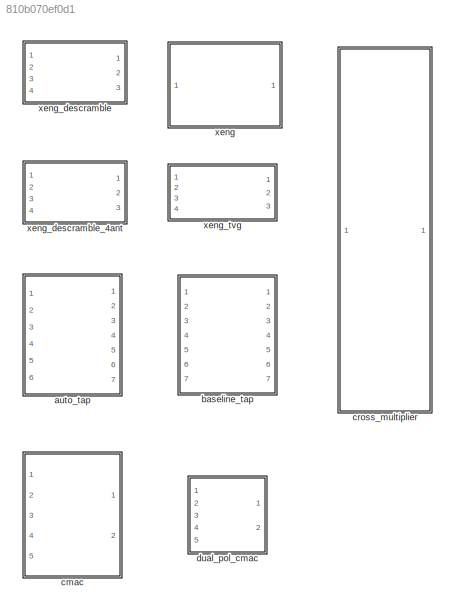
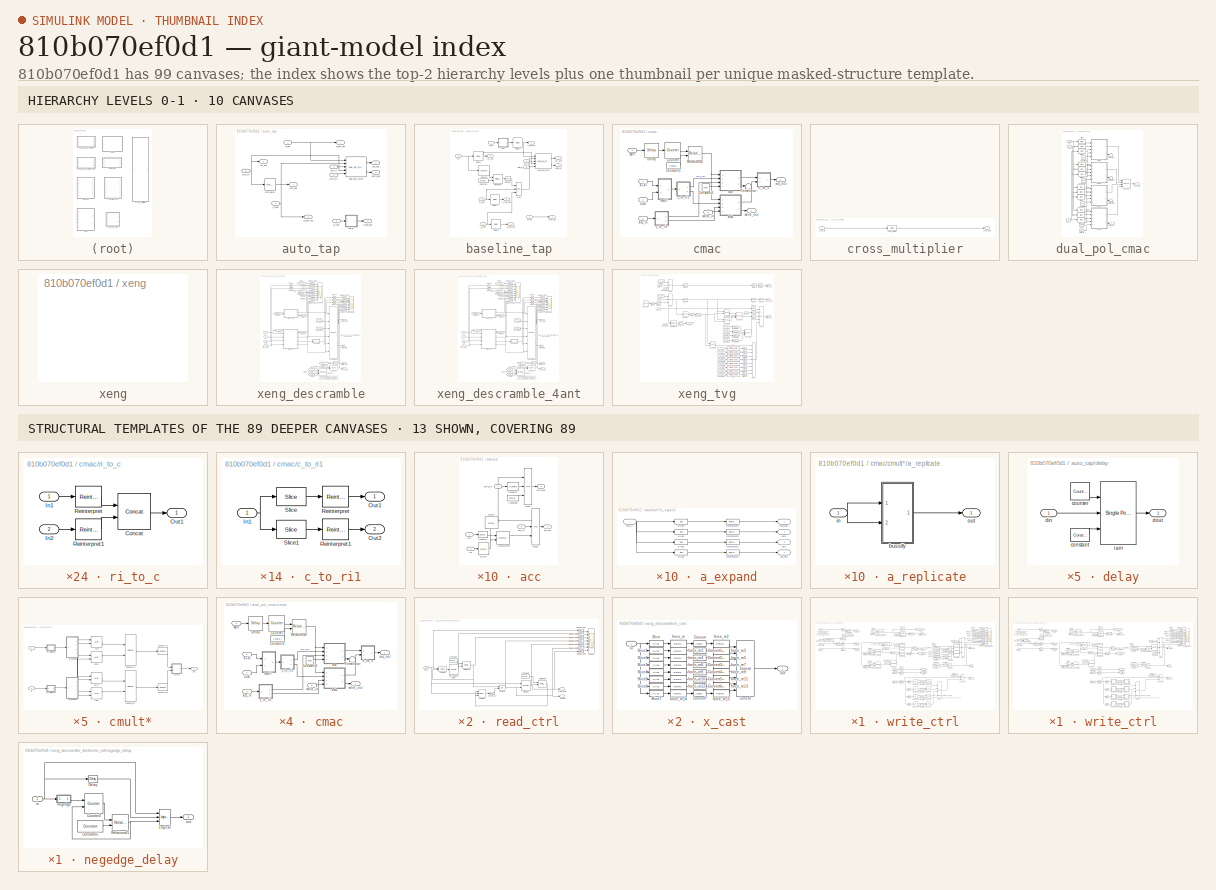
[diagram: thumbnail index - top-2 hierarchy levels (10 canvases) + 13 structural-template representatives of the remaining 89 canvases]
MODEL slx_810b070ef0d1
KIND library
CONFIG AbsTol = auto
CONFIG EnableMultiTasking = off
CONFIG FixedStep = auto
CONFIG MaxStep = auto
CONFIG MinStep = auto
CONFIG RelTol = 1e-3
CONFIG SampleTimeConstraint = Unconstrained
CONFIG Solver = ode45
CONFIG SolverName = ode45
CONFIG StartTime = 0.0
CONFIG StopTime = 10.0
BLOCK [SubSystem] auto_tap
  AttributesFormatString = mult_typ=0, del_typ=1
  Ports = [6, 7]
  RequestExecContextInheritance = off
  UserDataPersistent = on
BLOCK [Inport] auto_tap/a_del
  IconDisplay = Port number
BLOCK [Outport] auto_tap/a_del_out
  IconDisplay = Port number
BLOCK [Outport] auto_tap/a_end_out
  IconDisplay = Port number
  Port = 3
BLOCK [Inport] auto_tap/a_loop
  IconDisplay = Port number
  Port = 3
BLOCK [Inport] auto_tap/a_ndel
  IconDisplay = Port number
  Port = 2
BLOCK [Outport] auto_tap/a_ndel_out
  IconDisplay = Port number
  Port = 2
BLOCK [Inport] auto_tap/acc_in
  IconDisplay = Port number
  Port = 4
BLOCK [Outport] auto_tap/acc_out
  IconDisplay = Port number
  Port = 4
BLOCK [SubSystem] auto_tap/delay
  AncestorBlock = casper_library_delays/delay_bram
  Ports = [1, 1]
  RequestExecContextInheritance = off
  UserDataPersistent = on
BLOCK [Reference] auto_tap/delay/constant  REF=xbsIndex_r4/Constant
  Ports = [0, 1]
  SourceBlock = xbsIndex_r4/Constant
  SourceType = Xilinx Constant Block Block
BLOCK [Reference] auto_tap/delay/counter  REF=xbsIndex_r4/Counter
  Ports = [0, 1]
  SourceBlock = xbsIndex_r4/Counter
  SourceType = Xilinx Counter Block
BLOCK [Inport] auto_tap/delay/din
  IconDisplay = Port number
BLOCK [Outport] auto_tap/delay/dout
  IconDisplay = Port number
BLOCK [Reference] auto_tap/delay/ram  REF=xbsIndex_r4/Single Port RAM
  Ports = [3, 1]
  SourceBlock = xbsIndex_r4/Single Port RAM
  SourceType = Xilinx Single Port Random Access Memory Block
BLOCK [Reference] auto_tap/dual_pol_cmac  REF=$bdroot/dual_pol_cmac
  Ports = [5, 2]
  SourceBlock = $bdroot/dual_pol_cmac
BLOCK [Outport] auto_tap/rst_out
  IconDisplay = Port number
  Port = 6
BLOCK [Reference] auto_tap/sync_delay  REF=casper_library_delays/sync_delay  (lib defined in mdl_259a08a3fac5, mdl_65009615caaa, +5 more)
  Ports = [1, 1]
  SourceBlock = casper_library_delays/sync_delay
  SourceProductName = CASPER DSP Blockset
  SourceType = sync_delay
BLOCK [Inport] auto_tap/sync_in
  IconDisplay = Port number
  Port = 6
BLOCK [Outport] auto_tap/sync_out
  IconDisplay = Port number
  Port = 7
BLOCK [Inport] auto_tap/valid_in
  IconDisplay = Port number
  Port = 5
BLOCK [Outport] auto_tap/valid_out
  IconDisplay = Port number
  Port = 5
BLOCK [SubSystem] baseline_tap
  AttributesFormatString = ant_sep=1, mult=2, bram=1
  Ports = [7, 7]
  RequestExecContextInheritance = off
  UserDataPersistent = on
BLOCK [Reference] baseline_tap/Constant  REF=xbsIndex_r4/Constant
  Ports = [0, 1]
  SourceBlock = xbsIndex_r4/Constant
  SourceType = Xilinx Constant Block Block
BLOCK [Reference] baseline_tap/Convert  REF=xbsIndex_r4/Convert
  Ports = [1, 1]
  SourceBlock = xbsIndex_r4/Convert
  SourceType = Xilinx Type Converter Block
BLOCK [Reference] baseline_tap/Counter  REF=xbsIndex_r4/Counter
  Ports = [1, 1]
  SourceBlock = xbsIndex_r4/Counter
  SourceType = Xilinx Counter Block
BLOCK [Reference] baseline_tap/Delay1  REF=xbsIndex_r4/Delay
  Ports = [1, 1]
  SourceBlock = xbsIndex_r4/Delay
  SourceType = Xilinx Delay Block
BLOCK [Reference] baseline_tap/Delay3  REF=xbsIndex_r4/Delay
  Ports = [1, 1]
  SourceBlock = xbsIndex_r4/Delay
  SourceType = Xilinx Delay Block
BLOCK [Reference] baseline_tap/Delay7  REF=xbsIndex_r4/Delay
  Ports = [1, 1]
  SourceBlock = xbsIndex_r4/Delay
  SourceType = Xilinx Delay Block
BLOCK [Reference] baseline_tap/Delay8  REF=xbsIndex_r4/Delay
  Ports = [1, 1]
  SourceBlock = xbsIndex_r4/Delay
  SourceType = Xilinx Delay Block
BLOCK [Reference] baseline_tap/Mux  REF=xbsIndex_r4/Mux
  Ports = [3, 1]
  SourceBlock = xbsIndex_r4/Mux
  SourceType = Xilinx Bus Multiplexer Block
BLOCK [Reference] baseline_tap/Relational  REF=xbsIndex_r4/Relational
  Ports = [2, 1]
  SourceBlock = xbsIndex_r4/Relational
  SourceType = Xilinx Arithmetic Relational Operator Block
BLOCK [Inport] baseline_tap/a_del
  IconDisplay = Port number
BLOCK [Outport] baseline_tap/a_del_out
  IconDisplay = Port number
BLOCK [Inport] baseline_tap/a_end
  IconDisplay = Port number
  Port = 3
BLOCK [Outport] baseline_tap/a_end_out
  IconDisplay = Port number
  Port = 3
BLOCK [Inport] baseline_tap/a_ndel
  IconDisplay = Port number
  Port = 2
BLOCK [Outport] baseline_tap/a_ndel_out
  IconDisplay = Port number
  Port = 2
BLOCK [Inport] baseline_tap/acc_in
  IconDisplay = Port number
  Port = 4
BLOCK [Outport] baseline_tap/acc_out
  IconDisplay = Port number
  Port = 4
BLOCK [SubSystem] baseline_tap/delay
  AncestorBlock = casper_library_delays/delay_bram
  Ports = [1, 1]
  RequestExecContextInheritance = off
  UserDataPersistent = on
BLOCK [Reference] baseline_tap/delay/constant  REF=xbsIndex_r4/Constant
  Ports = [0, 1]
  SourceBlock = xbsIndex_r4/Constant
  SourceType = Xilinx Constant Block Block
BLOCK [Reference] baseline_tap/delay/counter  REF=xbsIndex_r4/Counter
  Ports = [0, 1]
  SourceBlock = xbsIndex_r4/Counter
  SourceType = Xilinx Counter Block
BLOCK [Inport] baseline_tap/delay/din
  IconDisplay = Port number
BLOCK [Outport] baseline_tap/delay/dout
  IconDisplay = Port number
BLOCK [Reference] baseline_tap/delay/ram  REF=xbsIndex_r4/Single Port RAM
  Ports = [3, 1]
  SourceBlock = xbsIndex_r4/Single Port RAM
  SourceType = Xilinx Single Port Random Access Memory Block
BLOCK [Reference] baseline_tap/dual_pol_cmac  REF=$bdroot/dual_pol_cmac
  Ports = [5, 2]
  SourceBlock = $bdroot/dual_pol_cmac
BLOCK [Inport] baseline_tap/rst
  IconDisplay = Port number
  Port = 6
BLOCK [Outport] baseline_tap/rst_out
  IconDisplay = Port number
  Port = 6
BLOCK [Inport] baseline_tap/sync1
  IconDisplay = Port number
  Port = 7
BLOCK [Outport] baseline_tap/sync_out
  IconDisplay = Port number
  Port = 7
BLOCK [Inport] baseline_tap/valid_in
  IconDisplay = Port number
  Port = 5
BLOCK [Outport] baseline_tap/valid_out
  IconDisplay = Port number
  Port = 5
BLOCK [SubSystem] cmac
  Ports = [5, 2]
  RequestExecContextInheritance = off
  Tag = cmac
BLOCK [Reference] cmac/Constant1  REF=xbsIndex_r4/Constant
  Ports = [0, 1]
  SourceBlock = xbsIndex_r4/Constant
  SourceType = Xilinx Constant Block Block
BLOCK [Reference] cmac/Constant2  REF=xbsIndex_r4/Constant
  Ports = [0, 1]
  SourceBlock = xbsIndex_r4/Constant
  SourceType = Xilinx Constant Block Block
BLOCK [Reference] cmac/Counter  REF=xbsIndex_r4/Counter
  Ports = [1, 1]
  SourceBlock = xbsIndex_r4/Counter
  SourceType = Xilinx Counter Block
BLOCK [Reference] cmac/Delay  REF=xbsIndex_r4/Delay
  Ports = [1, 1]
  SourceBlock = xbsIndex_r4/Delay
  SourceType = Xilinx Delay Block
BLOCK [Reference] cmac/Relational  REF=xbsIndex_r4/Relational
  Ports = [2, 1]
  SourceBlock = xbsIndex_r4/Relational
  SourceType = Xilinx Arithmetic Relational Operator Block
BLOCK [Terminator] cmac/Terminator
BLOCK [Inport] cmac/a+bi
  IconDisplay = Port number
BLOCK [SubSystem] cmac/acc
  Ports = [4, 2]
  RequestExecContextInheritance = off
BLOCK [Reference] cmac/acc/Accumulator  REF=xbsIndex_r4/Accumulator
  Ports = [2, 1]
  SourceBlock = xbsIndex_r4/Accumulator
  SourceType = Xilinx Accumulator Block
BLOCK [Reference] cmac/acc/Constant  REF=xbsIndex_r4/Constant
  Ports = [0, 1]
  SourceBlock = xbsIndex_r4/Constant
  SourceType = Xilinx Constant Block Block
BLOCK [Reference] cmac/acc/Convert1  REF=xbsIndex_r4/Convert
  Ports = [1, 1]
  SourceBlock = xbsIndex_r4/Convert
  SourceType = Xilinx Type Converter Block
BLOCK [Reference] cmac/acc/Convert2  REF=xbsIndex_r4/Convert
  Ports = [1, 1]
  SourceBlock = xbsIndex_r4/Convert
  SourceType = Xilinx Type Converter Block
BLOCK [Reference] cmac/acc/Delay  REF=xbsIndex_r4/Delay
  Ports = [1, 1]
  SourceBlock = xbsIndex_r4/Delay
  SourceType = Xilinx Delay Block
BLOCK [Reference] cmac/acc/Delay1  REF=xbsIndex_r4/Delay
  Ports = [1, 1]
  SourceBlock = xbsIndex_r4/Delay
  SourceType = Xilinx Delay Block
BLOCK [Reference] cmac/acc/Mux2  REF=xbsIndex_r4/Mux
  Ports = [3, 1]
  SourceBlock = xbsIndex_r4/Mux
  SourceType = Xilinx Bus Multiplexer Block
BLOCK [Reference] cmac/acc/Mux3  REF=xbsIndex_r4/Mux
  Ports = [3, 1]
  SourceBlock = xbsIndex_r4/Mux
  SourceType = Xilinx Bus Multiplexer Block
BLOCK [Inport] cmac/acc/acc_in
  IconDisplay = Port number
  Port = 3
BLOCK [Outport] cmac/acc/acc_out
  IconDisplay = Port number
BLOCK [Inport] cmac/acc/din
  IconDisplay = Port number
  Port = 2
BLOCK [Inport] cmac/acc/rst
  IconDisplay = Port number
BLOCK [Inport] cmac/acc/valid_in
  IconDisplay = Port number
  Port = 4
BLOCK [Outport] cmac/acc/valid_out
  IconDisplay = Port number
  Port = 2
BLOCK [SubSystem] cmac/acc1
  Ports = [4, 2]
  RequestExecContextInheritance = off
BLOCK [Reference] cmac/acc1/Accumulator  REF=xbsIndex_r4/Accumulator
  Ports = [2, 1]
  SourceBlock = xbsIndex_r4/Accumulator
  SourceType = Xilinx Accumulator Block
BLOCK [Reference] cmac/acc1/Constant  REF=xbsIndex_r4/Constant
  Ports = [0, 1]
  SourceBlock = xbsIndex_r4/Constant
  SourceType = Xilinx Constant Block Block
BLOCK [Reference] cmac/acc1/Convert1  REF=xbsIndex_r4/Convert
  Ports = [1, 1]
  SourceBlock = xbsIndex_r4/Convert
  SourceType = Xilinx Type Converter Block
BLOCK [Reference] cmac/acc1/Convert2  REF=xbsIndex_r4/Convert
  Ports = [1, 1]
  SourceBlock = xbsIndex_r4/Convert
  SourceType = Xilinx Type Converter Block
BLOCK [Reference] cmac/acc1/Delay  REF=xbsIndex_r4/Delay
  Ports = [1, 1]
  SourceBlock = xbsIndex_r4/Delay
  SourceType = Xilinx Delay Block
BLOCK [Reference] cmac/acc1/Delay1  REF=xbsIndex_r4/Delay
  Ports = [1, 1]
  SourceBlock = xbsIndex_r4/Delay
  SourceType = Xilinx Delay Block
BLOCK [Reference] cmac/acc1/Mux2  REF=xbsIndex_r4/Mux
  Ports = [3, 1]
  SourceBlock = xbsIndex_r4/Mux
  SourceType = Xilinx Bus Multiplexer Block
BLOCK [Reference] cmac/acc1/Mux3  REF=xbsIndex_r4/Mux
  Ports = [3, 1]
  SourceBlock = xbsIndex_r4/Mux
  SourceType = Xilinx Bus Multiplexer Block
BLOCK [Inport] cmac/acc1/acc_in
  IconDisplay = Port number
  Port = 3
BLOCK [Outport] cmac/acc1/acc_out
  IconDisplay = Port number
BLOCK [Inport] cmac/acc1/din
  IconDisplay = Port number
  Port = 2
BLOCK [Inport] cmac/acc1/rst
  IconDisplay = Port number
BLOCK [Inport] cmac/acc1/valid_in
  IconDisplay = Port number
  Port = 4
BLOCK [Outport] cmac/acc1/valid_out
  IconDisplay = Port number
  Port = 2
BLOCK [Inport] cmac/acc_in
  IconDisplay = Port number
  Port = 3
BLOCK [Outport] cmac/acc_out
  IconDisplay = Port number
BLOCK [Inport] cmac/c+di
  IconDisplay = Port number
  Port = 2
BLOCK [SubSystem] cmac/c_to_ri1
  Ports = [1, 2]
  RequestExecContextInheritance = off
BLOCK [Inport] cmac/c_to_ri1/In1
  IconDisplay = Port number
BLOCK [Outport] cmac/c_to_ri1/Out1
  IconDisplay = Port number
BLOCK [Outport] cmac/c_to_ri1/Out2
  IconDisplay = Port number
  Port = 2
BLOCK [Reference] cmac/c_to_ri1/Reinterpret  REF=xbsIndex_r4/Reinterpret
  Ports = [1, 1]
  SourceBlock = xbsIndex_r4/Reinterpret
  SourceType = Xilinx Type Reinterpreter Block
BLOCK [Reference] cmac/c_to_ri1/Reinterpret1  REF=xbsIndex_r4/Reinterpret
  Ports = [1, 1]
  SourceBlock = xbsIndex_r4/Reinterpret
  SourceType = Xilinx Type Reinterpreter Block
BLOCK [Reference] cmac/c_to_ri1/Slice  REF=xbsIndex_r4/Slice
  Ports = [1, 1]
  SourceBlock = xbsIndex_r4/Slice
  SourceType = Xilinx Bit Slice Extractor Block
BLOCK [Reference] cmac/c_to_ri1/Slice1  REF=xbsIndex_r4/Slice
  Ports = [1, 1]
  SourceBlock = xbsIndex_r4/Slice
  SourceType = Xilinx Bit Slice Extractor Block
BLOCK [SubSystem] cmac/c_to_ri2
  Ports = [1, 2]
  RequestExecContextInheritance = off
BLOCK [Inport] cmac/c_to_ri2/In1
  IconDisplay = Port number
BLOCK [Outport] cmac/c_to_ri2/Out1
  IconDisplay = Port number
BLOCK [Outport] cmac/c_to_ri2/Out2
  IconDisplay = Port number
  Port = 2
BLOCK [Reference] cmac/c_to_ri2/Reinterpret  REF=xbsIndex_r4/Reinterpret
  Ports = [1, 1]
  SourceBlock = xbsIndex_r4/Reinterpret
  SourceType = Xilinx Type Reinterpreter Block
BLOCK [Reference] cmac/c_to_ri2/Reinterpret1  REF=xbsIndex_r4/Reinterpret
  Ports = [1, 1]
  SourceBlock = xbsIndex_r4/Reinterpret
  SourceType = Xilinx Type Reinterpreter Block
BLOCK [Reference] cmac/c_to_ri2/Slice  REF=xbsIndex_r4/Slice
  Ports = [1, 1]
  SourceBlock = xbsIndex_r4/Slice
  SourceType = Xilinx Bit Slice Extractor Block
BLOCK [Reference] cmac/c_to_ri2/Slice1  REF=xbsIndex_r4/Slice
  Ports = [1, 1]
  SourceBlock = xbsIndex_r4/Slice
  SourceType = Xilinx Bit Slice Extractor Block
BLOCK [SubSystem] cmac/cmult*
  AncestorBlock = casper_library_multipliers/cmult
  AttributesFormatString = 4_3 * 4_3 ==> 16_6\nTruncate, Wrap\nLatency=0
  Ports = [2, 1]
  RequestExecContextInheritance = off
  UserDataPersistent = on
BLOCK [Inport] cmac/cmult*/a
  IconDisplay = Port number
BLOCK [SubSystem] cmac/cmult*/a_expand
  AncestorBlock = casper_library_flow_control/bus_expand
  AttributesFormatString = 4 outputs
  Ports = [1, 4]
  RequestExecContextInheritance = off
  UserDataPersistent = on
BLOCK [Inport] cmac/cmult*/a_expand/bus_in
  IconDisplay = Port number
BLOCK [Outport] cmac/cmult*/a_expand/lsb_out1
  IconDisplay = Port number
  Port = 4
BLOCK [Outport] cmac/cmult*/a_expand/msb_out4
  IconDisplay = Port number
BLOCK [Outport] cmac/cmult*/a_expand/out2
  IconDisplay = Port number
  Port = 3
BLOCK [Outport] cmac/cmult*/a_expand/out3
  IconDisplay = Port number
  Port = 2
BLOCK [Reference] cmac/cmult*/a_expand/reinterpret1  REF=xbsIndex_r4/Reinterpret
  Ports = [1, 1]
  SourceBlock = xbsIndex_r4/Reinterpret
  SourceType = Xilinx Type Reinterpreter Block
BLOCK [Reference] cmac/cmult*/a_expand/reinterpret2  REF=xbsIndex_r4/Reinterpret
  Ports = [1, 1]
  SourceBlock = xbsIndex_r4/Reinterpret
  SourceType = Xilinx Type Reinterpreter Block
BLOCK [Reference] cmac/cmult*/a_expand/reinterpret3  REF=xbsIndex_r4/Reinterpret
  Ports = [1, 1]
  SourceBlock = xbsIndex_r4/Reinterpret
  SourceType = Xilinx Type Reinterpreter Block
BLOCK [Reference] cmac/cmult*/a_expand/reinterpret4  REF=xbsIndex_r4/Reinterpret
  Ports = [1, 1]
  SourceBlock = xbsIndex_r4/Reinterpret
  SourceType = Xilinx Type Reinterpreter Block
BLOCK [Reference] cmac/cmult*/a_expand/slice1  REF=xbsIndex_r4/Slice
  Ports = [1, 1]
  SourceBlock = xbsIndex_r4/Slice
  SourceType = Xilinx Bit Slice Extractor Block
BLOCK [Reference] cmac/cmult*/a_expand/slice2  REF=xbsIndex_r4/Slice
  Ports = [1, 1]
  SourceBlock = xbsIndex_r4/Slice
  SourceType = Xilinx Bit Slice Extractor Block
BLOCK [Reference] cmac/cmult*/a_expand/slice3  REF=xbsIndex_r4/Slice
  Ports = [1, 1]
  SourceBlock = xbsIndex_r4/Slice
  SourceType = Xilinx Bit Slice Extractor Block
BLOCK [Reference] cmac/cmult*/a_expand/slice4  REF=xbsIndex_r4/Slice
  Ports = [1, 1]
  SourceBlock = xbsIndex_r4/Slice
  SourceType = Xilinx Bit Slice Extractor Block
BLOCK [SubSystem] cmac/cmult*/a_replicate
  AncestorBlock = casper_library_bus/bus_replicate
  Ports = [1, 1]
  RequestExecContextInheritance = off
  UserDataPersistent = on
BLOCK [SubSystem] cmac/cmult*/a_replicate/bussify
  AncestorBlock = casper_library_flow_control/bus_create
  Ports = [2, 1]
  RequestExecContextInheritance = off
  UserDataPersistent = on
BLOCK [Outport] cmac/cmult*/a_replicate/bussify/bus_out
  IconDisplay = Port number
BLOCK [Reference] cmac/cmult*/a_replicate/bussify/concatenate  REF=xbsIndex_r4/Concat
  Ports = [2, 1]
  SourceBlock = xbsIndex_r4/Concat
  SourceType = Xilinx Bus Concatenator Block
BLOCK [Inport] cmac/cmult*/a_replicate/bussify/in1
  IconDisplay = Port number
BLOCK [Inport] cmac/cmult*/a_replicate/bussify/in2
  IconDisplay = Port number
  Port = 2
BLOCK [Reference] cmac/cmult*/a_replicate/bussify/reinterpret1  REF=xbsIndex_r4/Reinterpret
  Ports = [1, 1]
  SourceBlock = xbsIndex_r4/Reinterpret
  SourceType = Xilinx Type Reinterpreter Block
BLOCK [Reference] cmac/cmult*/a_replicate/bussify/reinterpret2  REF=xbsIndex_r4/Reinterpret
  Ports = [1, 1]
  SourceBlock = xbsIndex_r4/Reinterpret
  SourceType = Xilinx Type Reinterpreter Block
BLOCK [Inport] cmac/cmult*/a_replicate/in
  IconDisplay = Port number
BLOCK [Outport] cmac/cmult*/a_replicate/out
  IconDisplay = Port number
BLOCK [Outport] cmac/cmult*/ab
  IconDisplay = Port number
BLOCK [Reference] cmac/cmult*/addsub_im  REF=xbsIndex_r4/AddSub
  Ports = [2, 1]
  SourceBlock = xbsIndex_r4/AddSub
  SourceType = Xilinx Adder/Subtracter Block
BLOCK [Reference] cmac/cmult*/addsub_re  REF=xbsIndex_r4/AddSub
  Ports = [2, 1]
  SourceBlock = xbsIndex_r4/AddSub
  SourceType = Xilinx Adder/Subtracter Block
BLOCK [Inport] cmac/cmult*/b
  IconDisplay = Port number
  Port = 2
BLOCK [SubSystem] cmac/cmult*/b_expand
  AncestorBlock = casper_library_flow_control/bus_expand
  AttributesFormatString = 4 outputs
  Ports = [1, 4]
  RequestExecContextInheritance = off
  UserDataPersistent = on
BLOCK [Inport] cmac/cmult*/b_expand/bus_in
  IconDisplay = Port number
BLOCK [Outport] cmac/cmult*/b_expand/lsb_out1
  IconDisplay = Port number
  Port = 4
BLOCK [Outport] cmac/cmult*/b_expand/msb_out4
  IconDisplay = Port number
BLOCK [Outport] cmac/cmult*/b_expand/out2
  IconDisplay = Port number
  Port = 3
BLOCK [Outport] cmac/cmult*/b_expand/out3
  IconDisplay = Port number
  Port = 2
BLOCK [Reference] cmac/cmult*/b_expand/reinterpret1  REF=xbsIndex_r4/Reinterpret
  Ports = [1, 1]
  SourceBlock = xbsIndex_r4/Reinterpret
  SourceType = Xilinx Type Reinterpreter Block
BLOCK [Reference] cmac/cmult*/b_expand/reinterpret2  REF=xbsIndex_r4/Reinterpret
  Ports = [1, 1]
  SourceBlock = xbsIndex_r4/Reinterpret
  SourceType = Xilinx Type Reinterpreter Block
BLOCK [Reference] cmac/cmult*/b_expand/reinterpret3  REF=xbsIndex_r4/Reinterpret
  Ports = [1, 1]
  SourceBlock = xbsIndex_r4/Reinterpret
  SourceType = Xilinx Type Reinterpreter Block
BLOCK [Reference] cmac/cmult*/b_expand/reinterpret4  REF=xbsIndex_r4/Reinterpret
  Ports = [1, 1]
  SourceBlock = xbsIndex_r4/Reinterpret
  SourceType = Xilinx Type Reinterpreter Block
BLOCK [Reference] cmac/cmult*/b_expand/slice1  REF=xbsIndex_r4/Slice
  Ports = [1, 1]
  SourceBlock = xbsIndex_r4/Slice
  SourceType = Xilinx Bit Slice Extractor Block
BLOCK [Reference] cmac/cmult*/b_expand/slice2  REF=xbsIndex_r4/Slice
  Ports = [1, 1]
  SourceBlock = xbsIndex_r4/Slice
  SourceType = Xilinx Bit Slice Extractor Block
BLOCK [Reference] cmac/cmult*/b_expand/slice3  REF=xbsIndex_r4/Slice
  Ports = [1, 1]
  SourceBlock = xbsIndex_r4/Slice
  SourceType = Xilinx Bit Slice Extractor Block
BLOCK [Reference] cmac/cmult*/b_expand/slice4  REF=xbsIndex_r4/Slice
  Ports = [1, 1]
  SourceBlock = xbsIndex_r4/Slice
  SourceType = Xilinx Bit Slice Extractor Block
BLOCK [SubSystem] cmac/cmult*/b_replicate
  AncestorBlock = casper_library_bus/bus_replicate
  Ports = [1, 1]
  RequestExecContextInheritance = off
  UserDataPersistent = on
BLOCK [SubSystem] cmac/cmult*/b_replicate/bussify
  AncestorBlock = casper_library_flow_control/bus_create
  Ports = [2, 1]
  RequestExecContextInheritance = off
  UserDataPersistent = on
BLOCK [Outport] cmac/cmult*/b_replicate/bussify/bus_out
  IconDisplay = Port number
BLOCK [Reference] cmac/cmult*/b_replicate/bussify/concatenate  REF=xbsIndex_r4/Concat
  Ports = [2, 1]
  SourceBlock = xbsIndex_r4/Concat
  SourceType = Xilinx Bus Concatenator Block
BLOCK [Inport] cmac/cmult*/b_replicate/bussify/in1
  IconDisplay = Port number
BLOCK [Inport] cmac/cmult*/b_replicate/bussify/in2
  IconDisplay = Port number
  Port = 2
BLOCK [Reference] cmac/cmult*/b_replicate/bussify/reinterpret1  REF=xbsIndex_r4/Reinterpret
  Ports = [1, 1]
  SourceBlock = xbsIndex_r4/Reinterpret
  SourceType = Xilinx Type Reinterpreter Block
BLOCK [Reference] cmac/cmult*/b_replicate/bussify/reinterpret2  REF=xbsIndex_r4/Reinterpret
  Ports = [1, 1]
  SourceBlock = xbsIndex_r4/Reinterpret
  SourceType = Xilinx Type Reinterpreter Block
BLOCK [Inport] cmac/cmult*/b_replicate/in
  IconDisplay = Port number
BLOCK [Outport] cmac/cmult*/b_replicate/out
  IconDisplay = Port number
BLOCK [Reference] cmac/cmult*/convert_im  REF=xbsIndex_r4/Convert
  Ports = [1, 1]
  SourceBlock = xbsIndex_r4/Convert
  SourceType = Xilinx Type Converter Block
BLOCK [Reference] cmac/cmult*/convert_re  REF=xbsIndex_r4/Convert
  Ports = [1, 1]
  SourceBlock = xbsIndex_r4/Convert
  SourceType = Xilinx Type Converter Block
BLOCK [Reference] cmac/cmult*/imim  REF=xbsIndex_r4/Mult
  Ports = [2, 1]
  SourceBlock = xbsIndex_r4/Mult
  SourceType = Xilinx Multiplier Block
BLOCK [Reference] cmac/cmult*/imre  REF=xbsIndex_r4/Mult
  Ports = [2, 1]
  SourceBlock = xbsIndex_r4/Mult
  SourceType = Xilinx Multiplier Block
BLOCK [Reference] cmac/cmult*/reim  REF=xbsIndex_r4/Mult
  Ports = [2, 1]
  SourceBlock = xbsIndex_r4/Mult
  SourceType = Xilinx Multiplier Block
BLOCK [Reference] cmac/cmult*/rere  REF=xbsIndex_r4/Mult
  Ports = [2, 1]
  SourceBlock = xbsIndex_r4/Mult
  SourceType = Xilinx Multiplier Block
BLOCK [SubSystem] cmac/cmult*/ri_to_c
  AncestorBlock = casper_library_misc/ri_to_c
  Ports = [2, 1]
  RequestExecContextInheritance = off
  UserDataPersistent = on
BLOCK [Outport] cmac/cmult*/ri_to_c/c
  IconDisplay = Port number
BLOCK [Reference] cmac/cmult*/ri_to_c/concat  REF=xbsIndex_r4/Concat
  Ports = [2, 1]
  SourceBlock = xbsIndex_r4/Concat
  SourceType = Xilinx Bus Concatenator Block
BLOCK [Reference] cmac/cmult*/ri_to_c/force_im  REF=xbsIndex_r4/Reinterpret
  Ports = [1, 1]
  SourceBlock = xbsIndex_r4/Reinterpret
  SourceType = Xilinx Type Reinterpreter Block
BLOCK [Reference] cmac/cmult*/ri_to_c/force_re  REF=xbsIndex_r4/Reinterpret
  Ports = [1, 1]
  SourceBlock = xbsIndex_r4/Reinterpret
  SourceType = Xilinx Type Reinterpreter Block
BLOCK [Inport] cmac/cmult*/ri_to_c/im
  IconDisplay = Port number
  Port = 2
BLOCK [Inport] cmac/cmult*/ri_to_c/re
  IconDisplay = Port number
BLOCK [SubSystem] cmac/ri_to_c
  Ports = [2, 1]
  RequestExecContextInheritance = off
BLOCK [Reference] cmac/ri_to_c/Concat  REF=xbsIndex_r4/Concat
  Ports = [2, 1]
  SourceBlock = xbsIndex_r4/Concat
  SourceType = Xilinx Bus Concatenator Block
BLOCK [Inport] cmac/ri_to_c/In1
  IconDisplay = Port number
BLOCK [Inport] cmac/ri_to_c/In2
  IconDisplay = Port number
  Port = 2
BLOCK [Outport] cmac/ri_to_c/Out1
  IconDisplay = Port number
BLOCK [Reference] cmac/ri_to_c/Reinterpret  REF=xbsIndex_r4/Reinterpret
  Ports = [1, 1]
  SourceBlock = xbsIndex_r4/Reinterpret
  SourceType = Xilinx Type Reinterpreter Block
BLOCK [Reference] cmac/ri_to_c/Reinterpret1  REF=xbsIndex_r4/Reinterpret
  Ports = [1, 1]
  SourceBlock = xbsIndex_r4/Reinterpret
  SourceType = Xilinx Type Reinterpreter Block
BLOCK [Inport] cmac/sync
  IconDisplay = Port number
  Port = 4
BLOCK [Inport] cmac/valid_in
  IconDisplay = Port number
  Port = 5
BLOCK [Outport] cmac/valid_out
  IconDisplay = Port number
  Port = 2
BLOCK [SubSystem] cross_multiplier
  Ports = [1, 1]
  RequestExecContextInheritance = off
  UserDataPersistent = on
BLOCK [Reference] cross_multiplier/sync_delay  REF=xbsIndex_r4/Delay
  Ports = [1, 1]
  SourceBlock = xbsIndex_r4/Delay
  SourceType = Xilinx Delay Block
BLOCK [Inport] cross_multiplier/sync_in
  IconDisplay = Port number
BLOCK [Outport] cross_multiplier/sync_out
  IconDisplay = Port number
BLOCK [SubSystem] dual_pol_cmac
  Ports = [5, 2]
  RequestExecContextInheritance = off
BLOCK [Reference] dual_pol_cmac/Concat  REF=xbsIndex_r4/Concat
  Ports = [4, 1]
  SourceBlock = xbsIndex_r4/Concat
  SourceType = Xilinx Bus Concatenator Block
BLOCK [Reference] dual_pol_cmac/Constant1  REF=xbsIndex_r4/Constant
  Ports = [0, 1]
  SourceBlock = xbsIndex_r4/Constant
  SourceType = Xilinx Constant Block Block
BLOCK [Reference] dual_pol_cmac/Constant2  REF=xbsIndex_r4/Constant
  Ports = [0, 1]
  SourceBlock = xbsIndex_r4/Constant
  SourceType = Xilinx Constant Block Block
BLOCK [Reference] dual_pol_cmac/Constant4  REF=xbsIndex_r4/Constant
  Ports = [0, 1]
  SourceBlock = xbsIndex_r4/Constant
  SourceType = Xilinx Constant Block Block
BLOCK [Reference] dual_pol_cmac/Slice  REF=xbsIndex_r4/Slice
  Ports = [1, 1]
  SourceBlock = xbsIndex_r4/Slice
  SourceType = Xilinx Bit Slice Extractor Block
BLOCK [Reference] dual_pol_cmac/Slice1  REF=xbsIndex_r4/Slice
  Ports = [1, 1]
  SourceBlock = xbsIndex_r4/Slice
  SourceType = Xilinx Bit Slice Extractor Block
BLOCK [Reference] dual_pol_cmac/Slice10  REF=xbsIndex_r4/Slice
  Ports = [1, 1]
  SourceBlock = xbsIndex_r4/Slice
  SourceType = Xilinx Bit Slice Extractor Block
BLOCK [Reference] dual_pol_cmac/Slice11  REF=xbsIndex_r4/Slice
  Ports = [1, 1]
  SourceBlock = xbsIndex_r4/Slice
  SourceType = Xilinx Bit Slice Extractor Block
BLOCK [Reference] dual_pol_cmac/Slice2  REF=xbsIndex_r4/Slice
  Ports = [1, 1]
  SourceBlock = xbsIndex_r4/Slice
  SourceType = Xilinx Bit Slice Extractor Block
BLOCK [Reference] dual_pol_cmac/Slice3  REF=xbsIndex_r4/Slice
  Ports = [1, 1]
  SourceBlock = xbsIndex_r4/Slice
  SourceType = Xilinx Bit Slice Extractor Block
BLOCK [Reference] dual_pol_cmac/Slice4  REF=xbsIndex_r4/Slice
  Ports = [1, 1]
  SourceBlock = xbsIndex_r4/Slice
  SourceType = Xilinx Bit Slice Extractor Block
BLOCK [Reference] dual_pol_cmac/Slice5  REF=xbsIndex_r4/Slice
  Ports = [1, 1]
  SourceBlock = xbsIndex_r4/Slice
  SourceType = Xilinx Bit Slice Extractor Block
BLOCK [Reference] dual_pol_cmac/Slice6  REF=xbsIndex_r4/Slice
  Ports = [1, 1]
  SourceBlock = xbsIndex_r4/Slice
  SourceType = Xilinx Bit Slice Extractor Block
BLOCK [Reference] dual_pol_cmac/Slice7  REF=xbsIndex_r4/Slice
  Ports = [1, 1]
  SourceBlock = xbsIndex_r4/Slice
  SourceType = Xilinx Bit Slice Extractor Block
BLOCK [Reference] dual_pol_cmac/Slice8  REF=xbsIndex_r4/Slice
  Ports = [1, 1]
  SourceBlock = xbsIndex_r4/Slice
  SourceType = Xilinx Bit Slice Extractor Block
BLOCK [Reference] dual_pol_cmac/Slice9  REF=xbsIndex_r4/Slice
  Ports = [1, 1]
  SourceBlock = xbsIndex_r4/Slice
  SourceType = Xilinx Bit Slice Extractor Block
BLOCK [Terminator] dual_pol_cmac/Terminator
BLOCK [Terminator] dual_pol_cmac/Terminator1
BLOCK [Terminator] dual_pol_cmac/Terminator2
BLOCK [Inport] dual_pol_cmac/a1
  IconDisplay = Port number
BLOCK [Inport] dual_pol_cmac/a2
  IconDisplay = Port number
  Port = 2
BLOCK [Inport] dual_pol_cmac/acc_in
  IconDisplay = Port number
  Port = 3
BLOCK [Outport] dual_pol_cmac/acc_out
  IconDisplay = Port number
BLOCK [SubSystem] dual_pol_cmac/cmac
  AncestorBlock = casper_library_correlator/cmac
  Ports = [5, 2]
  RequestExecContextInheritance = off
  Tag = cmac
BLOCK [Reference] dual_pol_cmac/cmac/Constant1  REF=xbsIndex_r4/Constant
  Ports = [0, 1]
  SourceBlock = xbsIndex_r4/Constant
  SourceType = Xilinx Constant Block Block
BLOCK [Reference] dual_pol_cmac/cmac/Constant2  REF=xbsIndex_r4/Constant
  Ports = [0, 1]
  SourceBlock = xbsIndex_r4/Constant
  SourceType = Xilinx Constant Block Block
BLOCK [Reference] dual_pol_cmac/cmac/Counter  REF=xbsIndex_r4/Counter
  Ports = [1, 1]
  SourceBlock = xbsIndex_r4/Counter
  SourceType = Xilinx Counter Block
BLOCK [Reference] dual_pol_cmac/cmac/Delay  REF=xbsIndex_r4/Delay
  Ports = [1, 1]
  SourceBlock = xbsIndex_r4/Delay
  SourceType = Xilinx Delay Block
BLOCK [Reference] dual_pol_cmac/cmac/Relational  REF=xbsIndex_r4/Relational
  Ports = [2, 1]
  SourceBlock = xbsIndex_r4/Relational
  SourceType = Xilinx Arithmetic Relational Operator Block
BLOCK [Terminator] dual_pol_cmac/cmac/Terminator
BLOCK [Inport] dual_pol_cmac/cmac/a+bi
  IconDisplay = Port number
BLOCK [SubSystem] dual_pol_cmac/cmac/acc
  Ports = [4, 2]
  RequestExecContextInheritance = off
BLOCK [Reference] dual_pol_cmac/cmac/acc/Accumulator  REF=xbsIndex_r4/Accumulator
  Ports = [2, 1]
  SourceBlock = xbsIndex_r4/Accumulator
  SourceType = Xilinx Accumulator Block
BLOCK [Reference] dual_pol_cmac/cmac/acc/Constant  REF=xbsIndex_r4/Constant
  Ports = [0, 1]
  SourceBlock = xbsIndex_r4/Constant
  SourceType = Xilinx Constant Block Block
BLOCK [Reference] dual_pol_cmac/cmac/acc/Convert1  REF=xbsIndex_r4/Convert
  Ports = [1, 1]
  SourceBlock = xbsIndex_r4/Convert
  SourceType = Xilinx Type Converter Block
BLOCK [Reference] dual_pol_cmac/cmac/acc/Convert2  REF=xbsIndex_r4/Convert
  Ports = [1, 1]
  SourceBlock = xbsIndex_r4/Convert
  SourceType = Xilinx Type Converter Block
BLOCK [Reference] dual_pol_cmac/cmac/acc/Delay  REF=xbsIndex_r4/Delay
  Ports = [1, 1]
  SourceBlock = xbsIndex_r4/Delay
  SourceType = Xilinx Delay Block
BLOCK [Reference] dual_pol_cmac/cmac/acc/Delay1  REF=xbsIndex_r4/Delay
  Ports = [1, 1]
  SourceBlock = xbsIndex_r4/Delay
  SourceType = Xilinx Delay Block
BLOCK [Reference] dual_pol_cmac/cmac/acc/Mux2  REF=xbsIndex_r4/Mux
  Ports = [3, 1]
  SourceBlock = xbsIndex_r4/Mux
  SourceType = Xilinx Bus Multiplexer Block
BLOCK [Reference] dual_pol_cmac/cmac/acc/Mux3  REF=xbsIndex_r4/Mux
  Ports = [3, 1]
  SourceBlock = xbsIndex_r4/Mux
  SourceType = Xilinx Bus Multiplexer Block
BLOCK [Inport] dual_pol_cmac/cmac/acc/acc_in
  IconDisplay = Port number
  Port = 3
BLOCK [Outport] dual_pol_cmac/cmac/acc/acc_out
  IconDisplay = Port number
BLOCK [Inport] dual_pol_cmac/cmac/acc/din
  IconDisplay = Port number
  Port = 2
BLOCK [Inport] dual_pol_cmac/cmac/acc/rst
  IconDisplay = Port number
BLOCK [Inport] dual_pol_cmac/cmac/acc/valid_in
  IconDisplay = Port number
  Port = 4
BLOCK [Outport] dual_pol_cmac/cmac/acc/valid_out
  IconDisplay = Port number
  Port = 2
BLOCK [SubSystem] dual_pol_cmac/cmac/acc1
  Ports = [4, 2]
  RequestExecContextInheritance = off
BLOCK [Reference] dual_pol_cmac/cmac/acc1/Accumulator  REF=xbsIndex_r4/Accumulator
  Ports = [2, 1]
  SourceBlock = xbsIndex_r4/Accumulator
  SourceType = Xilinx Accumulator Block
BLOCK [Reference] dual_pol_cmac/cmac/acc1/Constant  REF=xbsIndex_r4/Constant
  Ports = [0, 1]
  SourceBlock = xbsIndex_r4/Constant
  SourceType = Xilinx Constant Block Block
BLOCK [Reference] dual_pol_cmac/cmac/acc1/Convert1  REF=xbsIndex_r4/Convert
  Ports = [1, 1]
  SourceBlock = xbsIndex_r4/Convert
  SourceType = Xilinx Type Converter Block
BLOCK [Reference] dual_pol_cmac/cmac/acc1/Convert2  REF=xbsIndex_r4/Convert
  Ports = [1, 1]
  SourceBlock = xbsIndex_r4/Convert
  SourceType = Xilinx Type Converter Block
BLOCK [Reference] dual_pol_cmac/cmac/acc1/Delay  REF=xbsIndex_r4/Delay
  Ports = [1, 1]
  SourceBlock = xbsIndex_r4/Delay
  SourceType = Xilinx Delay Block
BLOCK [Reference] dual_pol_cmac/cmac/acc1/Delay1  REF=xbsIndex_r4/Delay
  Ports = [1, 1]
  SourceBlock = xbsIndex_r4/Delay
  SourceType = Xilinx Delay Block
BLOCK [Reference] dual_pol_cmac/cmac/acc1/Mux2  REF=xbsIndex_r4/Mux
  Ports = [3, 1]
  SourceBlock = xbsIndex_r4/Mux
  SourceType = Xilinx Bus Multiplexer Block
BLOCK [Reference] dual_pol_cmac/cmac/acc1/Mux3  REF=xbsIndex_r4/Mux
  Ports = [3, 1]
  SourceBlock = xbsIndex_r4/Mux
  SourceType = Xilinx Bus Multiplexer Block
BLOCK [Inport] dual_pol_cmac/cmac/acc1/acc_in
  IconDisplay = Port number
  Port = 3
BLOCK [Outport] dual_pol_cmac/cmac/acc1/acc_out
  IconDisplay = Port number
BLOCK [Inport] dual_pol_cmac/cmac/acc1/din
  IconDisplay = Port number
  Port = 2
BLOCK [Inport] dual_pol_cmac/cmac/acc1/rst
  IconDisplay = Port number
BLOCK [Inport] dual_pol_cmac/cmac/acc1/valid_in
  IconDisplay = Port number
  Port = 4
BLOCK [Outport] dual_pol_cmac/cmac/acc1/valid_out
  IconDisplay = Port number
  Port = 2
BLOCK [Inport] dual_pol_cmac/cmac/acc_in
  IconDisplay = Port number
  Port = 3
BLOCK [Outport] dual_pol_cmac/cmac/acc_out
  IconDisplay = Port number
BLOCK [Inport] dual_pol_cmac/cmac/c+di
  IconDisplay = Port number
  Port = 2
BLOCK [SubSystem] dual_pol_cmac/cmac/c_to_ri1
  Ports = [1, 2]
  RequestExecContextInheritance = off
BLOCK [Inport] dual_pol_cmac/cmac/c_to_ri1/In1
  IconDisplay = Port number
BLOCK [Outport] dual_pol_cmac/cmac/c_to_ri1/Out1
  IconDisplay = Port number
BLOCK [Outport] dual_pol_cmac/cmac/c_to_ri1/Out2
  IconDisplay = Port number
  Port = 2
BLOCK [Reference] dual_pol_cmac/cmac/c_to_ri1/Reinterpret  REF=xbsIndex_r4/Reinterpret
  Ports = [1, 1]
  SourceBlock = xbsIndex_r4/Reinterpret
  SourceType = Xilinx Type Reinterpreter Block
BLOCK [Reference] dual_pol_cmac/cmac/c_to_ri1/Reinterpret1  REF=xbsIndex_r4/Reinterpret
  Ports = [1, 1]
  SourceBlock = xbsIndex_r4/Reinterpret
  SourceType = Xilinx Type Reinterpreter Block
BLOCK [Reference] dual_pol_cmac/cmac/c_to_ri1/Slice  REF=xbsIndex_r4/Slice
  Ports = [1, 1]
  SourceBlock = xbsIndex_r4/Slice
  SourceType = Xilinx Bit Slice Extractor Block
BLOCK [Reference] dual_pol_cmac/cmac/c_to_ri1/Slice1  REF=xbsIndex_r4/Slice
  Ports = [1, 1]
  SourceBlock = xbsIndex_r4/Slice
  SourceType = Xilinx Bit Slice Extractor Block
BLOCK [SubSystem] dual_pol_cmac/cmac/c_to_ri2
  Ports = [1, 2]
  RequestExecContextInheritance = off
BLOCK [Inport] dual_pol_cmac/cmac/c_to_ri2/In1
  IconDisplay = Port number
BLOCK [Outport] dual_pol_cmac/cmac/c_to_ri2/Out1
  IconDisplay = Port number
BLOCK [Outport] dual_pol_cmac/cmac/c_to_ri2/Out2
  IconDisplay = Port number
  Port = 2
BLOCK [Reference] dual_pol_cmac/cmac/c_to_ri2/Reinterpret  REF=xbsIndex_r4/Reinterpret
  Ports = [1, 1]
  SourceBlock = xbsIndex_r4/Reinterpret
  SourceType = Xilinx Type Reinterpreter Block
BLOCK [Reference] dual_pol_cmac/cmac/c_to_ri2/Reinterpret1  REF=xbsIndex_r4/Reinterpret
  Ports = [1, 1]
  SourceBlock = xbsIndex_r4/Reinterpret
  SourceType = Xilinx Type Reinterpreter Block
BLOCK [Reference] dual_pol_cmac/cmac/c_to_ri2/Slice  REF=xbsIndex_r4/Slice
  Ports = [1, 1]
  SourceBlock = xbsIndex_r4/Slice
  SourceType = Xilinx Bit Slice Extractor Block
BLOCK [Reference] dual_pol_cmac/cmac/c_to_ri2/Slice1  REF=xbsIndex_r4/Slice
  Ports = [1, 1]
  SourceBlock = xbsIndex_r4/Slice
  SourceType = Xilinx Bit Slice Extractor Block
BLOCK [SubSystem] dual_pol_cmac/cmac/cmult*
  AncestorBlock = casper_library_multipliers/cmult
  AttributesFormatString = 4_3 * 4_3 ==> 16_6\nTruncate, Wrap\nLatency=0
  Ports = [2, 1]
  RequestExecContextInheritance = off
  UserDataPersistent = on
BLOCK [Inport] dual_pol_cmac/cmac/cmult*/a
  IconDisplay = Port number
BLOCK [SubSystem] dual_pol_cmac/cmac/cmult*/a_expand
  AncestorBlock = casper_library_flow_control/bus_expand
  AttributesFormatString = 4 outputs
  Ports = [1, 4]
  RequestExecContextInheritance = off
  UserDataPersistent = on
BLOCK [Inport] dual_pol_cmac/cmac/cmult*/a_expand/bus_in
  IconDisplay = Port number
BLOCK [Outport] dual_pol_cmac/cmac/cmult*/a_expand/lsb_out1
  IconDisplay = Port number
  Port = 4
BLOCK [Outport] dual_pol_cmac/cmac/cmult*/a_expand/msb_out4
  IconDisplay = Port number
BLOCK [Outport] dual_pol_cmac/cmac/cmult*/a_expand/out2
  IconDisplay = Port number
  Port = 3
BLOCK [Outport] dual_pol_cmac/cmac/cmult*/a_expand/out3
  IconDisplay = Port number
  Port = 2
BLOCK [Reference] dual_pol_cmac/cmac/cmult*/a_expand/reinterpret1  REF=xbsIndex_r4/Reinterpret
  Ports = [1, 1]
  SourceBlock = xbsIndex_r4/Reinterpret
  SourceType = Xilinx Type Reinterpreter Block
BLOCK [Reference] dual_pol_cmac/cmac/cmult*/a_expand/reinterpret2  REF=xbsIndex_r4/Reinterpret
  Ports = [1, 1]
  SourceBlock = xbsIndex_r4/Reinterpret
  SourceType = Xilinx Type Reinterpreter Block
BLOCK [Reference] dual_pol_cmac/cmac/cmult*/a_expand/reinterpret3  REF=xbsIndex_r4/Reinterpret
  Ports = [1, 1]
  SourceBlock = xbsIndex_r4/Reinterpret
  SourceType = Xilinx Type Reinterpreter Block
BLOCK [Reference] dual_pol_cmac/cmac/cmult*/a_expand/reinterpret4  REF=xbsIndex_r4/Reinterpret
  Ports = [1, 1]
  SourceBlock = xbsIndex_r4/Reinterpret
  SourceType = Xilinx Type Reinterpreter Block
BLOCK [Reference] dual_pol_cmac/cmac/cmult*/a_expand/slice1  REF=xbsIndex_r4/Slice
  Ports = [1, 1]
  SourceBlock = xbsIndex_r4/Slice
  SourceType = Xilinx Bit Slice Extractor Block
BLOCK [Reference] dual_pol_cmac/cmac/cmult*/a_expand/slice2  REF=xbsIndex_r4/Slice
  Ports = [1, 1]
  SourceBlock = xbsIndex_r4/Slice
  SourceType = Xilinx Bit Slice Extractor Block
BLOCK [Reference] dual_pol_cmac/cmac/cmult*/a_expand/slice3  REF=xbsIndex_r4/Slice
  Ports = [1, 1]
  SourceBlock = xbsIndex_r4/Slice
  SourceType = Xilinx Bit Slice Extractor Block
BLOCK [Reference] dual_pol_cmac/cmac/cmult*/a_expand/slice4  REF=xbsIndex_r4/Slice
  Ports = [1, 1]
  SourceBlock = xbsIndex_r4/Slice
  SourceType = Xilinx Bit Slice Extractor Block
BLOCK [SubSystem] dual_pol_cmac/cmac/cmult*/a_replicate
  AncestorBlock = casper_library_bus/bus_replicate
  Ports = [1, 1]
  RequestExecContextInheritance = off
  UserDataPersistent = on
BLOCK [SubSystem] dual_pol_cmac/cmac/cmult*/a_replicate/bussify
  AncestorBlock = casper_library_flow_control/bus_create
  Ports = [2, 1]
  RequestExecContextInheritance = off
  UserDataPersistent = on
BLOCK [Outport] dual_pol_cmac/cmac/cmult*/a_replicate/bussify/bus_out
  IconDisplay = Port number
BLOCK [Reference] dual_pol_cmac/cmac/cmult*/a_replicate/bussify/concatenate  REF=xbsIndex_r4/Concat
  Ports = [2, 1]
  SourceBlock = xbsIndex_r4/Concat
  SourceType = Xilinx Bus Concatenator Block
BLOCK [Inport] dual_pol_cmac/cmac/cmult*/a_replicate/bussify/in1
  IconDisplay = Port number
BLOCK [Inport] dual_pol_cmac/cmac/cmult*/a_replicate/bussify/in2
  IconDisplay = Port number
  Port = 2
BLOCK [Reference] dual_pol_cmac/cmac/cmult*/a_replicate/bussify/reinterpret1  REF=xbsIndex_r4/Reinterpret
  Ports = [1, 1]
  SourceBlock = xbsIndex_r4/Reinterpret
  SourceType = Xilinx Type Reinterpreter Block
BLOCK [Reference] dual_pol_cmac/cmac/cmult*/a_replicate/bussify/reinterpret2  REF=xbsIndex_r4/Reinterpret
  Ports = [1, 1]
  SourceBlock = xbsIndex_r4/Reinterpret
  SourceType = Xilinx Type Reinterpreter Block
BLOCK [Inport] dual_pol_cmac/cmac/cmult*/a_replicate/in
  IconDisplay = Port number
BLOCK [Outport] dual_pol_cmac/cmac/cmult*/a_replicate/out
  IconDisplay = Port number
BLOCK [Outport] dual_pol_cmac/cmac/cmult*/ab
  IconDisplay = Port number
BLOCK [Reference] dual_pol_cmac/cmac/cmult*/addsub_im  REF=xbsIndex_r4/AddSub
  Ports = [2, 1]
  SourceBlock = xbsIndex_r4/AddSub
  SourceType = Xilinx Adder/Subtracter Block
BLOCK [Reference] dual_pol_cmac/cmac/cmult*/addsub_re  REF=xbsIndex_r4/AddSub
  Ports = [2, 1]
  SourceBlock = xbsIndex_r4/AddSub
  SourceType = Xilinx Adder/Subtracter Block
BLOCK [Inport] dual_pol_cmac/cmac/cmult*/b
  IconDisplay = Port number
  Port = 2
BLOCK [SubSystem] dual_pol_cmac/cmac/cmult*/b_expand
  AncestorBlock = casper_library_flow_control/bus_expand
  AttributesFormatString = 4 outputs
  Ports = [1, 4]
  RequestExecContextInheritance = off
  UserDataPersistent = on
BLOCK [Inport] dual_pol_cmac/cmac/cmult*/b_expand/bus_in
  IconDisplay = Port number
BLOCK [Outport] dual_pol_cmac/cmac/cmult*/b_expand/lsb_out1
  IconDisplay = Port number
  Port = 4
BLOCK [Outport] dual_pol_cmac/cmac/cmult*/b_expand/msb_out4
  IconDisplay = Port number
BLOCK [Outport] dual_pol_cmac/cmac/cmult*/b_expand/out2
  IconDisplay = Port number
  Port = 3
BLOCK [Outport] dual_pol_cmac/cmac/cmult*/b_expand/out3
  IconDisplay = Port number
  Port = 2
BLOCK [Reference] dual_pol_cmac/cmac/cmult*/b_expand/reinterpret1  REF=xbsIndex_r4/Reinterpret
  Ports = [1, 1]
  SourceBlock = xbsIndex_r4/Reinterpret
  SourceType = Xilinx Type Reinterpreter Block
BLOCK [Reference] dual_pol_cmac/cmac/cmult*/b_expand/reinterpret2  REF=xbsIndex_r4/Reinterpret
  Ports = [1, 1]
  SourceBlock = xbsIndex_r4/Reinterpret
  SourceType = Xilinx Type Reinterpreter Block
BLOCK [Reference] dual_pol_cmac/cmac/cmult*/b_expand/reinterpret3  REF=xbsIndex_r4/Reinterpret
  Ports = [1, 1]
  SourceBlock = xbsIndex_r4/Reinterpret
  SourceType = Xilinx Type Reinterpreter Block
BLOCK [Reference] dual_pol_cmac/cmac/cmult*/b_expand/reinterpret4  REF=xbsIndex_r4/Reinterpret
  Ports = [1, 1]
  SourceBlock = xbsIndex_r4/Reinterpret
  SourceType = Xilinx Type Reinterpreter Block
BLOCK [Reference] dual_pol_cmac/cmac/cmult*/b_expand/slice1  REF=xbsIndex_r4/Slice
  Ports = [1, 1]
  SourceBlock = xbsIndex_r4/Slice
  SourceType = Xilinx Bit Slice Extractor Block
BLOCK [Reference] dual_pol_cmac/cmac/cmult*/b_expand/slice2  REF=xbsIndex_r4/Slice
  Ports = [1, 1]
  SourceBlock = xbsIndex_r4/Slice
  SourceType = Xilinx Bit Slice Extractor Block
BLOCK [Reference] dual_pol_cmac/cmac/cmult*/b_expand/slice3  REF=xbsIndex_r4/Slice
  Ports = [1, 1]
  SourceBlock = xbsIndex_r4/Slice
  SourceType = Xilinx Bit Slice Extractor Block
BLOCK [Reference] dual_pol_cmac/cmac/cmult*/b_expand/slice4  REF=xbsIndex_r4/Slice
  Ports = [1, 1]
  SourceBlock = xbsIndex_r4/Slice
  SourceType = Xilinx Bit Slice Extractor Block
BLOCK [SubSystem] dual_pol_cmac/cmac/cmult*/b_replicate
  AncestorBlock = casper_library_bus/bus_replicate
  Ports = [1, 1]
  RequestExecContextInheritance = off
  UserDataPersistent = on
BLOCK [SubSystem] dual_pol_cmac/cmac/cmult*/b_replicate/bussify
  AncestorBlock = casper_library_flow_control/bus_create
  Ports = [2, 1]
  RequestExecContextInheritance = off
  UserDataPersistent = on
BLOCK [Outport] dual_pol_cmac/cmac/cmult*/b_replicate/bussify/bus_out
  IconDisplay = Port number
BLOCK [Reference] dual_pol_cmac/cmac/cmult*/b_replicate/bussify/concatenate  REF=xbsIndex_r4/Concat
  Ports = [2, 1]
  SourceBlock = xbsIndex_r4/Concat
  SourceType = Xilinx Bus Concatenator Block
BLOCK [Inport] dual_pol_cmac/cmac/cmult*/b_replicate/bussify/in1
  IconDisplay = Port number
BLOCK [Inport] dual_pol_cmac/cmac/cmult*/b_replicate/bussify/in2
  IconDisplay = Port number
  Port = 2
BLOCK [Reference] dual_pol_cmac/cmac/cmult*/b_replicate/bussify/reinterpret1  REF=xbsIndex_r4/Reinterpret
  Ports = [1, 1]
  SourceBlock = xbsIndex_r4/Reinterpret
  SourceType = Xilinx Type Reinterpreter Block
BLOCK [Reference] dual_pol_cmac/cmac/cmult*/b_replicate/bussify/reinterpret2  REF=xbsIndex_r4/Reinterpret
  Ports = [1, 1]
  SourceBlock = xbsIndex_r4/Reinterpret
  SourceType = Xilinx Type Reinterpreter Block
BLOCK [Inport] dual_pol_cmac/cmac/cmult*/b_replicate/in
  IconDisplay = Port number
BLOCK [Outport] dual_pol_cmac/cmac/cmult*/b_replicate/out
  IconDisplay = Port number
BLOCK [Reference] dual_pol_cmac/cmac/cmult*/convert_im  REF=xbsIndex_r4/Convert
  Ports = [1, 1]
  SourceBlock = xbsIndex_r4/Convert
  SourceType = Xilinx Type Converter Block
BLOCK [Reference] dual_pol_cmac/cmac/cmult*/convert_re  REF=xbsIndex_r4/Convert
  Ports = [1, 1]
  SourceBlock = xbsIndex_r4/Convert
  SourceType = Xilinx Type Converter Block
BLOCK [Reference] dual_pol_cmac/cmac/cmult*/imim  REF=xbsIndex_r4/Mult
  Ports = [2, 1]
  SourceBlock = xbsIndex_r4/Mult
  SourceType = Xilinx Multiplier Block
BLOCK [Reference] dual_pol_cmac/cmac/cmult*/imre  REF=xbsIndex_r4/Mult
  Ports = [2, 1]
  SourceBlock = xbsIndex_r4/Mult
  SourceType = Xilinx Multiplier Block
BLOCK [Reference] dual_pol_cmac/cmac/cmult*/reim  REF=xbsIndex_r4/Mult
  Ports = [2, 1]
  SourceBlock = xbsIndex_r4/Mult
  SourceType = Xilinx Multiplier Block
BLOCK [Reference] dual_pol_cmac/cmac/cmult*/rere  REF=xbsIndex_r4/Mult
  Ports = [2, 1]
  SourceBlock = xbsIndex_r4/Mult
  SourceType = Xilinx Multiplier Block
BLOCK [SubSystem] dual_pol_cmac/cmac/cmult*/ri_to_c
  AncestorBlock = casper_library_misc/ri_to_c
  Ports = [2, 1]
  RequestExecContextInheritance = off
  UserDataPersistent = on
BLOCK [Outport] dual_pol_cmac/cmac/cmult*/ri_to_c/c
  IconDisplay = Port number
BLOCK [Reference] dual_pol_cmac/cmac/cmult*/ri_to_c/concat  REF=xbsIndex_r4/Concat
  Ports = [2, 1]
  SourceBlock = xbsIndex_r4/Concat
  SourceType = Xilinx Bus Concatenator Block
BLOCK [Reference] dual_pol_cmac/cmac/cmult*/ri_to_c/force_im  REF=xbsIndex_r4/Reinterpret
  Ports = [1, 1]
  SourceBlock = xbsIndex_r4/Reinterpret
  SourceType = Xilinx Type Reinterpreter Block
BLOCK [Reference] dual_pol_cmac/cmac/cmult*/ri_to_c/force_re  REF=xbsIndex_r4/Reinterpret
  Ports = [1, 1]
  SourceBlock = xbsIndex_r4/Reinterpret
  SourceType = Xilinx Type Reinterpreter Block
BLOCK [Inport] dual_pol_cmac/cmac/cmult*/ri_to_c/im
  IconDisplay = Port number
  Port = 2
BLOCK [Inport] dual_pol_cmac/cmac/cmult*/ri_to_c/re
  IconDisplay = Port number
BLOCK [SubSystem] dual_pol_cmac/cmac/ri_to_c
  Ports = [2, 1]
  RequestExecContextInheritance = off
BLOCK [Reference] dual_pol_cmac/cmac/ri_to_c/Concat  REF=xbsIndex_r4/Concat
  Ports = [2, 1]
  SourceBlock = xbsIndex_r4/Concat
  SourceType = Xilinx Bus Concatenator Block
BLOCK [Inport] dual_pol_cmac/cmac/ri_to_c/In1
  IconDisplay = Port number
BLOCK [Inport] dual_pol_cmac/cmac/ri_to_c/In2
  IconDisplay = Port number
  Port = 2
BLOCK [Outport] dual_pol_cmac/cmac/ri_to_c/Out1
  IconDisplay = Port number
BLOCK [Reference] dual_pol_cmac/cmac/ri_to_c/Reinterpret  REF=xbsIndex_r4/Reinterpret
  Ports = [1, 1]
  SourceBlock = xbsIndex_r4/Reinterpret
  SourceType = Xilinx Type Reinterpreter Block
BLOCK [Reference] dual_pol_cmac/cmac/ri_to_c/Reinterpret1  REF=xbsIndex_r4/Reinterpret
  Ports = [1, 1]
  SourceBlock = xbsIndex_r4/Reinterpret
  SourceType = Xilinx Type Reinterpreter Block
BLOCK [Inport] dual_pol_cmac/cmac/sync
  IconDisplay = Port number
  Port = 4
BLOCK [Inport] dual_pol_cmac/cmac/valid_in
  IconDisplay = Port number
  Port = 5
BLOCK [Outport] dual_pol_cmac/cmac/valid_out
  IconDisplay = Port number
  Port = 2
BLOCK [SubSystem] dual_pol_cmac/cmac1
  AncestorBlock = casper_library_correlator/cmac
  Ports = [5, 2]
  RequestExecContextInheritance = off
  Tag = cmac
BLOCK [Reference] dual_pol_cmac/cmac1/Constant1  REF=xbsIndex_r4/Constant
  Ports = [0, 1]
  SourceBlock = xbsIndex_r4/Constant
  SourceType = Xilinx Constant Block Block
BLOCK [Reference] dual_pol_cmac/cmac1/Constant2  REF=xbsIndex_r4/Constant
  Ports = [0, 1]
  SourceBlock = xbsIndex_r4/Constant
  SourceType = Xilinx Constant Block Block
BLOCK [Reference] dual_pol_cmac/cmac1/Counter  REF=xbsIndex_r4/Counter
  Ports = [1, 1]
  SourceBlock = xbsIndex_r4/Counter
  SourceType = Xilinx Counter Block
BLOCK [Reference] dual_pol_cmac/cmac1/Delay  REF=xbsIndex_r4/Delay
  Ports = [1, 1]
  SourceBlock = xbsIndex_r4/Delay
  SourceType = Xilinx Delay Block
BLOCK [Reference] dual_pol_cmac/cmac1/Relational  REF=xbsIndex_r4/Relational
  Ports = [2, 1]
  SourceBlock = xbsIndex_r4/Relational
  SourceType = Xilinx Arithmetic Relational Operator Block
BLOCK [Terminator] dual_pol_cmac/cmac1/Terminator
BLOCK [Inport] dual_pol_cmac/cmac1/a+bi
  IconDisplay = Port number
BLOCK [SubSystem] dual_pol_cmac/cmac1/acc
  Ports = [4, 2]
  RequestExecContextInheritance = off
BLOCK [Reference] dual_pol_cmac/cmac1/acc/Accumulator  REF=xbsIndex_r4/Accumulator
  Ports = [2, 1]
  SourceBlock = xbsIndex_r4/Accumulator
  SourceType = Xilinx Accumulator Block
BLOCK [Reference] dual_pol_cmac/cmac1/acc/Constant  REF=xbsIndex_r4/Constant
  Ports = [0, 1]
  SourceBlock = xbsIndex_r4/Constant
  SourceType = Xilinx Constant Block Block
BLOCK [Reference] dual_pol_cmac/cmac1/acc/Convert1  REF=xbsIndex_r4/Convert
  Ports = [1, 1]
  SourceBlock = xbsIndex_r4/Convert
  SourceType = Xilinx Type Converter Block
BLOCK [Reference] dual_pol_cmac/cmac1/acc/Convert2  REF=xbsIndex_r4/Convert
  Ports = [1, 1]
  SourceBlock = xbsIndex_r4/Convert
  SourceType = Xilinx Type Converter Block
BLOCK [Reference] dual_pol_cmac/cmac1/acc/Delay  REF=xbsIndex_r4/Delay
  Ports = [1, 1]
  SourceBlock = xbsIndex_r4/Delay
  SourceType = Xilinx Delay Block
BLOCK [Reference] dual_pol_cmac/cmac1/acc/Delay1  REF=xbsIndex_r4/Delay
  Ports = [1, 1]
  SourceBlock = xbsIndex_r4/Delay
  SourceType = Xilinx Delay Block
BLOCK [Reference] dual_pol_cmac/cmac1/acc/Mux2  REF=xbsIndex_r4/Mux
  Ports = [3, 1]
  SourceBlock = xbsIndex_r4/Mux
  SourceType = Xilinx Bus Multiplexer Block
BLOCK [Reference] dual_pol_cmac/cmac1/acc/Mux3  REF=xbsIndex_r4/Mux
  Ports = [3, 1]
  SourceBlock = xbsIndex_r4/Mux
  SourceType = Xilinx Bus Multiplexer Block
BLOCK [Inport] dual_pol_cmac/cmac1/acc/acc_in
  IconDisplay = Port number
  Port = 3
BLOCK [Outport] dual_pol_cmac/cmac1/acc/acc_out
  IconDisplay = Port number
BLOCK [Inport] dual_pol_cmac/cmac1/acc/din
  IconDisplay = Port number
  Port = 2
BLOCK [Inport] dual_pol_cmac/cmac1/acc/rst
  IconDisplay = Port number
BLOCK [Inport] dual_pol_cmac/cmac1/acc/valid_in
  IconDisplay = Port number
  Port = 4
BLOCK [Outport] dual_pol_cmac/cmac1/acc/valid_out
  IconDisplay = Port number
  Port = 2
BLOCK [SubSystem] dual_pol_cmac/cmac1/acc1
  Ports = [4, 2]
  RequestExecContextInheritance = off
BLOCK [Reference] dual_pol_cmac/cmac1/acc1/Accumulator  REF=xbsIndex_r4/Accumulator
  Ports = [2, 1]
  SourceBlock = xbsIndex_r4/Accumulator
  SourceType = Xilinx Accumulator Block
BLOCK [Reference] dual_pol_cmac/cmac1/acc1/Constant  REF=xbsIndex_r4/Constant
  Ports = [0, 1]
  SourceBlock = xbsIndex_r4/Constant
  SourceType = Xilinx Constant Block Block
BLOCK [Reference] dual_pol_cmac/cmac1/acc1/Convert1  REF=xbsIndex_r4/Convert
  Ports = [1, 1]
  SourceBlock = xbsIndex_r4/Convert
  SourceType = Xilinx Type Converter Block
BLOCK [Reference] dual_pol_cmac/cmac1/acc1/Convert2  REF=xbsIndex_r4/Convert
  Ports = [1, 1]
  SourceBlock = xbsIndex_r4/Convert
  SourceType = Xilinx Type Converter Block
BLOCK [Reference] dual_pol_cmac/cmac1/acc1/Delay  REF=xbsIndex_r4/Delay
  Ports = [1, 1]
  SourceBlock = xbsIndex_r4/Delay
  SourceType = Xilinx Delay Block
BLOCK [Reference] dual_pol_cmac/cmac1/acc1/Delay1  REF=xbsIndex_r4/Delay
  Ports = [1, 1]
  SourceBlock = xbsIndex_r4/Delay
  SourceType = Xilinx Delay Block
BLOCK [Reference] dual_pol_cmac/cmac1/acc1/Mux2  REF=xbsIndex_r4/Mux
  Ports = [3, 1]
  SourceBlock = xbsIndex_r4/Mux
  SourceType = Xilinx Bus Multiplexer Block
BLOCK [Reference] dual_pol_cmac/cmac1/acc1/Mux3  REF=xbsIndex_r4/Mux
  Ports = [3, 1]
  SourceBlock = xbsIndex_r4/Mux
  SourceType = Xilinx Bus Multiplexer Block
BLOCK [Inport] dual_pol_cmac/cmac1/acc1/acc_in
  IconDisplay = Port number
  Port = 3
BLOCK [Outport] dual_pol_cmac/cmac1/acc1/acc_out
  IconDisplay = Port number
BLOCK [Inport] dual_pol_cmac/cmac1/acc1/din
  IconDisplay = Port number
  Port = 2
BLOCK [Inport] dual_pol_cmac/cmac1/acc1/rst
  IconDisplay = Port number
BLOCK [Inport] dual_pol_cmac/cmac1/acc1/valid_in
  IconDisplay = Port number
  Port = 4
BLOCK [Outport] dual_pol_cmac/cmac1/acc1/valid_out
  IconDisplay = Port number
  Port = 2
BLOCK [Inport] dual_pol_cmac/cmac1/acc_in
  IconDisplay = Port number
  Port = 3
BLOCK [Outport] dual_pol_cmac/cmac1/acc_out
  IconDisplay = Port number
BLOCK [Inport] dual_pol_cmac/cmac1/c+di
  IconDisplay = Port number
  Port = 2
BLOCK [SubSystem] dual_pol_cmac/cmac1/c_to_ri1
  Ports = [1, 2]
  RequestExecContextInheritance = off
BLOCK [Inport] dual_pol_cmac/cmac1/c_to_ri1/In1
  IconDisplay = Port number
BLOCK [Outport] dual_pol_cmac/cmac1/c_to_ri1/Out1
  IconDisplay = Port number
BLOCK [Outport] dual_pol_cmac/cmac1/c_to_ri1/Out2
  IconDisplay = Port number
  Port = 2
BLOCK [Reference] dual_pol_cmac/cmac1/c_to_ri1/Reinterpret  REF=xbsIndex_r4/Reinterpret
  Ports = [1, 1]
  SourceBlock = xbsIndex_r4/Reinterpret
  SourceType = Xilinx Type Reinterpreter Block
BLOCK [Reference] dual_pol_cmac/cmac1/c_to_ri1/Reinterpret1  REF=xbsIndex_r4/Reinterpret
  Ports = [1, 1]
  SourceBlock = xbsIndex_r4/Reinterpret
  SourceType = Xilinx Type Reinterpreter Block
BLOCK [Reference] dual_pol_cmac/cmac1/c_to_ri1/Slice  REF=xbsIndex_r4/Slice
  Ports = [1, 1]
  SourceBlock = xbsIndex_r4/Slice
  SourceType = Xilinx Bit Slice Extractor Block
BLOCK [Reference] dual_pol_cmac/cmac1/c_to_ri1/Slice1  REF=xbsIndex_r4/Slice
  Ports = [1, 1]
  SourceBlock = xbsIndex_r4/Slice
  SourceType = Xilinx Bit Slice Extractor Block
BLOCK [SubSystem] dual_pol_cmac/cmac1/c_to_ri2
  Ports = [1, 2]
  RequestExecContextInheritance = off
BLOCK [Inport] dual_pol_cmac/cmac1/c_to_ri2/In1
  IconDisplay = Port number
BLOCK [Outport] dual_pol_cmac/cmac1/c_to_ri2/Out1
  IconDisplay = Port number
BLOCK [Outport] dual_pol_cmac/cmac1/c_to_ri2/Out2
  IconDisplay = Port number
  Port = 2
BLOCK [Reference] dual_pol_cmac/cmac1/c_to_ri2/Reinterpret  REF=xbsIndex_r4/Reinterpret
  Ports = [1, 1]
  SourceBlock = xbsIndex_r4/Reinterpret
  SourceType = Xilinx Type Reinterpreter Block
BLOCK [Reference] dual_pol_cmac/cmac1/c_to_ri2/Reinterpret1  REF=xbsIndex_r4/Reinterpret
  Ports = [1, 1]
  SourceBlock = xbsIndex_r4/Reinterpret
  SourceType = Xilinx Type Reinterpreter Block
BLOCK [Reference] dual_pol_cmac/cmac1/c_to_ri2/Slice  REF=xbsIndex_r4/Slice
  Ports = [1, 1]
  SourceBlock = xbsIndex_r4/Slice
  SourceType = Xilinx Bit Slice Extractor Block
BLOCK [Reference] dual_pol_cmac/cmac1/c_to_ri2/Slice1  REF=xbsIndex_r4/Slice
  Ports = [1, 1]
  SourceBlock = xbsIndex_r4/Slice
  SourceType = Xilinx Bit Slice Extractor Block
BLOCK [SubSystem] dual_pol_cmac/cmac1/cmult*
  AncestorBlock = casper_library_multipliers/cmult
  AttributesFormatString = 4_3 * 4_3 ==> 16_6\nTruncate, Wrap\nLatency=0
  Ports = [2, 1]
  RequestExecContextInheritance = off
  UserDataPersistent = on
BLOCK [Inport] dual_pol_cmac/cmac1/cmult*/a
  IconDisplay = Port number
BLOCK [SubSystem] dual_pol_cmac/cmac1/cmult*/a_expand
  AncestorBlock = casper_library_flow_control/bus_expand
  AttributesFormatString = 4 outputs
  Ports = [1, 4]
  RequestExecContextInheritance = off
  UserDataPersistent = on
BLOCK [Inport] dual_pol_cmac/cmac1/cmult*/a_expand/bus_in
  IconDisplay = Port number
BLOCK [Outport] dual_pol_cmac/cmac1/cmult*/a_expand/lsb_out1
  IconDisplay = Port number
  Port = 4
BLOCK [Outport] dual_pol_cmac/cmac1/cmult*/a_expand/msb_out4
  IconDisplay = Port number
BLOCK [Outport] dual_pol_cmac/cmac1/cmult*/a_expand/out2
  IconDisplay = Port number
  Port = 3
BLOCK [Outport] dual_pol_cmac/cmac1/cmult*/a_expand/out3
  IconDisplay = Port number
  Port = 2
BLOCK [Reference] dual_pol_cmac/cmac1/cmult*/a_expand/reinterpret1  REF=xbsIndex_r4/Reinterpret
  Ports = [1, 1]
  SourceBlock = xbsIndex_r4/Reinterpret
  SourceType = Xilinx Type Reinterpreter Block
BLOCK [Reference] dual_pol_cmac/cmac1/cmult*/a_expand/reinterpret2  REF=xbsIndex_r4/Reinterpret
  Ports = [1, 1]
  SourceBlock = xbsIndex_r4/Reinterpret
  SourceType = Xilinx Type Reinterpreter Block
BLOCK [Reference] dual_pol_cmac/cmac1/cmult*/a_expand/reinterpret3  REF=xbsIndex_r4/Reinterpret
  Ports = [1, 1]
  SourceBlock = xbsIndex_r4/Reinterpret
  SourceType = Xilinx Type Reinterpreter Block
BLOCK [Reference] dual_pol_cmac/cmac1/cmult*/a_expand/reinterpret4  REF=xbsIndex_r4/Reinterpret
  Ports = [1, 1]
  SourceBlock = xbsIndex_r4/Reinterpret
  SourceType = Xilinx Type Reinterpreter Block
BLOCK [Reference] dual_pol_cmac/cmac1/cmult*/a_expand/slice1  REF=xbsIndex_r4/Slice
  Ports = [1, 1]
  SourceBlock = xbsIndex_r4/Slice
  SourceType = Xilinx Bit Slice Extractor Block
BLOCK [Reference] dual_pol_cmac/cmac1/cmult*/a_expand/slice2  REF=xbsIndex_r4/Slice
  Ports = [1, 1]
  SourceBlock = xbsIndex_r4/Slice
  SourceType = Xilinx Bit Slice Extractor Block
BLOCK [Reference] dual_pol_cmac/cmac1/cmult*/a_expand/slice3  REF=xbsIndex_r4/Slice
  Ports = [1, 1]
  SourceBlock = xbsIndex_r4/Slice
  SourceType = Xilinx Bit Slice Extractor Block
BLOCK [Reference] dual_pol_cmac/cmac1/cmult*/a_expand/slice4  REF=xbsIndex_r4/Slice
  Ports = [1, 1]
  SourceBlock = xbsIndex_r4/Slice
  SourceType = Xilinx Bit Slice Extractor Block
BLOCK [SubSystem] dual_pol_cmac/cmac1/cmult*/a_replicate
  AncestorBlock = casper_library_bus/bus_replicate
  Ports = [1, 1]
  RequestExecContextInheritance = off
  UserDataPersistent = on
BLOCK [SubSystem] dual_pol_cmac/cmac1/cmult*/a_replicate/bussify
  AncestorBlock = casper_library_flow_control/bus_create
  Ports = [2, 1]
  RequestExecContextInheritance = off
  UserDataPersistent = on
BLOCK [Outport] dual_pol_cmac/cmac1/cmult*/a_replicate/bussify/bus_out
  IconDisplay = Port number
BLOCK [Reference] dual_pol_cmac/cmac1/cmult*/a_replicate/bussify/concatenate  REF=xbsIndex_r4/Concat
  Ports = [2, 1]
  SourceBlock = xbsIndex_r4/Concat
  SourceType = Xilinx Bus Concatenator Block
BLOCK [Inport] dual_pol_cmac/cmac1/cmult*/a_replicate/bussify/in1
  IconDisplay = Port number
BLOCK [Inport] dual_pol_cmac/cmac1/cmult*/a_replicate/bussify/in2
  IconDisplay = Port number
  Port = 2
BLOCK [Reference] dual_pol_cmac/cmac1/cmult*/a_replicate/bussify/reinterpret1  REF=xbsIndex_r4/Reinterpret
  Ports = [1, 1]
  SourceBlock = xbsIndex_r4/Reinterpret
  SourceType = Xilinx Type Reinterpreter Block
BLOCK [Reference] dual_pol_cmac/cmac1/cmult*/a_replicate/bussify/reinterpret2  REF=xbsIndex_r4/Reinterpret
  Ports = [1, 1]
  SourceBlock = xbsIndex_r4/Reinterpret
  SourceType = Xilinx Type Reinterpreter Block
BLOCK [Inport] dual_pol_cmac/cmac1/cmult*/a_replicate/in
  IconDisplay = Port number
BLOCK [Outport] dual_pol_cmac/cmac1/cmult*/a_replicate/out
  IconDisplay = Port number
BLOCK [Outport] dual_pol_cmac/cmac1/cmult*/ab
  IconDisplay = Port number
BLOCK [Reference] dual_pol_cmac/cmac1/cmult*/addsub_im  REF=xbsIndex_r4/AddSub
  Ports = [2, 1]
  SourceBlock = xbsIndex_r4/AddSub
  SourceType = Xilinx Adder/Subtracter Block
BLOCK [Reference] dual_pol_cmac/cmac1/cmult*/addsub_re  REF=xbsIndex_r4/AddSub
  Ports = [2, 1]
  SourceBlock = xbsIndex_r4/AddSub
  SourceType = Xilinx Adder/Subtracter Block
BLOCK [Inport] dual_pol_cmac/cmac1/cmult*/b
  IconDisplay = Port number
  Port = 2
BLOCK [SubSystem] dual_pol_cmac/cmac1/cmult*/b_expand
  AncestorBlock = casper_library_flow_control/bus_expand
  AttributesFormatString = 4 outputs
  Ports = [1, 4]
  RequestExecContextInheritance = off
  UserDataPersistent = on
BLOCK [Inport] dual_pol_cmac/cmac1/cmult*/b_expand/bus_in
  IconDisplay = Port number
BLOCK [Outport] dual_pol_cmac/cmac1/cmult*/b_expand/lsb_out1
  IconDisplay = Port number
  Port = 4
BLOCK [Outport] dual_pol_cmac/cmac1/cmult*/b_expand/msb_out4
  IconDisplay = Port number
BLOCK [Outport] dual_pol_cmac/cmac1/cmult*/b_expand/out2
  IconDisplay = Port number
  Port = 3
BLOCK [Outport] dual_pol_cmac/cmac1/cmult*/b_expand/out3
  IconDisplay = Port number
  Port = 2
BLOCK [Reference] dual_pol_cmac/cmac1/cmult*/b_expand/reinterpret1  REF=xbsIndex_r4/Reinterpret
  Ports = [1, 1]
  SourceBlock = xbsIndex_r4/Reinterpret
  SourceType = Xilinx Type Reinterpreter Block
BLOCK [Reference] dual_pol_cmac/cmac1/cmult*/b_expand/reinterpret2  REF=xbsIndex_r4/Reinterpret
  Ports = [1, 1]
  SourceBlock = xbsIndex_r4/Reinterpret
  SourceType = Xilinx Type Reinterpreter Block
BLOCK [Reference] dual_pol_cmac/cmac1/cmult*/b_expand/reinterpret3  REF=xbsIndex_r4/Reinterpret
  Ports = [1, 1]
  SourceBlock = xbsIndex_r4/Reinterpret
  SourceType = Xilinx Type Reinterpreter Block
BLOCK [Reference] dual_pol_cmac/cmac1/cmult*/b_expand/reinterpret4  REF=xbsIndex_r4/Reinterpret
  Ports = [1, 1]
  SourceBlock = xbsIndex_r4/Reinterpret
  SourceType = Xilinx Type Reinterpreter Block
BLOCK [Reference] dual_pol_cmac/cmac1/cmult*/b_expand/slice1  REF=xbsIndex_r4/Slice
  Ports = [1, 1]
  SourceBlock = xbsIndex_r4/Slice
  SourceType = Xilinx Bit Slice Extractor Block
BLOCK [Reference] dual_pol_cmac/cmac1/cmult*/b_expand/slice2  REF=xbsIndex_r4/Slice
  Ports = [1, 1]
  SourceBlock = xbsIndex_r4/Slice
  SourceType = Xilinx Bit Slice Extractor Block
BLOCK [Reference] dual_pol_cmac/cmac1/cmult*/b_expand/slice3  REF=xbsIndex_r4/Slice
  Ports = [1, 1]
  SourceBlock = xbsIndex_r4/Slice
  SourceType = Xilinx Bit Slice Extractor Block
BLOCK [Reference] dual_pol_cmac/cmac1/cmult*/b_expand/slice4  REF=xbsIndex_r4/Slice
  Ports = [1, 1]
  SourceBlock = xbsIndex_r4/Slice
  SourceType = Xilinx Bit Slice Extractor Block
BLOCK [SubSystem] dual_pol_cmac/cmac1/cmult*/b_replicate
  AncestorBlock = casper_library_bus/bus_replicate
  Ports = [1, 1]
  RequestExecContextInheritance = off
  UserDataPersistent = on
BLOCK [SubSystem] dual_pol_cmac/cmac1/cmult*/b_replicate/bussify
  AncestorBlock = casper_library_flow_control/bus_create
  Ports = [2, 1]
  RequestExecContextInheritance = off
  UserDataPersistent = on
BLOCK [Outport] dual_pol_cmac/cmac1/cmult*/b_replicate/bussify/bus_out
  IconDisplay = Port number
BLOCK [Reference] dual_pol_cmac/cmac1/cmult*/b_replicate/bussify/concatenate  REF=xbsIndex_r4/Concat
  Ports = [2, 1]
  SourceBlock = xbsIndex_r4/Concat
  SourceType = Xilinx Bus Concatenator Block
BLOCK [Inport] dual_pol_cmac/cmac1/cmult*/b_replicate/bussify/in1
  IconDisplay = Port number
BLOCK [Inport] dual_pol_cmac/cmac1/cmult*/b_replicate/bussify/in2
  IconDisplay = Port number
  Port = 2
BLOCK [Reference] dual_pol_cmac/cmac1/cmult*/b_replicate/bussify/reinterpret1  REF=xbsIndex_r4/Reinterpret
  Ports = [1, 1]
  SourceBlock = xbsIndex_r4/Reinterpret
  SourceType = Xilinx Type Reinterpreter Block
BLOCK [Reference] dual_pol_cmac/cmac1/cmult*/b_replicate/bussify/reinterpret2  REF=xbsIndex_r4/Reinterpret
  Ports = [1, 1]
  SourceBlock = xbsIndex_r4/Reinterpret
  SourceType = Xilinx Type Reinterpreter Block
BLOCK [Inport] dual_pol_cmac/cmac1/cmult*/b_replicate/in
  IconDisplay = Port number
BLOCK [Outport] dual_pol_cmac/cmac1/cmult*/b_replicate/out
  IconDisplay = Port number
BLOCK [Reference] dual_pol_cmac/cmac1/cmult*/convert_im  REF=xbsIndex_r4/Convert
  Ports = [1, 1]
  SourceBlock = xbsIndex_r4/Convert
  SourceType = Xilinx Type Converter Block
BLOCK [Reference] dual_pol_cmac/cmac1/cmult*/convert_re  REF=xbsIndex_r4/Convert
  Ports = [1, 1]
  SourceBlock = xbsIndex_r4/Convert
  SourceType = Xilinx Type Converter Block
BLOCK [Reference] dual_pol_cmac/cmac1/cmult*/imim  REF=xbsIndex_r4/Mult
  Ports = [2, 1]
  SourceBlock = xbsIndex_r4/Mult
  SourceType = Xilinx Multiplier Block
BLOCK [Reference] dual_pol_cmac/cmac1/cmult*/imre  REF=xbsIndex_r4/Mult
  Ports = [2, 1]
  SourceBlock = xbsIndex_r4/Mult
  SourceType = Xilinx Multiplier Block
BLOCK [Reference] dual_pol_cmac/cmac1/cmult*/reim  REF=xbsIndex_r4/Mult
  Ports = [2, 1]
  SourceBlock = xbsIndex_r4/Mult
  SourceType = Xilinx Multiplier Block
BLOCK [Reference] dual_pol_cmac/cmac1/cmult*/rere  REF=xbsIndex_r4/Mult
  Ports = [2, 1]
  SourceBlock = xbsIndex_r4/Mult
  SourceType = Xilinx Multiplier Block
BLOCK [SubSystem] dual_pol_cmac/cmac1/cmult*/ri_to_c
  AncestorBlock = casper_library_misc/ri_to_c
  Ports = [2, 1]
  RequestExecContextInheritance = off
  UserDataPersistent = on
BLOCK [Outport] dual_pol_cmac/cmac1/cmult*/ri_to_c/c
  IconDisplay = Port number
BLOCK [Reference] dual_pol_cmac/cmac1/cmult*/ri_to_c/concat  REF=xbsIndex_r4/Concat
  Ports = [2, 1]
  SourceBlock = xbsIndex_r4/Concat
  SourceType = Xilinx Bus Concatenator Block
BLOCK [Reference] dual_pol_cmac/cmac1/cmult*/ri_to_c/force_im  REF=xbsIndex_r4/Reinterpret
  Ports = [1, 1]
  SourceBlock = xbsIndex_r4/Reinterpret
  SourceType = Xilinx Type Reinterpreter Block
BLOCK [Reference] dual_pol_cmac/cmac1/cmult*/ri_to_c/force_re  REF=xbsIndex_r4/Reinterpret
  Ports = [1, 1]
  SourceBlock = xbsIndex_r4/Reinterpret
  SourceType = Xilinx Type Reinterpreter Block
BLOCK [Inport] dual_pol_cmac/cmac1/cmult*/ri_to_c/im
  IconDisplay = Port number
  Port = 2
BLOCK [Inport] dual_pol_cmac/cmac1/cmult*/ri_to_c/re
  IconDisplay = Port number
BLOCK [SubSystem] dual_pol_cmac/cmac1/ri_to_c
  Ports = [2, 1]
  RequestExecContextInheritance = off
BLOCK [Reference] dual_pol_cmac/cmac1/ri_to_c/Concat  REF=xbsIndex_r4/Concat
  Ports = [2, 1]
  SourceBlock = xbsIndex_r4/Concat
  SourceType = Xilinx Bus Concatenator Block
BLOCK [Inport] dual_pol_cmac/cmac1/ri_to_c/In1
  IconDisplay = Port number
BLOCK [Inport] dual_pol_cmac/cmac1/ri_to_c/In2
  IconDisplay = Port number
  Port = 2
BLOCK [Outport] dual_pol_cmac/cmac1/ri_to_c/Out1
  IconDisplay = Port number
BLOCK [Reference] dual_pol_cmac/cmac1/ri_to_c/Reinterpret  REF=xbsIndex_r4/Reinterpret
  Ports = [1, 1]
  SourceBlock = xbsIndex_r4/Reinterpret
  SourceType = Xilinx Type Reinterpreter Block
BLOCK [Reference] dual_pol_cmac/cmac1/ri_to_c/Reinterpret1  REF=xbsIndex_r4/Reinterpret
  Ports = [1, 1]
  SourceBlock = xbsIndex_r4/Reinterpret
  SourceType = Xilinx Type Reinterpreter Block
BLOCK [Inport] dual_pol_cmac/cmac1/sync
  IconDisplay = Port number
  Port = 4
BLOCK [Inport] dual_pol_cmac/cmac1/valid_in
  IconDisplay = Port number
  Port = 5
BLOCK [Outport] dual_pol_cmac/cmac1/valid_out
  IconDisplay = Port number
  Port = 2
BLOCK [SubSystem] dual_pol_cmac/cmac2
  AncestorBlock = casper_library_correlator/cmac
  Ports = [5, 2]
  RequestExecContextInheritance = off
  Tag = cmac
BLOCK [Reference] dual_pol_cmac/cmac2/Constant1  REF=xbsIndex_r4/Constant
  Ports = [0, 1]
  SourceBlock = xbsIndex_r4/Constant
  SourceType = Xilinx Constant Block Block
BLOCK [Reference] dual_pol_cmac/cmac2/Constant2  REF=xbsIndex_r4/Constant
  Ports = [0, 1]
  SourceBlock = xbsIndex_r4/Constant
  SourceType = Xilinx Constant Block Block
BLOCK [Reference] dual_pol_cmac/cmac2/Counter  REF=xbsIndex_r4/Counter
  Ports = [1, 1]
  SourceBlock = xbsIndex_r4/Counter
  SourceType = Xilinx Counter Block
BLOCK [Reference] dual_pol_cmac/cmac2/Delay  REF=xbsIndex_r4/Delay
  Ports = [1, 1]
  SourceBlock = xbsIndex_r4/Delay
  SourceType = Xilinx Delay Block
BLOCK [Reference] dual_pol_cmac/cmac2/Relational  REF=xbsIndex_r4/Relational
  Ports = [2, 1]
  SourceBlock = xbsIndex_r4/Relational
  SourceType = Xilinx Arithmetic Relational Operator Block
BLOCK [Terminator] dual_pol_cmac/cmac2/Terminator
BLOCK [Inport] dual_pol_cmac/cmac2/a+bi
  IconDisplay = Port number
BLOCK [SubSystem] dual_pol_cmac/cmac2/acc
  Ports = [4, 2]
  RequestExecContextInheritance = off
BLOCK [Reference] dual_pol_cmac/cmac2/acc/Accumulator  REF=xbsIndex_r4/Accumulator
  Ports = [2, 1]
  SourceBlock = xbsIndex_r4/Accumulator
  SourceType = Xilinx Accumulator Block
BLOCK [Reference] dual_pol_cmac/cmac2/acc/Constant  REF=xbsIndex_r4/Constant
  Ports = [0, 1]
  SourceBlock = xbsIndex_r4/Constant
  SourceType = Xilinx Constant Block Block
BLOCK [Reference] dual_pol_cmac/cmac2/acc/Convert1  REF=xbsIndex_r4/Convert
  Ports = [1, 1]
  SourceBlock = xbsIndex_r4/Convert
  SourceType = Xilinx Type Converter Block
BLOCK [Reference] dual_pol_cmac/cmac2/acc/Convert2  REF=xbsIndex_r4/Convert
  Ports = [1, 1]
  SourceBlock = xbsIndex_r4/Convert
  SourceType = Xilinx Type Converter Block
BLOCK [Reference] dual_pol_cmac/cmac2/acc/Delay  REF=xbsIndex_r4/Delay
  Ports = [1, 1]
  SourceBlock = xbsIndex_r4/Delay
  SourceType = Xilinx Delay Block
BLOCK [Reference] dual_pol_cmac/cmac2/acc/Delay1  REF=xbsIndex_r4/Delay
  Ports = [1, 1]
  SourceBlock = xbsIndex_r4/Delay
  SourceType = Xilinx Delay Block
BLOCK [Reference] dual_pol_cmac/cmac2/acc/Mux2  REF=xbsIndex_r4/Mux
  Ports = [3, 1]
  SourceBlock = xbsIndex_r4/Mux
  SourceType = Xilinx Bus Multiplexer Block
BLOCK [Reference] dual_pol_cmac/cmac2/acc/Mux3  REF=xbsIndex_r4/Mux
  Ports = [3, 1]
  SourceBlock = xbsIndex_r4/Mux
  SourceType = Xilinx Bus Multiplexer Block
BLOCK [Inport] dual_pol_cmac/cmac2/acc/acc_in
  IconDisplay = Port number
  Port = 3
BLOCK [Outport] dual_pol_cmac/cmac2/acc/acc_out
  IconDisplay = Port number
BLOCK [Inport] dual_pol_cmac/cmac2/acc/din
  IconDisplay = Port number
  Port = 2
BLOCK [Inport] dual_pol_cmac/cmac2/acc/rst
  IconDisplay = Port number
BLOCK [Inport] dual_pol_cmac/cmac2/acc/valid_in
  IconDisplay = Port number
  Port = 4
BLOCK [Outport] dual_pol_cmac/cmac2/acc/valid_out
  IconDisplay = Port number
  Port = 2
BLOCK [SubSystem] dual_pol_cmac/cmac2/acc1
  Ports = [4, 2]
  RequestExecContextInheritance = off
BLOCK [Reference] dual_pol_cmac/cmac2/acc1/Accumulator  REF=xbsIndex_r4/Accumulator
  Ports = [2, 1]
  SourceBlock = xbsIndex_r4/Accumulator
  SourceType = Xilinx Accumulator Block
BLOCK [Reference] dual_pol_cmac/cmac2/acc1/Constant  REF=xbsIndex_r4/Constant
  Ports = [0, 1]
  SourceBlock = xbsIndex_r4/Constant
  SourceType = Xilinx Constant Block Block
BLOCK [Reference] dual_pol_cmac/cmac2/acc1/Convert1  REF=xbsIndex_r4/Convert
  Ports = [1, 1]
  SourceBlock = xbsIndex_r4/Convert
  SourceType = Xilinx Type Converter Block
BLOCK [Reference] dual_pol_cmac/cmac2/acc1/Convert2  REF=xbsIndex_r4/Convert
  Ports = [1, 1]
  SourceBlock = xbsIndex_r4/Convert
  SourceType = Xilinx Type Converter Block
BLOCK [Reference] dual_pol_cmac/cmac2/acc1/Delay  REF=xbsIndex_r4/Delay
  Ports = [1, 1]
  SourceBlock = xbsIndex_r4/Delay
  SourceType = Xilinx Delay Block
BLOCK [Reference] dual_pol_cmac/cmac2/acc1/Delay1  REF=xbsIndex_r4/Delay
  Ports = [1, 1]
  SourceBlock = xbsIndex_r4/Delay
  SourceType = Xilinx Delay Block
BLOCK [Reference] dual_pol_cmac/cmac2/acc1/Mux2  REF=xbsIndex_r4/Mux
  Ports = [3, 1]
  SourceBlock = xbsIndex_r4/Mux
  SourceType = Xilinx Bus Multiplexer Block
BLOCK [Reference] dual_pol_cmac/cmac2/acc1/Mux3  REF=xbsIndex_r4/Mux
  Ports = [3, 1]
  SourceBlock = xbsIndex_r4/Mux
  SourceType = Xilinx Bus Multiplexer Block
BLOCK [Inport] dual_pol_cmac/cmac2/acc1/acc_in
  IconDisplay = Port number
  Port = 3
BLOCK [Outport] dual_pol_cmac/cmac2/acc1/acc_out
  IconDisplay = Port number
BLOCK [Inport] dual_pol_cmac/cmac2/acc1/din
  IconDisplay = Port number
  Port = 2
BLOCK [Inport] dual_pol_cmac/cmac2/acc1/rst
  IconDisplay = Port number
BLOCK [Inport] dual_pol_cmac/cmac2/acc1/valid_in
  IconDisplay = Port number
  Port = 4
BLOCK [Outport] dual_pol_cmac/cmac2/acc1/valid_out
  IconDisplay = Port number
  Port = 2
BLOCK [Inport] dual_pol_cmac/cmac2/acc_in
  IconDisplay = Port number
  Port = 3
BLOCK [Outport] dual_pol_cmac/cmac2/acc_out
  IconDisplay = Port number
BLOCK [Inport] dual_pol_cmac/cmac2/c+di
  IconDisplay = Port number
  Port = 2
BLOCK [SubSystem] dual_pol_cmac/cmac2/c_to_ri1
  Ports = [1, 2]
  RequestExecContextInheritance = off
BLOCK [Inport] dual_pol_cmac/cmac2/c_to_ri1/In1
  IconDisplay = Port number
BLOCK [Outport] dual_pol_cmac/cmac2/c_to_ri1/Out1
  IconDisplay = Port number
BLOCK [Outport] dual_pol_cmac/cmac2/c_to_ri1/Out2
  IconDisplay = Port number
  Port = 2
BLOCK [Reference] dual_pol_cmac/cmac2/c_to_ri1/Reinterpret  REF=xbsIndex_r4/Reinterpret
  Ports = [1, 1]
  SourceBlock = xbsIndex_r4/Reinterpret
  SourceType = Xilinx Type Reinterpreter Block
BLOCK [Reference] dual_pol_cmac/cmac2/c_to_ri1/Reinterpret1  REF=xbsIndex_r4/Reinterpret
  Ports = [1, 1]
  SourceBlock = xbsIndex_r4/Reinterpret
  SourceType = Xilinx Type Reinterpreter Block
BLOCK [Reference] dual_pol_cmac/cmac2/c_to_ri1/Slice  REF=xbsIndex_r4/Slice
  Ports = [1, 1]
  SourceBlock = xbsIndex_r4/Slice
  SourceType = Xilinx Bit Slice Extractor Block
BLOCK [Reference] dual_pol_cmac/cmac2/c_to_ri1/Slice1  REF=xbsIndex_r4/Slice
  Ports = [1, 1]
  SourceBlock = xbsIndex_r4/Slice
  SourceType = Xilinx Bit Slice Extractor Block
BLOCK [SubSystem] dual_pol_cmac/cmac2/c_to_ri2
  Ports = [1, 2]
  RequestExecContextInheritance = off
BLOCK [Inport] dual_pol_cmac/cmac2/c_to_ri2/In1
  IconDisplay = Port number
BLOCK [Outport] dual_pol_cmac/cmac2/c_to_ri2/Out1
  IconDisplay = Port number
BLOCK [Outport] dual_pol_cmac/cmac2/c_to_ri2/Out2
  IconDisplay = Port number
  Port = 2
BLOCK [Reference] dual_pol_cmac/cmac2/c_to_ri2/Reinterpret  REF=xbsIndex_r4/Reinterpret
  Ports = [1, 1]
  SourceBlock = xbsIndex_r4/Reinterpret
  SourceType = Xilinx Type Reinterpreter Block
BLOCK [Reference] dual_pol_cmac/cmac2/c_to_ri2/Reinterpret1  REF=xbsIndex_r4/Reinterpret
  Ports = [1, 1]
  SourceBlock = xbsIndex_r4/Reinterpret
  SourceType = Xilinx Type Reinterpreter Block
BLOCK [Reference] dual_pol_cmac/cmac2/c_to_ri2/Slice  REF=xbsIndex_r4/Slice
  Ports = [1, 1]
  SourceBlock = xbsIndex_r4/Slice
  SourceType = Xilinx Bit Slice Extractor Block
BLOCK [Reference] dual_pol_cmac/cmac2/c_to_ri2/Slice1  REF=xbsIndex_r4/Slice
  Ports = [1, 1]
  SourceBlock = xbsIndex_r4/Slice
  SourceType = Xilinx Bit Slice Extractor Block
BLOCK [SubSystem] dual_pol_cmac/cmac2/cmult*
  AncestorBlock = casper_library_multipliers/cmult
  AttributesFormatString = 4_3 * 4_3 ==> 16_6\nTruncate, Wrap\nLatency=0
  Ports = [2, 1]
  RequestExecContextInheritance = off
  UserDataPersistent = on
BLOCK [Inport] dual_pol_cmac/cmac2/cmult*/a
  IconDisplay = Port number
BLOCK [SubSystem] dual_pol_cmac/cmac2/cmult*/a_expand
  AncestorBlock = casper_library_flow_control/bus_expand
  AttributesFormatString = 4 outputs
  Ports = [1, 4]
  RequestExecContextInheritance = off
  UserDataPersistent = on
BLOCK [Inport] dual_pol_cmac/cmac2/cmult*/a_expand/bus_in
  IconDisplay = Port number
BLOCK [Outport] dual_pol_cmac/cmac2/cmult*/a_expand/lsb_out1
  IconDisplay = Port number
  Port = 4
BLOCK [Outport] dual_pol_cmac/cmac2/cmult*/a_expand/msb_out4
  IconDisplay = Port number
BLOCK [Outport] dual_pol_cmac/cmac2/cmult*/a_expand/out2
  IconDisplay = Port number
  Port = 3
BLOCK [Outport] dual_pol_cmac/cmac2/cmult*/a_expand/out3
  IconDisplay = Port number
  Port = 2
BLOCK [Reference] dual_pol_cmac/cmac2/cmult*/a_expand/reinterpret1  REF=xbsIndex_r4/Reinterpret
  Ports = [1, 1]
  SourceBlock = xbsIndex_r4/Reinterpret
  SourceType = Xilinx Type Reinterpreter Block
BLOCK [Reference] dual_pol_cmac/cmac2/cmult*/a_expand/reinterpret2  REF=xbsIndex_r4/Reinterpret
  Ports = [1, 1]
  SourceBlock = xbsIndex_r4/Reinterpret
  SourceType = Xilinx Type Reinterpreter Block
BLOCK [Reference] dual_pol_cmac/cmac2/cmult*/a_expand/reinterpret3  REF=xbsIndex_r4/Reinterpret
  Ports = [1, 1]
  SourceBlock = xbsIndex_r4/Reinterpret
  SourceType = Xilinx Type Reinterpreter Block
BLOCK [Reference] dual_pol_cmac/cmac2/cmult*/a_expand/reinterpret4  REF=xbsIndex_r4/Reinterpret
  Ports = [1, 1]
  SourceBlock = xbsIndex_r4/Reinterpret
  SourceType = Xilinx Type Reinterpreter Block
BLOCK [Reference] dual_pol_cmac/cmac2/cmult*/a_expand/slice1  REF=xbsIndex_r4/Slice
  Ports = [1, 1]
  SourceBlock = xbsIndex_r4/Slice
  SourceType = Xilinx Bit Slice Extractor Block
BLOCK [Reference] dual_pol_cmac/cmac2/cmult*/a_expand/slice2  REF=xbsIndex_r4/Slice
  Ports = [1, 1]
  SourceBlock = xbsIndex_r4/Slice
  SourceType = Xilinx Bit Slice Extractor Block
BLOCK [Reference] dual_pol_cmac/cmac2/cmult*/a_expand/slice3  REF=xbsIndex_r4/Slice
  Ports = [1, 1]
  SourceBlock = xbsIndex_r4/Slice
  SourceType = Xilinx Bit Slice Extractor Block
BLOCK [Reference] dual_pol_cmac/cmac2/cmult*/a_expand/slice4  REF=xbsIndex_r4/Slice
  Ports = [1, 1]
  SourceBlock = xbsIndex_r4/Slice
  SourceType = Xilinx Bit Slice Extractor Block
BLOCK [SubSystem] dual_pol_cmac/cmac2/cmult*/a_replicate
  AncestorBlock = casper_library_bus/bus_replicate
  Ports = [1, 1]
  RequestExecContextInheritance = off
  UserDataPersistent = on
BLOCK [SubSystem] dual_pol_cmac/cmac2/cmult*/a_replicate/bussify
  AncestorBlock = casper_library_flow_control/bus_create
  Ports = [2, 1]
  RequestExecContextInheritance = off
  UserDataPersistent = on
BLOCK [Outport] dual_pol_cmac/cmac2/cmult*/a_replicate/bussify/bus_out
  IconDisplay = Port number
BLOCK [Reference] dual_pol_cmac/cmac2/cmult*/a_replicate/bussify/concatenate  REF=xbsIndex_r4/Concat
  Ports = [2, 1]
  SourceBlock = xbsIndex_r4/Concat
  SourceType = Xilinx Bus Concatenator Block
BLOCK [Inport] dual_pol_cmac/cmac2/cmult*/a_replicate/bussify/in1
  IconDisplay = Port number
BLOCK [Inport] dual_pol_cmac/cmac2/cmult*/a_replicate/bussify/in2
  IconDisplay = Port number
  Port = 2
BLOCK [Reference] dual_pol_cmac/cmac2/cmult*/a_replicate/bussify/reinterpret1  REF=xbsIndex_r4/Reinterpret
  Ports = [1, 1]
  SourceBlock = xbsIndex_r4/Reinterpret
  SourceType = Xilinx Type Reinterpreter Block
BLOCK [Reference] dual_pol_cmac/cmac2/cmult*/a_replicate/bussify/reinterpret2  REF=xbsIndex_r4/Reinterpret
  Ports = [1, 1]
  SourceBlock = xbsIndex_r4/Reinterpret
  SourceType = Xilinx Type Reinterpreter Block
BLOCK [Inport] dual_pol_cmac/cmac2/cmult*/a_replicate/in
  IconDisplay = Port number
BLOCK [Outport] dual_pol_cmac/cmac2/cmult*/a_replicate/out
  IconDisplay = Port number
BLOCK [Outport] dual_pol_cmac/cmac2/cmult*/ab
  IconDisplay = Port number
BLOCK [Reference] dual_pol_cmac/cmac2/cmult*/addsub_im  REF=xbsIndex_r4/AddSub
  Ports = [2, 1]
  SourceBlock = xbsIndex_r4/AddSub
  SourceType = Xilinx Adder/Subtracter Block
BLOCK [Reference] dual_pol_cmac/cmac2/cmult*/addsub_re  REF=xbsIndex_r4/AddSub
  Ports = [2, 1]
  SourceBlock = xbsIndex_r4/AddSub
  SourceType = Xilinx Adder/Subtracter Block
BLOCK [Inport] dual_pol_cmac/cmac2/cmult*/b
  IconDisplay = Port number
  Port = 2
BLOCK [SubSystem] dual_pol_cmac/cmac2/cmult*/b_expand
  AncestorBlock = casper_library_flow_control/bus_expand
  AttributesFormatString = 4 outputs
  Ports = [1, 4]
  RequestExecContextInheritance = off
  UserDataPersistent = on
BLOCK [Inport] dual_pol_cmac/cmac2/cmult*/b_expand/bus_in
  IconDisplay = Port number
BLOCK [Outport] dual_pol_cmac/cmac2/cmult*/b_expand/lsb_out1
  IconDisplay = Port number
  Port = 4
BLOCK [Outport] dual_pol_cmac/cmac2/cmult*/b_expand/msb_out4
  IconDisplay = Port number
BLOCK [Outport] dual_pol_cmac/cmac2/cmult*/b_expand/out2
  IconDisplay = Port number
  Port = 3
BLOCK [Outport] dual_pol_cmac/cmac2/cmult*/b_expand/out3
  IconDisplay = Port number
  Port = 2
BLOCK [Reference] dual_pol_cmac/cmac2/cmult*/b_expand/reinterpret1  REF=xbsIndex_r4/Reinterpret
  Ports = [1, 1]
  SourceBlock = xbsIndex_r4/Reinterpret
  SourceType = Xilinx Type Reinterpreter Block
BLOCK [Reference] dual_pol_cmac/cmac2/cmult*/b_expand/reinterpret2  REF=xbsIndex_r4/Reinterpret
  Ports = [1, 1]
  SourceBlock = xbsIndex_r4/Reinterpret
  SourceType = Xilinx Type Reinterpreter Block
BLOCK [Reference] dual_pol_cmac/cmac2/cmult*/b_expand/reinterpret3  REF=xbsIndex_r4/Reinterpret
  Ports = [1, 1]
  SourceBlock = xbsIndex_r4/Reinterpret
  SourceType = Xilinx Type Reinterpreter Block
BLOCK [Reference] dual_pol_cmac/cmac2/cmult*/b_expand/reinterpret4  REF=xbsIndex_r4/Reinterpret
  Ports = [1, 1]
  SourceBlock = xbsIndex_r4/Reinterpret
  SourceType = Xilinx Type Reinterpreter Block
BLOCK [Reference] dual_pol_cmac/cmac2/cmult*/b_expand/slice1  REF=xbsIndex_r4/Slice
  Ports = [1, 1]
  SourceBlock = xbsIndex_r4/Slice
  SourceType = Xilinx Bit Slice Extractor Block
BLOCK [Reference] dual_pol_cmac/cmac2/cmult*/b_expand/slice2  REF=xbsIndex_r4/Slice
  Ports = [1, 1]
  SourceBlock = xbsIndex_r4/Slice
  SourceType = Xilinx Bit Slice Extractor Block
BLOCK [Reference] dual_pol_cmac/cmac2/cmult*/b_expand/slice3  REF=xbsIndex_r4/Slice
  Ports = [1, 1]
  SourceBlock = xbsIndex_r4/Slice
  SourceType = Xilinx Bit Slice Extractor Block
BLOCK [Reference] dual_pol_cmac/cmac2/cmult*/b_expand/slice4  REF=xbsIndex_r4/Slice
  Ports = [1, 1]
  SourceBlock = xbsIndex_r4/Slice
  SourceType = Xilinx Bit Slice Extractor Block
BLOCK [SubSystem] dual_pol_cmac/cmac2/cmult*/b_replicate
  AncestorBlock = casper_library_bus/bus_replicate
  Ports = [1, 1]
  RequestExecContextInheritance = off
  UserDataPersistent = on
BLOCK [SubSystem] dual_pol_cmac/cmac2/cmult*/b_replicate/bussify
  AncestorBlock = casper_library_flow_control/bus_create
  Ports = [2, 1]
  RequestExecContextInheritance = off
  UserDataPersistent = on
BLOCK [Outport] dual_pol_cmac/cmac2/cmult*/b_replicate/bussify/bus_out
  IconDisplay = Port number
BLOCK [Reference] dual_pol_cmac/cmac2/cmult*/b_replicate/bussify/concatenate  REF=xbsIndex_r4/Concat
  Ports = [2, 1]
  SourceBlock = xbsIndex_r4/Concat
  SourceType = Xilinx Bus Concatenator Block
BLOCK [Inport] dual_pol_cmac/cmac2/cmult*/b_replicate/bussify/in1
  IconDisplay = Port number
BLOCK [Inport] dual_pol_cmac/cmac2/cmult*/b_replicate/bussify/in2
  IconDisplay = Port number
  Port = 2
BLOCK [Reference] dual_pol_cmac/cmac2/cmult*/b_replicate/bussify/reinterpret1  REF=xbsIndex_r4/Reinterpret
  Ports = [1, 1]
  SourceBlock = xbsIndex_r4/Reinterpret
  SourceType = Xilinx Type Reinterpreter Block
BLOCK [Reference] dual_pol_cmac/cmac2/cmult*/b_replicate/bussify/reinterpret2  REF=xbsIndex_r4/Reinterpret
  Ports = [1, 1]
  SourceBlock = xbsIndex_r4/Reinterpret
  SourceType = Xilinx Type Reinterpreter Block
BLOCK [Inport] dual_pol_cmac/cmac2/cmult*/b_replicate/in
  IconDisplay = Port number
BLOCK [Outport] dual_pol_cmac/cmac2/cmult*/b_replicate/out
  IconDisplay = Port number
BLOCK [Reference] dual_pol_cmac/cmac2/cmult*/convert_im  REF=xbsIndex_r4/Convert
  Ports = [1, 1]
  SourceBlock = xbsIndex_r4/Convert
  SourceType = Xilinx Type Converter Block
BLOCK [Reference] dual_pol_cmac/cmac2/cmult*/convert_re  REF=xbsIndex_r4/Convert
  Ports = [1, 1]
  SourceBlock = xbsIndex_r4/Convert
  SourceType = Xilinx Type Converter Block
BLOCK [Reference] dual_pol_cmac/cmac2/cmult*/imim  REF=xbsIndex_r4/Mult
  Ports = [2, 1]
  SourceBlock = xbsIndex_r4/Mult
  SourceType = Xilinx Multiplier Block
BLOCK [Reference] dual_pol_cmac/cmac2/cmult*/imre  REF=xbsIndex_r4/Mult
  Ports = [2, 1]
  SourceBlock = xbsIndex_r4/Mult
  SourceType = Xilinx Multiplier Block
BLOCK [Reference] dual_pol_cmac/cmac2/cmult*/reim  REF=xbsIndex_r4/Mult
  Ports = [2, 1]
  SourceBlock = xbsIndex_r4/Mult
  SourceType = Xilinx Multiplier Block
BLOCK [Reference] dual_pol_cmac/cmac2/cmult*/rere  REF=xbsIndex_r4/Mult
  Ports = [2, 1]
  SourceBlock = xbsIndex_r4/Mult
  SourceType = Xilinx Multiplier Block
BLOCK [SubSystem] dual_pol_cmac/cmac2/cmult*/ri_to_c
  AncestorBlock = casper_library_misc/ri_to_c
  Ports = [2, 1]
  RequestExecContextInheritance = off
  UserDataPersistent = on
BLOCK [Outport] dual_pol_cmac/cmac2/cmult*/ri_to_c/c
  IconDisplay = Port number
BLOCK [Reference] dual_pol_cmac/cmac2/cmult*/ri_to_c/concat  REF=xbsIndex_r4/Concat
  Ports = [2, 1]
  SourceBlock = xbsIndex_r4/Concat
  SourceType = Xilinx Bus Concatenator Block
BLOCK [Reference] dual_pol_cmac/cmac2/cmult*/ri_to_c/force_im  REF=xbsIndex_r4/Reinterpret
  Ports = [1, 1]
  SourceBlock = xbsIndex_r4/Reinterpret
  SourceType = Xilinx Type Reinterpreter Block
BLOCK [Reference] dual_pol_cmac/cmac2/cmult*/ri_to_c/force_re  REF=xbsIndex_r4/Reinterpret
  Ports = [1, 1]
  SourceBlock = xbsIndex_r4/Reinterpret
  SourceType = Xilinx Type Reinterpreter Block
BLOCK [Inport] dual_pol_cmac/cmac2/cmult*/ri_to_c/im
  IconDisplay = Port number
  Port = 2
BLOCK [Inport] dual_pol_cmac/cmac2/cmult*/ri_to_c/re
  IconDisplay = Port number
BLOCK [SubSystem] dual_pol_cmac/cmac2/ri_to_c
  Ports = [2, 1]
  RequestExecContextInheritance = off
BLOCK [Reference] dual_pol_cmac/cmac2/ri_to_c/Concat  REF=xbsIndex_r4/Concat
  Ports = [2, 1]
  SourceBlock = xbsIndex_r4/Concat
  SourceType = Xilinx Bus Concatenator Block
BLOCK [Inport] dual_pol_cmac/cmac2/ri_to_c/In1
  IconDisplay = Port number
BLOCK [Inport] dual_pol_cmac/cmac2/ri_to_c/In2
  IconDisplay = Port number
  Port = 2
BLOCK [Outport] dual_pol_cmac/cmac2/ri_to_c/Out1
  IconDisplay = Port number
BLOCK [Reference] dual_pol_cmac/cmac2/ri_to_c/Reinterpret  REF=xbsIndex_r4/Reinterpret
  Ports = [1, 1]
  SourceBlock = xbsIndex_r4/Reinterpret
  SourceType = Xilinx Type Reinterpreter Block
BLOCK [Reference] dual_pol_cmac/cmac2/ri_to_c/Reinterpret1  REF=xbsIndex_r4/Reinterpret
  Ports = [1, 1]
  SourceBlock = xbsIndex_r4/Reinterpret
  SourceType = Xilinx Type Reinterpreter Block
BLOCK [Inport] dual_pol_cmac/cmac2/sync
  IconDisplay = Port number
  Port = 4
BLOCK [Inport] dual_pol_cmac/cmac2/valid_in
  IconDisplay = Port number
  Port = 5
BLOCK [Outport] dual_pol_cmac/cmac2/valid_out
  IconDisplay = Port number
  Port = 2
BLOCK [SubSystem] dual_pol_cmac/cmac3
  AncestorBlock = casper_library_correlator/cmac
  Ports = [5, 2]
  RequestExecContextInheritance = off
  Tag = cmac
BLOCK [Reference] dual_pol_cmac/cmac3/Constant1  REF=xbsIndex_r4/Constant
  Ports = [0, 1]
  SourceBlock = xbsIndex_r4/Constant
  SourceType = Xilinx Constant Block Block
BLOCK [Reference] dual_pol_cmac/cmac3/Constant2  REF=xbsIndex_r4/Constant
  Ports = [0, 1]
  SourceBlock = xbsIndex_r4/Constant
  SourceType = Xilinx Constant Block Block
BLOCK [Reference] dual_pol_cmac/cmac3/Counter  REF=xbsIndex_r4/Counter
  Ports = [1, 1]
  SourceBlock = xbsIndex_r4/Counter
  SourceType = Xilinx Counter Block
BLOCK [Reference] dual_pol_cmac/cmac3/Delay  REF=xbsIndex_r4/Delay
  Ports = [1, 1]
  SourceBlock = xbsIndex_r4/Delay
  SourceType = Xilinx Delay Block
BLOCK [Reference] dual_pol_cmac/cmac3/Relational  REF=xbsIndex_r4/Relational
  Ports = [2, 1]
  SourceBlock = xbsIndex_r4/Relational
  SourceType = Xilinx Arithmetic Relational Operator Block
BLOCK [Terminator] dual_pol_cmac/cmac3/Terminator
BLOCK [Inport] dual_pol_cmac/cmac3/a+bi
  IconDisplay = Port number
BLOCK [SubSystem] dual_pol_cmac/cmac3/acc
  Ports = [4, 2]
  RequestExecContextInheritance = off
BLOCK [Reference] dual_pol_cmac/cmac3/acc/Accumulator  REF=xbsIndex_r4/Accumulator
  Ports = [2, 1]
  SourceBlock = xbsIndex_r4/Accumulator
  SourceType = Xilinx Accumulator Block
BLOCK [Reference] dual_pol_cmac/cmac3/acc/Constant  REF=xbsIndex_r4/Constant
  Ports = [0, 1]
  SourceBlock = xbsIndex_r4/Constant
  SourceType = Xilinx Constant Block Block
BLOCK [Reference] dual_pol_cmac/cmac3/acc/Convert1  REF=xbsIndex_r4/Convert
  Ports = [1, 1]
  SourceBlock = xbsIndex_r4/Convert
  SourceType = Xilinx Type Converter Block
BLOCK [Reference] dual_pol_cmac/cmac3/acc/Convert2  REF=xbsIndex_r4/Convert
  Ports = [1, 1]
  SourceBlock = xbsIndex_r4/Convert
  SourceType = Xilinx Type Converter Block
BLOCK [Reference] dual_pol_cmac/cmac3/acc/Delay  REF=xbsIndex_r4/Delay
  Ports = [1, 1]
  SourceBlock = xbsIndex_r4/Delay
  SourceType = Xilinx Delay Block
BLOCK [Reference] dual_pol_cmac/cmac3/acc/Delay1  REF=xbsIndex_r4/Delay
  Ports = [1, 1]
  SourceBlock = xbsIndex_r4/Delay
  SourceType = Xilinx Delay Block
BLOCK [Reference] dual_pol_cmac/cmac3/acc/Mux2  REF=xbsIndex_r4/Mux
  Ports = [3, 1]
  SourceBlock = xbsIndex_r4/Mux
  SourceType = Xilinx Bus Multiplexer Block
BLOCK [Reference] dual_pol_cmac/cmac3/acc/Mux3  REF=xbsIndex_r4/Mux
  Ports = [3, 1]
  SourceBlock = xbsIndex_r4/Mux
  SourceType = Xilinx Bus Multiplexer Block
BLOCK [Inport] dual_pol_cmac/cmac3/acc/acc_in
  IconDisplay = Port number
  Port = 3
BLOCK [Outport] dual_pol_cmac/cmac3/acc/acc_out
  IconDisplay = Port number
BLOCK [Inport] dual_pol_cmac/cmac3/acc/din
  IconDisplay = Port number
  Port = 2
BLOCK [Inport] dual_pol_cmac/cmac3/acc/rst
  IconDisplay = Port number
BLOCK [Inport] dual_pol_cmac/cmac3/acc/valid_in
  IconDisplay = Port number
  Port = 4
BLOCK [Outport] dual_pol_cmac/cmac3/acc/valid_out
  IconDisplay = Port number
  Port = 2
BLOCK [SubSystem] dual_pol_cmac/cmac3/acc1
  Ports = [4, 2]
  RequestExecContextInheritance = off
BLOCK [Reference] dual_pol_cmac/cmac3/acc1/Accumulator  REF=xbsIndex_r4/Accumulator
  Ports = [2, 1]
  SourceBlock = xbsIndex_r4/Accumulator
  SourceType = Xilinx Accumulator Block
BLOCK [Reference] dual_pol_cmac/cmac3/acc1/Constant  REF=xbsIndex_r4/Constant
  Ports = [0, 1]
  SourceBlock = xbsIndex_r4/Constant
  SourceType = Xilinx Constant Block Block
BLOCK [Reference] dual_pol_cmac/cmac3/acc1/Convert1  REF=xbsIndex_r4/Convert
  Ports = [1, 1]
  SourceBlock = xbsIndex_r4/Convert
  SourceType = Xilinx Type Converter Block
BLOCK [Reference] dual_pol_cmac/cmac3/acc1/Convert2  REF=xbsIndex_r4/Convert
  Ports = [1, 1]
  SourceBlock = xbsIndex_r4/Convert
  SourceType = Xilinx Type Converter Block
BLOCK [Reference] dual_pol_cmac/cmac3/acc1/Delay  REF=xbsIndex_r4/Delay
  Ports = [1, 1]
  SourceBlock = xbsIndex_r4/Delay
  SourceType = Xilinx Delay Block
BLOCK [Reference] dual_pol_cmac/cmac3/acc1/Delay1  REF=xbsIndex_r4/Delay
  Ports = [1, 1]
  SourceBlock = xbsIndex_r4/Delay
  SourceType = Xilinx Delay Block
BLOCK [Reference] dual_pol_cmac/cmac3/acc1/Mux2  REF=xbsIndex_r4/Mux
  Ports = [3, 1]
  SourceBlock = xbsIndex_r4/Mux
  SourceType = Xilinx Bus Multiplexer Block
BLOCK [Reference] dual_pol_cmac/cmac3/acc1/Mux3  REF=xbsIndex_r4/Mux
  Ports = [3, 1]
  SourceBlock = xbsIndex_r4/Mux
  SourceType = Xilinx Bus Multiplexer Block
BLOCK [Inport] dual_pol_cmac/cmac3/acc1/acc_in
  IconDisplay = Port number
  Port = 3
BLOCK [Outport] dual_pol_cmac/cmac3/acc1/acc_out
  IconDisplay = Port number
BLOCK [Inport] dual_pol_cmac/cmac3/acc1/din
  IconDisplay = Port number
  Port = 2
BLOCK [Inport] dual_pol_cmac/cmac3/acc1/rst
  IconDisplay = Port number
BLOCK [Inport] dual_pol_cmac/cmac3/acc1/valid_in
  IconDisplay = Port number
  Port = 4
BLOCK [Outport] dual_pol_cmac/cmac3/acc1/valid_out
  IconDisplay = Port number
  Port = 2
BLOCK [Inport] dual_pol_cmac/cmac3/acc_in
  IconDisplay = Port number
  Port = 3
BLOCK [Outport] dual_pol_cmac/cmac3/acc_out
  IconDisplay = Port number
BLOCK [Inport] dual_pol_cmac/cmac3/c+di
  IconDisplay = Port number
  Port = 2
BLOCK [SubSystem] dual_pol_cmac/cmac3/c_to_ri1
  Ports = [1, 2]
  RequestExecContextInheritance = off
BLOCK [Inport] dual_pol_cmac/cmac3/c_to_ri1/In1
  IconDisplay = Port number
BLOCK [Outport] dual_pol_cmac/cmac3/c_to_ri1/Out1
  IconDisplay = Port number
BLOCK [Outport] dual_pol_cmac/cmac3/c_to_ri1/Out2
  IconDisplay = Port number
  Port = 2
BLOCK [Reference] dual_pol_cmac/cmac3/c_to_ri1/Reinterpret  REF=xbsIndex_r4/Reinterpret
  Ports = [1, 1]
  SourceBlock = xbsIndex_r4/Reinterpret
  SourceType = Xilinx Type Reinterpreter Block
BLOCK [Reference] dual_pol_cmac/cmac3/c_to_ri1/Reinterpret1  REF=xbsIndex_r4/Reinterpret
  Ports = [1, 1]
  SourceBlock = xbsIndex_r4/Reinterpret
  SourceType = Xilinx Type Reinterpreter Block
BLOCK [Reference] dual_pol_cmac/cmac3/c_to_ri1/Slice  REF=xbsIndex_r4/Slice
  Ports = [1, 1]
  SourceBlock = xbsIndex_r4/Slice
  SourceType = Xilinx Bit Slice Extractor Block
BLOCK [Reference] dual_pol_cmac/cmac3/c_to_ri1/Slice1  REF=xbsIndex_r4/Slice
  Ports = [1, 1]
  SourceBlock = xbsIndex_r4/Slice
  SourceType = Xilinx Bit Slice Extractor Block
BLOCK [SubSystem] dual_pol_cmac/cmac3/c_to_ri2
  Ports = [1, 2]
  RequestExecContextInheritance = off
BLOCK [Inport] dual_pol_cmac/cmac3/c_to_ri2/In1
  IconDisplay = Port number
BLOCK [Outport] dual_pol_cmac/cmac3/c_to_ri2/Out1
  IconDisplay = Port number
BLOCK [Outport] dual_pol_cmac/cmac3/c_to_ri2/Out2
  IconDisplay = Port number
  Port = 2
BLOCK [Reference] dual_pol_cmac/cmac3/c_to_ri2/Reinterpret  REF=xbsIndex_r4/Reinterpret
  Ports = [1, 1]
  SourceBlock = xbsIndex_r4/Reinterpret
  SourceType = Xilinx Type Reinterpreter Block
BLOCK [Reference] dual_pol_cmac/cmac3/c_to_ri2/Reinterpret1  REF=xbsIndex_r4/Reinterpret
  Ports = [1, 1]
  SourceBlock = xbsIndex_r4/Reinterpret
  SourceType = Xilinx Type Reinterpreter Block
BLOCK [Reference] dual_pol_cmac/cmac3/c_to_ri2/Slice  REF=xbsIndex_r4/Slice
  Ports = [1, 1]
  SourceBlock = xbsIndex_r4/Slice
  SourceType = Xilinx Bit Slice Extractor Block
BLOCK [Reference] dual_pol_cmac/cmac3/c_to_ri2/Slice1  REF=xbsIndex_r4/Slice
  Ports = [1, 1]
  SourceBlock = xbsIndex_r4/Slice
  SourceType = Xilinx Bit Slice Extractor Block
BLOCK [SubSystem] dual_pol_cmac/cmac3/cmult*
  AncestorBlock = casper_library_multipliers/cmult
  AttributesFormatString = 4_3 * 4_3 ==> 16_6\nTruncate, Wrap\nLatency=0
  Ports = [2, 1]
  RequestExecContextInheritance = off
  UserDataPersistent = on
BLOCK [Inport] dual_pol_cmac/cmac3/cmult*/a
  IconDisplay = Port number
BLOCK [SubSystem] dual_pol_cmac/cmac3/cmult*/a_expand
  AncestorBlock = casper_library_flow_control/bus_expand
  AttributesFormatString = 4 outputs
  Ports = [1, 4]
  RequestExecContextInheritance = off
  UserDataPersistent = on
BLOCK [Inport] dual_pol_cmac/cmac3/cmult*/a_expand/bus_in
  IconDisplay = Port number
BLOCK [Outport] dual_pol_cmac/cmac3/cmult*/a_expand/lsb_out1
  IconDisplay = Port number
  Port = 4
BLOCK [Outport] dual_pol_cmac/cmac3/cmult*/a_expand/msb_out4
  IconDisplay = Port number
BLOCK [Outport] dual_pol_cmac/cmac3/cmult*/a_expand/out2
  IconDisplay = Port number
  Port = 3
BLOCK [Outport] dual_pol_cmac/cmac3/cmult*/a_expand/out3
  IconDisplay = Port number
  Port = 2
BLOCK [Reference] dual_pol_cmac/cmac3/cmult*/a_expand/reinterpret1  REF=xbsIndex_r4/Reinterpret
  Ports = [1, 1]
  SourceBlock = xbsIndex_r4/Reinterpret
  SourceType = Xilinx Type Reinterpreter Block
BLOCK [Reference] dual_pol_cmac/cmac3/cmult*/a_expand/reinterpret2  REF=xbsIndex_r4/Reinterpret
  Ports = [1, 1]
  SourceBlock = xbsIndex_r4/Reinterpret
  SourceType = Xilinx Type Reinterpreter Block
BLOCK [Reference] dual_pol_cmac/cmac3/cmult*/a_expand/reinterpret3  REF=xbsIndex_r4/Reinterpret
  Ports = [1, 1]
  SourceBlock = xbsIndex_r4/Reinterpret
  SourceType = Xilinx Type Reinterpreter Block
BLOCK [Reference] dual_pol_cmac/cmac3/cmult*/a_expand/reinterpret4  REF=xbsIndex_r4/Reinterpret
  Ports = [1, 1]
  SourceBlock = xbsIndex_r4/Reinterpret
  SourceType = Xilinx Type Reinterpreter Block
BLOCK [Reference] dual_pol_cmac/cmac3/cmult*/a_expand/slice1  REF=xbsIndex_r4/Slice
  Ports = [1, 1]
  SourceBlock = xbsIndex_r4/Slice
  SourceType = Xilinx Bit Slice Extractor Block
BLOCK [Reference] dual_pol_cmac/cmac3/cmult*/a_expand/slice2  REF=xbsIndex_r4/Slice
  Ports = [1, 1]
  SourceBlock = xbsIndex_r4/Slice
  SourceType = Xilinx Bit Slice Extractor Block
BLOCK [Reference] dual_pol_cmac/cmac3/cmult*/a_expand/slice3  REF=xbsIndex_r4/Slice
  Ports = [1, 1]
  SourceBlock = xbsIndex_r4/Slice
  SourceType = Xilinx Bit Slice Extractor Block
BLOCK [Reference] dual_pol_cmac/cmac3/cmult*/a_expand/slice4  REF=xbsIndex_r4/Slice
  Ports = [1, 1]
  SourceBlock = xbsIndex_r4/Slice
  SourceType = Xilinx Bit Slice Extractor Block
BLOCK [SubSystem] dual_pol_cmac/cmac3/cmult*/a_replicate
  AncestorBlock = casper_library_bus/bus_replicate
  Ports = [1, 1]
  RequestExecContextInheritance = off
  UserDataPersistent = on
BLOCK [SubSystem] dual_pol_cmac/cmac3/cmult*/a_replicate/bussify
  AncestorBlock = casper_library_flow_control/bus_create
  Ports = [2, 1]
  RequestExecContextInheritance = off
  UserDataPersistent = on
BLOCK [Outport] dual_pol_cmac/cmac3/cmult*/a_replicate/bussify/bus_out
  IconDisplay = Port number
BLOCK [Reference] dual_pol_cmac/cmac3/cmult*/a_replicate/bussify/concatenate  REF=xbsIndex_r4/Concat
  Ports = [2, 1]
  SourceBlock = xbsIndex_r4/Concat
  SourceType = Xilinx Bus Concatenator Block
BLOCK [Inport] dual_pol_cmac/cmac3/cmult*/a_replicate/bussify/in1
  IconDisplay = Port number
BLOCK [Inport] dual_pol_cmac/cmac3/cmult*/a_replicate/bussify/in2
  IconDisplay = Port number
  Port = 2
BLOCK [Reference] dual_pol_cmac/cmac3/cmult*/a_replicate/bussify/reinterpret1  REF=xbsIndex_r4/Reinterpret
  Ports = [1, 1]
  SourceBlock = xbsIndex_r4/Reinterpret
  SourceType = Xilinx Type Reinterpreter Block
BLOCK [Reference] dual_pol_cmac/cmac3/cmult*/a_replicate/bussify/reinterpret2  REF=xbsIndex_r4/Reinterpret
  Ports = [1, 1]
  SourceBlock = xbsIndex_r4/Reinterpret
  SourceType = Xilinx Type Reinterpreter Block
BLOCK [Inport] dual_pol_cmac/cmac3/cmult*/a_replicate/in
  IconDisplay = Port number
BLOCK [Outport] dual_pol_cmac/cmac3/cmult*/a_replicate/out
  IconDisplay = Port number
BLOCK [Outport] dual_pol_cmac/cmac3/cmult*/ab
  IconDisplay = Port number
BLOCK [Reference] dual_pol_cmac/cmac3/cmult*/addsub_im  REF=xbsIndex_r4/AddSub
  Ports = [2, 1]
  SourceBlock = xbsIndex_r4/AddSub
  SourceType = Xilinx Adder/Subtracter Block
BLOCK [Reference] dual_pol_cmac/cmac3/cmult*/addsub_re  REF=xbsIndex_r4/AddSub
  Ports = [2, 1]
  SourceBlock = xbsIndex_r4/AddSub
  SourceType = Xilinx Adder/Subtracter Block
BLOCK [Inport] dual_pol_cmac/cmac3/cmult*/b
  IconDisplay = Port number
  Port = 2
BLOCK [SubSystem] dual_pol_cmac/cmac3/cmult*/b_expand
  AncestorBlock = casper_library_flow_control/bus_expand
  AttributesFormatString = 4 outputs
  Ports = [1, 4]
  RequestExecContextInheritance = off
  UserDataPersistent = on
BLOCK [Inport] dual_pol_cmac/cmac3/cmult*/b_expand/bus_in
  IconDisplay = Port number
BLOCK [Outport] dual_pol_cmac/cmac3/cmult*/b_expand/lsb_out1
  IconDisplay = Port number
  Port = 4
BLOCK [Outport] dual_pol_cmac/cmac3/cmult*/b_expand/msb_out4
  IconDisplay = Port number
BLOCK [Outport] dual_pol_cmac/cmac3/cmult*/b_expand/out2
  IconDisplay = Port number
  Port = 3
BLOCK [Outport] dual_pol_cmac/cmac3/cmult*/b_expand/out3
  IconDisplay = Port number
  Port = 2
BLOCK [Reference] dual_pol_cmac/cmac3/cmult*/b_expand/reinterpret1  REF=xbsIndex_r4/Reinterpret
  Ports = [1, 1]
  SourceBlock = xbsIndex_r4/Reinterpret
  SourceType = Xilinx Type Reinterpreter Block
BLOCK [Reference] dual_pol_cmac/cmac3/cmult*/b_expand/reinterpret2  REF=xbsIndex_r4/Reinterpret
  Ports = [1, 1]
  SourceBlock = xbsIndex_r4/Reinterpret
  SourceType = Xilinx Type Reinterpreter Block
BLOCK [Reference] dual_pol_cmac/cmac3/cmult*/b_expand/reinterpret3  REF=xbsIndex_r4/Reinterpret
  Ports = [1, 1]
  SourceBlock = xbsIndex_r4/Reinterpret
  SourceType = Xilinx Type Reinterpreter Block
BLOCK [Reference] dual_pol_cmac/cmac3/cmult*/b_expand/reinterpret4  REF=xbsIndex_r4/Reinterpret
  Ports = [1, 1]
  SourceBlock = xbsIndex_r4/Reinterpret
  SourceType = Xilinx Type Reinterpreter Block
BLOCK [Reference] dual_pol_cmac/cmac3/cmult*/b_expand/slice1  REF=xbsIndex_r4/Slice
  Ports = [1, 1]
  SourceBlock = xbsIndex_r4/Slice
  SourceType = Xilinx Bit Slice Extractor Block
BLOCK [Reference] dual_pol_cmac/cmac3/cmult*/b_expand/slice2  REF=xbsIndex_r4/Slice
  Ports = [1, 1]
  SourceBlock = xbsIndex_r4/Slice
  SourceType = Xilinx Bit Slice Extractor Block
BLOCK [Reference] dual_pol_cmac/cmac3/cmult*/b_expand/slice3  REF=xbsIndex_r4/Slice
  Ports = [1, 1]
  SourceBlock = xbsIndex_r4/Slice
  SourceType = Xilinx Bit Slice Extractor Block
BLOCK [Reference] dual_pol_cmac/cmac3/cmult*/b_expand/slice4  REF=xbsIndex_r4/Slice
  Ports = [1, 1]
  SourceBlock = xbsIndex_r4/Slice
  SourceType = Xilinx Bit Slice Extractor Block
BLOCK [SubSystem] dual_pol_cmac/cmac3/cmult*/b_replicate
  AncestorBlock = casper_library_bus/bus_replicate
  Ports = [1, 1]
  RequestExecContextInheritance = off
  UserDataPersistent = on
BLOCK [SubSystem] dual_pol_cmac/cmac3/cmult*/b_replicate/bussify
  AncestorBlock = casper_library_flow_control/bus_create
  Ports = [2, 1]
  RequestExecContextInheritance = off
  UserDataPersistent = on
BLOCK [Outport] dual_pol_cmac/cmac3/cmult*/b_replicate/bussify/bus_out
  IconDisplay = Port number
BLOCK [Reference] dual_pol_cmac/cmac3/cmult*/b_replicate/bussify/concatenate  REF=xbsIndex_r4/Concat
  Ports = [2, 1]
  SourceBlock = xbsIndex_r4/Concat
  SourceType = Xilinx Bus Concatenator Block
BLOCK [Inport] dual_pol_cmac/cmac3/cmult*/b_replicate/bussify/in1
  IconDisplay = Port number
BLOCK [Inport] dual_pol_cmac/cmac3/cmult*/b_replicate/bussify/in2
  IconDisplay = Port number
  Port = 2
BLOCK [Reference] dual_pol_cmac/cmac3/cmult*/b_replicate/bussify/reinterpret1  REF=xbsIndex_r4/Reinterpret
  Ports = [1, 1]
  SourceBlock = xbsIndex_r4/Reinterpret
  SourceType = Xilinx Type Reinterpreter Block
BLOCK [Reference] dual_pol_cmac/cmac3/cmult*/b_replicate/bussify/reinterpret2  REF=xbsIndex_r4/Reinterpret
  Ports = [1, 1]
  SourceBlock = xbsIndex_r4/Reinterpret
  SourceType = Xilinx Type Reinterpreter Block
BLOCK [Inport] dual_pol_cmac/cmac3/cmult*/b_replicate/in
  IconDisplay = Port number
BLOCK [Outport] dual_pol_cmac/cmac3/cmult*/b_replicate/out
  IconDisplay = Port number
BLOCK [Reference] dual_pol_cmac/cmac3/cmult*/convert_im  REF=xbsIndex_r4/Convert
  Ports = [1, 1]
  SourceBlock = xbsIndex_r4/Convert
  SourceType = Xilinx Type Converter Block
BLOCK [Reference] dual_pol_cmac/cmac3/cmult*/convert_re  REF=xbsIndex_r4/Convert
  Ports = [1, 1]
  SourceBlock = xbsIndex_r4/Convert
  SourceType = Xilinx Type Converter Block
BLOCK [Reference] dual_pol_cmac/cmac3/cmult*/imim  REF=xbsIndex_r4/Mult
  Ports = [2, 1]
  SourceBlock = xbsIndex_r4/Mult
  SourceType = Xilinx Multiplier Block
BLOCK [Reference] dual_pol_cmac/cmac3/cmult*/imre  REF=xbsIndex_r4/Mult
  Ports = [2, 1]
  SourceBlock = xbsIndex_r4/Mult
  SourceType = Xilinx Multiplier Block
BLOCK [Reference] dual_pol_cmac/cmac3/cmult*/reim  REF=xbsIndex_r4/Mult
  Ports = [2, 1]
  SourceBlock = xbsIndex_r4/Mult
  SourceType = Xilinx Multiplier Block
BLOCK [Reference] dual_pol_cmac/cmac3/cmult*/rere  REF=xbsIndex_r4/Mult
  Ports = [2, 1]
  SourceBlock = xbsIndex_r4/Mult
  SourceType = Xilinx Multiplier Block
BLOCK [SubSystem] dual_pol_cmac/cmac3/cmult*/ri_to_c
  AncestorBlock = casper_library_misc/ri_to_c
  Ports = [2, 1]
  RequestExecContextInheritance = off
  UserDataPersistent = on
BLOCK [Outport] dual_pol_cmac/cmac3/cmult*/ri_to_c/c
  IconDisplay = Port number
BLOCK [Reference] dual_pol_cmac/cmac3/cmult*/ri_to_c/concat  REF=xbsIndex_r4/Concat
  Ports = [2, 1]
  SourceBlock = xbsIndex_r4/Concat
  SourceType = Xilinx Bus Concatenator Block
BLOCK [Reference] dual_pol_cmac/cmac3/cmult*/ri_to_c/force_im  REF=xbsIndex_r4/Reinterpret
  Ports = [1, 1]
  SourceBlock = xbsIndex_r4/Reinterpret
  SourceType = Xilinx Type Reinterpreter Block
BLOCK [Reference] dual_pol_cmac/cmac3/cmult*/ri_to_c/force_re  REF=xbsIndex_r4/Reinterpret
  Ports = [1, 1]
  SourceBlock = xbsIndex_r4/Reinterpret
  SourceType = Xilinx Type Reinterpreter Block
BLOCK [Inport] dual_pol_cmac/cmac3/cmult*/ri_to_c/im
  IconDisplay = Port number
  Port = 2
BLOCK [Inport] dual_pol_cmac/cmac3/cmult*/ri_to_c/re
  IconDisplay = Port number
BLOCK [SubSystem] dual_pol_cmac/cmac3/ri_to_c
  Ports = [2, 1]
  RequestExecContextInheritance = off
BLOCK [Reference] dual_pol_cmac/cmac3/ri_to_c/Concat  REF=xbsIndex_r4/Concat
  Ports = [2, 1]
  SourceBlock = xbsIndex_r4/Concat
  SourceType = Xilinx Bus Concatenator Block
BLOCK [Inport] dual_pol_cmac/cmac3/ri_to_c/In1
  IconDisplay = Port number
BLOCK [Inport] dual_pol_cmac/cmac3/ri_to_c/In2
  IconDisplay = Port number
  Port = 2
BLOCK [Outport] dual_pol_cmac/cmac3/ri_to_c/Out1
  IconDisplay = Port number
BLOCK [Reference] dual_pol_cmac/cmac3/ri_to_c/Reinterpret  REF=xbsIndex_r4/Reinterpret
  Ports = [1, 1]
  SourceBlock = xbsIndex_r4/Reinterpret
  SourceType = Xilinx Type Reinterpreter Block
BLOCK [Reference] dual_pol_cmac/cmac3/ri_to_c/Reinterpret1  REF=xbsIndex_r4/Reinterpret
  Ports = [1, 1]
  SourceBlock = xbsIndex_r4/Reinterpret
  SourceType = Xilinx Type Reinterpreter Block
BLOCK [Inport] dual_pol_cmac/cmac3/sync
  IconDisplay = Port number
  Port = 4
BLOCK [Inport] dual_pol_cmac/cmac3/valid_in
  IconDisplay = Port number
  Port = 5
BLOCK [Outport] dual_pol_cmac/cmac3/valid_out
  IconDisplay = Port number
  Port = 2
BLOCK [Inport] dual_pol_cmac/sync
  IconDisplay = Port number
  Port = 4
BLOCK [Inport] dual_pol_cmac/valid_in
  IconDisplay = Port number
  Port = 5
BLOCK [Outport] dual_pol_cmac/valid_out
  IconDisplay = Port number
  Port = 2
BLOCK [SubSystem] xeng
  Ports = []
  RequestExecContextInheritance = off
  Tag = casper:xeng
  UserDataPersistent = on
BLOCK [SubSystem] xeng_descramble
  AttributesFormatString = num_ants=8
  Ports = [4, 3]
  RequestExecContextInheritance = off
BLOCK [Reference] xeng_descramble/Constant2  REF=xbsIndex_r4/Constant
  Ports = [0, 1]
  SourceBlock = xbsIndex_r4/Constant
  SourceType = Xilinx Constant Block Block
BLOCK [Reference] xeng_descramble/Constant3  REF=xbsIndex_r4/Constant
  Ports = [0, 1]
  SourceBlock = xbsIndex_r4/Constant
  SourceType = Xilinx Constant Block Block
BLOCK [Reference] xeng_descramble/Delay1  REF=xbsIndex_r4/Delay
  Ports = [1, 1]
  SourceBlock = xbsIndex_r4/Delay
  SourceType = Xilinx Delay Block
BLOCK [Reference] xeng_descramble/Delay2  REF=xbsIndex_r4/Delay
  Ports = [1, 1]
  SourceBlock = xbsIndex_r4/Delay
  SourceType = Xilinx Delay Block
BLOCK [Reference] xeng_descramble/Delay3  REF=xbsIndex_r4/Delay
  Ports = [1, 1]
  SourceBlock = xbsIndex_r4/Delay
  SourceType = Xilinx Delay Block
BLOCK [Reference] xeng_descramble/Delay4  REF=xbsIndex_r4/Delay
  Ports = [1, 1]
  SourceBlock = xbsIndex_r4/Delay
  SourceType = Xilinx Delay Block
BLOCK [Reference] xeng_descramble/Delay5  REF=xbsIndex_r4/Delay
  Ports = [1, 1]
  SourceBlock = xbsIndex_r4/Delay
  SourceType = Xilinx Delay Block
BLOCK [Reference] xeng_descramble/Delay6  REF=xbsIndex_r4/Delay
  Ports = [1, 1]
  SourceBlock = xbsIndex_r4/Delay
  SourceType = Xilinx Delay Block
BLOCK [Reference] xeng_descramble/Dual Port RAM  REF=xbsIndex_r4/Dual Port RAM
  Ports = [6, 2]
  SourceBlock = xbsIndex_r4/Dual Port RAM
  SourceType = Xilinx Dual Port Random Access Memory Block
BLOCK [From] xeng_descramble/From1
  CloseFcn = tagdialog Close
  GotoTag = start_read
BLOCK [From] xeng_descramble/From10
  CloseFcn = tagdialog Close
  GotoTag = start_read
BLOCK [From] xeng_descramble/From2
  CloseFcn = tagdialog Close
  GotoTag = start_read
BLOCK [From] xeng_descramble/From3
  CloseFcn = tagdialog Close
  GotoTag = start_read
BLOCK [From] xeng_descramble/From4
  CloseFcn = tagdialog Close
  GotoTag = valid_out
BLOCK [From] xeng_descramble/From5
  CloseFcn = tagdialog Close
  GotoTag = valid_out
BLOCK [From] xeng_descramble/From6
  CloseFcn = tagdialog Close
  GotoTag = sync_in
BLOCK [From] xeng_descramble/From7
  CloseFcn = tagdialog Close
  GotoTag = sync_in
BLOCK [From] xeng_descramble/From8
  CloseFcn = tagdialog Close
  GotoTag = sync_in
BLOCK [Reference] xeng_descramble/Gateway Out1  REF=xbsIndex_r4/Gateway Out
  Ports = [1, 1]
  SourceBlock = xbsIndex_r4/Gateway Out
  SourceType = Xilinx Gateway Out Block
BLOCK [Reference] xeng_descramble/Gateway Out10  REF=xbsIndex_r4/Gateway Out
  Ports = [1, 1]
  SourceBlock = xbsIndex_r4/Gateway Out
  SourceType = Xilinx Gateway Out Block
BLOCK [Reference] xeng_descramble/Gateway Out11  REF=xbsIndex_r4/Gateway Out
  Ports = [1, 1]
  SourceBlock = xbsIndex_r4/Gateway Out
  SourceType = Xilinx Gateway Out Block
BLOCK [Reference] xeng_descramble/Gateway Out17  REF=xbsIndex_r4/Gateway Out
  Ports = [1, 1]
  SourceBlock = xbsIndex_r4/Gateway Out
  SourceType = Xilinx Gateway Out Block
BLOCK [Reference] xeng_descramble/Gateway Out19  REF=xbsIndex_r4/Gateway Out
  Ports = [1, 1]
  SourceBlock = xbsIndex_r4/Gateway Out
  SourceType = Xilinx Gateway Out Block
BLOCK [Reference] xeng_descramble/Gateway Out2  REF=xbsIndex_r4/Gateway Out
  Ports = [1, 1]
  SourceBlock = xbsIndex_r4/Gateway Out
  SourceType = Xilinx Gateway Out Block
BLOCK [Reference] xeng_descramble/Gateway Out20  REF=xbsIndex_r4/Gateway Out
  Ports = [1, 1]
  SourceBlock = xbsIndex_r4/Gateway Out
  SourceType = Xilinx Gateway Out Block
BLOCK [Reference] xeng_descramble/Gateway Out3  REF=xbsIndex_r4/Gateway Out
  Ports = [1, 1]
  SourceBlock = xbsIndex_r4/Gateway Out
  SourceType = Xilinx Gateway Out Block
BLOCK [Reference] xeng_descramble/Gateway Out4  REF=xbsIndex_r4/Gateway Out
  Ports = [1, 1]
  SourceBlock = xbsIndex_r4/Gateway Out
  SourceType = Xilinx Gateway Out Block
BLOCK [Reference] xeng_descramble/Gateway Out5  REF=xbsIndex_r4/Gateway Out
  Ports = [1, 1]
  SourceBlock = xbsIndex_r4/Gateway Out
  SourceType = Xilinx Gateway Out Block
BLOCK [Reference] xeng_descramble/Gateway Out6  REF=xbsIndex_r4/Gateway Out
  Ports = [1, 1]
  SourceBlock = xbsIndex_r4/Gateway Out
  SourceType = Xilinx Gateway Out Block
BLOCK [Reference] xeng_descramble/Gateway Out7  REF=xbsIndex_r4/Gateway Out
  Ports = [1, 1]
  SourceBlock = xbsIndex_r4/Gateway Out
  SourceType = Xilinx Gateway Out Block
BLOCK [Reference] xeng_descramble/Gateway Out8  REF=xbsIndex_r4/Gateway Out
  Ports = [1, 1]
  SourceBlock = xbsIndex_r4/Gateway Out
  SourceType = Xilinx Gateway Out Block
BLOCK [Reference] xeng_descramble/Gateway Out9  REF=xbsIndex_r4/Gateway Out
  Ports = [1, 1]
  SourceBlock = xbsIndex_r4/Gateway Out
  SourceType = Xilinx Gateway Out Block
BLOCK [Goto] xeng_descramble/Goto1
  GotoTag = valid_out
BLOCK [Goto] xeng_descramble/Goto10
  GotoTag = start_read
BLOCK [Goto] xeng_descramble/Goto2
  GotoTag = sync_in
BLOCK [Reference] xeng_descramble/Logical  REF=xbsIndex_r4/Logical
  Ports = [2, 1]
  SourceBlock = xbsIndex_r4/Logical
  SourceType = Xilinx Logical Block Block
BLOCK [Reference] xeng_descramble/Register  REF=xbsIndex_r4/Register
  Ports = [3, 1]
  SourceBlock = xbsIndex_r4/Register
  SourceType = Xilinx Register Block
BLOCK [Scope] xeng_descramble/Scope1
  Floating = off
  NumInputPorts = 8
  Ports = [8]
  ScopeSpecificationString = Simulink.scopes.TimeScopeBlockCfg('CurrentConfiguration', extmgr.ConfigurationSet(extmgr.Configuration('Core','General UI',true),extmgr.Configuration('Core','Source UI',true),extmgr.Configuration('Sources','WiredSimulink',true,'DataLoggingVariableName','ScopeData3','DataLoggingSaveFormat','StructureWithTime','DataLoggingDecimation','1','DataLoggingDecimateData',true),extmgr.Configuration('Visuals'...<+6368ch>
BLOCK [Scope] xeng_descramble/Scope6
  Floating = off
  NumInputPorts = 6
  Ports = [6]
  ScopeSpecificationString = Simulink.scopes.TimeScopeBlockCfg('CurrentConfiguration', extmgr.ConfigurationSet(extmgr.Configuration('Core','General UI',true),extmgr.Configuration('Core','Source UI',true),extmgr.Configuration('Sources','WiredSimulink',true,'DataLoggingVariableName','ScopeData4','DataLoggingSaveFormat','StructureWithTime','DataLoggingDecimation','1','DataLoggingDecimateData',true),extmgr.Configuration('Visuals'...<+4973ch>
BLOCK [Terminator] xeng_descramble/Terminator1
BLOCK [Inport] xeng_descramble/acc
  IconDisplay = Port number
BLOCK [Outport] xeng_descramble/acc_out
  IconDisplay = Port number
BLOCK [SubSystem] xeng_descramble/read_ctrl
  Ports = [1, 2]
  RequestExecContextInheritance = off
BLOCK [Reference] xeng_descramble/read_ctrl/Constant1  REF=xbsIndex_r4/Constant
  Ports = [0, 1]
  SourceBlock = xbsIndex_r4/Constant
  SourceType = Xilinx Constant Block Block
BLOCK [Reference] xeng_descramble/read_ctrl/Constant2  REF=xbsIndex_r4/Constant
  Ports = [0, 1]
  SourceBlock = xbsIndex_r4/Constant
  SourceType = Xilinx Constant Block Block
BLOCK [Reference] xeng_descramble/read_ctrl/Gateway Out1  REF=xbsIndex_r4/Gateway Out
  Ports = [1, 1]
  SourceBlock = xbsIndex_r4/Gateway Out
  SourceType = Xilinx Gateway Out Block
BLOCK [Reference] xeng_descramble/read_ctrl/Gateway Out2  REF=xbsIndex_r4/Gateway Out
  Ports = [1, 1]
  SourceBlock = xbsIndex_r4/Gateway Out
  SourceType = Xilinx Gateway Out Block
BLOCK [Reference] xeng_descramble/read_ctrl/Gateway Out4  REF=xbsIndex_r4/Gateway Out
  Ports = [1, 1]
  SourceBlock = xbsIndex_r4/Gateway Out
  SourceType = Xilinx Gateway Out Block
BLOCK [Reference] xeng_descramble/read_ctrl/Gateway Out5  REF=xbsIndex_r4/Gateway Out
  Ports = [1, 1]
  SourceBlock = xbsIndex_r4/Gateway Out
  SourceType = Xilinx Gateway Out Block
BLOCK [Reference] xeng_descramble/read_ctrl/Gateway Out6  REF=xbsIndex_r4/Gateway Out
  Ports = [1, 1]
  SourceBlock = xbsIndex_r4/Gateway Out
  SourceType = Xilinx Gateway Out Block
BLOCK [Reference] xeng_descramble/read_ctrl/Gateway Out7  REF=xbsIndex_r4/Gateway Out
  Ports = [1, 1]
  SourceBlock = xbsIndex_r4/Gateway Out
  SourceType = Xilinx Gateway Out Block
BLOCK [Reference] xeng_descramble/read_ctrl/Gateway Out8  REF=xbsIndex_r4/Gateway Out
  Ports = [1, 1]
  SourceBlock = xbsIndex_r4/Gateway Out
  SourceType = Xilinx Gateway Out Block
BLOCK [Reference] xeng_descramble/read_ctrl/Inverter3  REF=xbsIndex_r4/Inverter
  Ports = [1, 1]
  SourceBlock = xbsIndex_r4/Inverter
  SourceType = Xilinx Inverter Block
BLOCK [Reference] xeng_descramble/read_ctrl/Logical1  REF=xbsIndex_r4/Logical
  Ports = [2, 1]
  SourceBlock = xbsIndex_r4/Logical
  SourceType = Xilinx Logical Block Block
BLOCK [Reference] xeng_descramble/read_ctrl/Logical7  REF=xbsIndex_r4/Logical
  Ports = [2, 1]
  SourceBlock = xbsIndex_r4/Logical
  SourceType = Xilinx Logical Block Block
BLOCK [Reference] xeng_descramble/read_ctrl/Register  REF=xbsIndex_r4/Register
  Ports = [3, 1]
  SourceBlock = xbsIndex_r4/Register
  SourceType = Xilinx Register Block
BLOCK [Reference] xeng_descramble/read_ctrl/Relational1  REF=xbsIndex_r4/Relational
  Ports = [2, 1]
  SourceBlock = xbsIndex_r4/Relational
  SourceType = Xilinx Arithmetic Relational Operator Block
BLOCK [Reference] xeng_descramble/read_ctrl/Relational3  REF=xbsIndex_r4/Relational
  Ports = [2, 1]
  SourceBlock = xbsIndex_r4/Relational
  SourceType = Xilinx Arithmetic Relational Operator Block
BLOCK [Scope] xeng_descramble/read_ctrl/Scope1
  Floating = off
  NumInputPorts = 7
  Ports = [7]
  ScopeSpecificationString = Simulink.scopes.TimeScopeBlockCfg('CurrentConfiguration', extmgr.ConfigurationSet(extmgr.Configuration('Core','General UI',true),extmgr.Configuration('Core','Source UI',true),extmgr.Configuration('Sources','WiredSimulink',true,'DataLoggingVariableName','ScopeData1','DataLoggingSaveFormat','StructureWithTime','DataLoggingDecimation','1','DataLoggingDecimateData',true),extmgr.Configuration('Visuals'...<+5669ch>
BLOCK [Reference] xeng_descramble/read_ctrl/element  REF=xbsIndex_r4/Counter
  Ports = [2, 1]
  SourceBlock = xbsIndex_r4/Counter
  SourceType = Xilinx Counter Block
BLOCK [Outport] xeng_descramble/read_ctrl/enable
  IconDisplay = Port number
  Port = 2
BLOCK [Outport] xeng_descramble/read_ctrl/read_addr
  IconDisplay = Port number
BLOCK [Reference] xeng_descramble/read_ctrl/ship_element_delay  REF=xbsIndex_r4/Counter
  Ports = [1, 1]
  SourceBlock = xbsIndex_r4/Counter
  SourceType = Xilinx Counter Block
BLOCK [Inport] xeng_descramble/read_ctrl/start
  IconDisplay = Port number
BLOCK [Inport] xeng_descramble/sync
  IconDisplay = Port number
  Port = 3
BLOCK [Outport] xeng_descramble/sync_out
  IconDisplay = Port number
  Port = 3
BLOCK [Inport] xeng_descramble/valid
  IconDisplay = Port number
  Port = 2
BLOCK [Outport] xeng_descramble/valid_out
  IconDisplay = Port number
  Port = 2
BLOCK [Inport] xeng_descramble/win_valid
  IconDisplay = Port number
  Port = 4
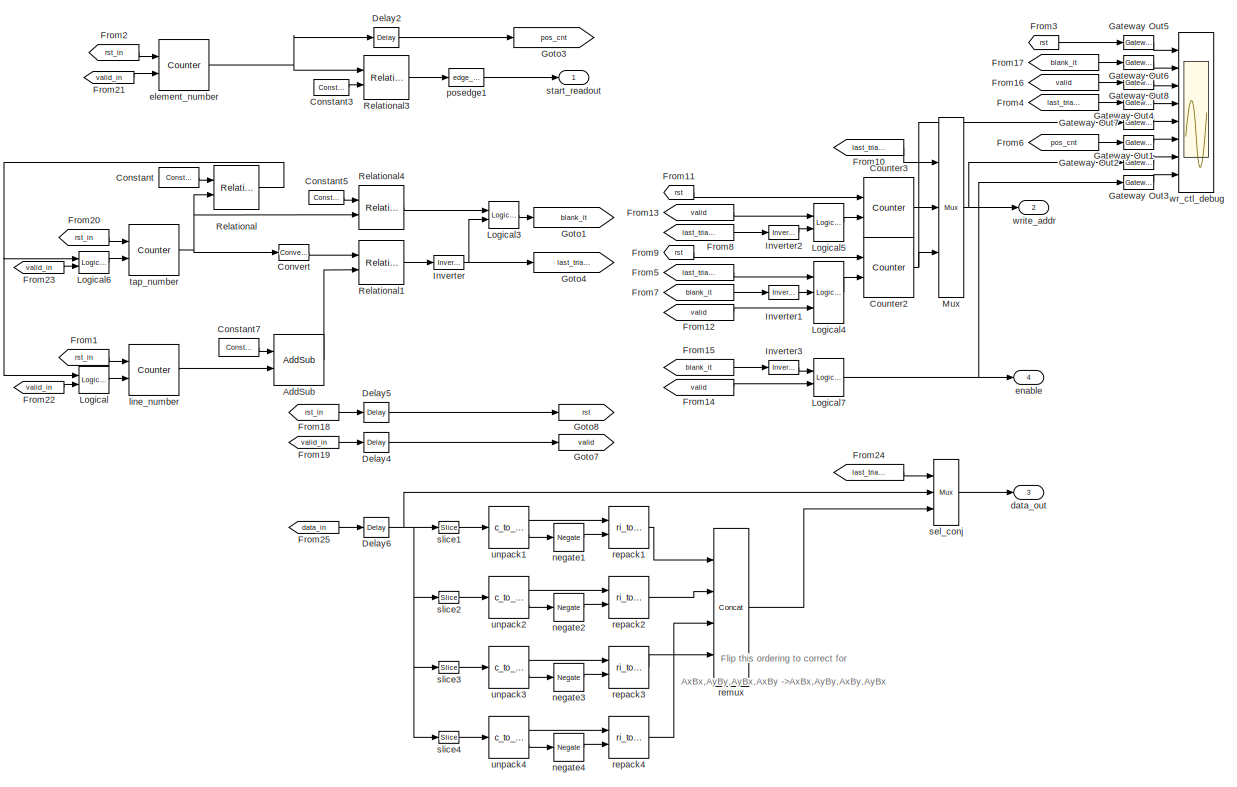
[diagram: xeng_descramble/write_ctrl - part 1/2, most of the canvas]
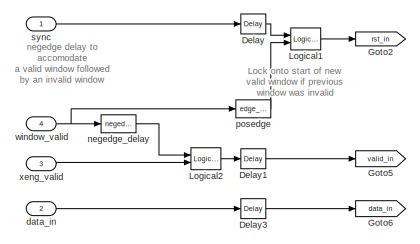
[diagram: xeng_descramble/write_ctrl - part 2/2, top left region]
BLOCK [SubSystem] xeng_descramble/write_ctrl
  Ports = [4, 4]
  RequestExecContextInheritance = off
BLOCK [Reference] xeng_descramble/write_ctrl/AddSub  REF=xbsIndex_r4/AddSub
  Ports = [2, 1]
  SourceBlock = xbsIndex_r4/AddSub
  SourceType = Xilinx Adder/Subtracter Block
BLOCK [Reference] xeng_descramble/write_ctrl/Constant  REF=xbsIndex_r4/Constant
  Ports = [0, 1]
  SourceBlock = xbsIndex_r4/Constant
  SourceType = Xilinx Constant Block Block
BLOCK [Reference] xeng_descramble/write_ctrl/Constant3  REF=xbsIndex_r4/Constant
  Ports = [0, 1]
  SourceBlock = xbsIndex_r4/Constant
  SourceType = Xilinx Constant Block Block
BLOCK [Reference] xeng_descramble/write_ctrl/Constant5  REF=xbsIndex_r4/Constant
  Ports = [0, 1]
  SourceBlock = xbsIndex_r4/Constant
  SourceType = Xilinx Constant Block Block
BLOCK [Reference] xeng_descramble/write_ctrl/Constant7  REF=xbsIndex_r4/Constant
  Ports = [0, 1]
  SourceBlock = xbsIndex_r4/Constant
  SourceType = Xilinx Constant Block Block
BLOCK [Reference] xeng_descramble/write_ctrl/Convert  REF=xbsIndex_r4/Convert
  Ports = [1, 1]
  SourceBlock = xbsIndex_r4/Convert
  SourceType = Xilinx Type Converter Block
BLOCK [Reference] xeng_descramble/write_ctrl/Counter2  REF=xbsIndex_r4/Counter
  Ports = [2, 1]
  SourceBlock = xbsIndex_r4/Counter
  SourceType = Xilinx Counter Block
BLOCK [Reference] xeng_descramble/write_ctrl/Counter3  REF=xbsIndex_r4/Counter
  Ports = [2, 1]
  SourceBlock = xbsIndex_r4/Counter
  SourceType = Xilinx Counter Block
BLOCK [Reference] xeng_descramble/write_ctrl/Delay  REF=xbsIndex_r4/Delay
  Ports = [1, 1]
  SourceBlock = xbsIndex_r4/Delay
  SourceType = Xilinx Delay Block
BLOCK [Reference] xeng_descramble/write_ctrl/Delay1  REF=xbsIndex_r4/Delay
  Ports = [1, 1]
  SourceBlock = xbsIndex_r4/Delay
  SourceType = Xilinx Delay Block
BLOCK [Reference] xeng_descramble/write_ctrl/Delay2  REF=xbsIndex_r4/Delay
  Ports = [1, 1]
  SourceBlock = xbsIndex_r4/Delay
  SourceType = Xilinx Delay Block
BLOCK [Reference] xeng_descramble/write_ctrl/Delay3  REF=xbsIndex_r4/Delay
  Ports = [1, 1]
  SourceBlock = xbsIndex_r4/Delay
  SourceType = Xilinx Delay Block
BLOCK [Reference] xeng_descramble/write_ctrl/Delay4  REF=xbsIndex_r4/Delay
  Ports = [1, 1]
  SourceBlock = xbsIndex_r4/Delay
  SourceType = Xilinx Delay Block
BLOCK [Reference] xeng_descramble/write_ctrl/Delay5  REF=xbsIndex_r4/Delay
  Ports = [1, 1]
  SourceBlock = xbsIndex_r4/Delay
  SourceType = Xilinx Delay Block
BLOCK [Reference] xeng_descramble/write_ctrl/Delay6  REF=xbsIndex_r4/Delay
  Ports = [1, 1]
  SourceBlock = xbsIndex_r4/Delay
  SourceType = Xilinx Delay Block
BLOCK [From] xeng_descramble/write_ctrl/From1
  CloseFcn = tagdialog Close
  GotoTag = rst_in
BLOCK [From] xeng_descramble/write_ctrl/From10
  CloseFcn = tagdialog Close
  GotoTag = last_triangle
BLOCK [From] xeng_descramble/write_ctrl/From11
  CloseFcn = tagdialog Close
  GotoTag = rst
BLOCK [From] xeng_descramble/write_ctrl/From12
  CloseFcn = tagdialog Close
  GotoTag = valid
BLOCK [From] xeng_descramble/write_ctrl/From13
  CloseFcn = tagdialog Close
  GotoTag = valid
BLOCK [From] xeng_descramble/write_ctrl/From14
  CloseFcn = tagdialog Close
  GotoTag = valid
BLOCK [From] xeng_descramble/write_ctrl/From15
  CloseFcn = tagdialog Close
  GotoTag = blank_it
BLOCK [From] xeng_descramble/write_ctrl/From16
  CloseFcn = tagdialog Close
  GotoTag = valid
BLOCK [From] xeng_descramble/write_ctrl/From17
  CloseFcn = tagdialog Close
  GotoTag = blank_it
BLOCK [From] xeng_descramble/write_ctrl/From18
  CloseFcn = tagdialog Close
  GotoTag = rst_in
BLOCK [From] xeng_descramble/write_ctrl/From19
  CloseFcn = tagdialog Close
  GotoTag = valid_in
BLOCK [From] xeng_descramble/write_ctrl/From2
  CloseFcn = tagdialog Close
  GotoTag = rst_in
BLOCK [From] xeng_descramble/write_ctrl/From20
  CloseFcn = tagdialog Close
  GotoTag = rst_in
BLOCK [From] xeng_descramble/write_ctrl/From21
  CloseFcn = tagdialog Close
  GotoTag = valid_in
BLOCK [From] xeng_descramble/write_ctrl/From22
  CloseFcn = tagdialog Close
  GotoTag = valid_in
BLOCK [From] xeng_descramble/write_ctrl/From23
  CloseFcn = tagdialog Close
  GotoTag = valid_in
BLOCK [From] xeng_descramble/write_ctrl/From24
  CloseFcn = tagdialog Close
  GotoTag = last_triangle
BLOCK [From] xeng_descramble/write_ctrl/From25
  CloseFcn = tagdialog Close
  GotoTag = data_in
BLOCK [From] xeng_descramble/write_ctrl/From3
  CloseFcn = tagdialog Close
  GotoTag = rst
BLOCK [From] xeng_descramble/write_ctrl/From4
  CloseFcn = tagdialog Close
  GotoTag = last_triangle
BLOCK [From] xeng_descramble/write_ctrl/From5
  CloseFcn = tagdialog Close
  GotoTag = last_triangle
BLOCK [From] xeng_descramble/write_ctrl/From6
  CloseFcn = tagdialog Close
  GotoTag = pos_cnt
BLOCK [From] xeng_descramble/write_ctrl/From7
  CloseFcn = tagdialog Close
  GotoTag = blank_it
BLOCK [From] xeng_descramble/write_ctrl/From8
  CloseFcn = tagdialog Close
  GotoTag = last_triangle
BLOCK [From] xeng_descramble/write_ctrl/From9
  CloseFcn = tagdialog Close
  GotoTag = rst
BLOCK [Reference] xeng_descramble/write_ctrl/Gateway Out1  REF=xbsIndex_r4/Gateway Out
  Ports = [1, 1]
  SourceBlock = xbsIndex_r4/Gateway Out
  SourceType = Xilinx Gateway Out Block
BLOCK [Reference] xeng_descramble/write_ctrl/Gateway Out2  REF=xbsIndex_r4/Gateway Out
  Ports = [1, 1]
  SourceBlock = xbsIndex_r4/Gateway Out
  SourceType = Xilinx Gateway Out Block
BLOCK [Reference] xeng_descramble/write_ctrl/Gateway Out3  REF=xbsIndex_r4/Gateway Out
  Ports = [1, 1]
  SourceBlock = xbsIndex_r4/Gateway Out
  SourceType = Xilinx Gateway Out Block
BLOCK [Reference] xeng_descramble/write_ctrl/Gateway Out4  REF=xbsIndex_r4/Gateway Out
  Ports = [1, 1]
  SourceBlock = xbsIndex_r4/Gateway Out
  SourceType = Xilinx Gateway Out Block
BLOCK [Reference] xeng_descramble/write_ctrl/Gateway Out5  REF=xbsIndex_r4/Gateway Out
  Ports = [1, 1]
  SourceBlock = xbsIndex_r4/Gateway Out
  SourceType = Xilinx Gateway Out Block
BLOCK [Reference] xeng_descramble/write_ctrl/Gateway Out6  REF=xbsIndex_r4/Gateway Out
  Ports = [1, 1]
  SourceBlock = xbsIndex_r4/Gateway Out
  SourceType = Xilinx Gateway Out Block
BLOCK [Reference] xeng_descramble/write_ctrl/Gateway Out7  REF=xbsIndex_r4/Gateway Out
  Ports = [1, 1]
  SourceBlock = xbsIndex_r4/Gateway Out
  SourceType = Xilinx Gateway Out Block
BLOCK [Reference] xeng_descramble/write_ctrl/Gateway Out8  REF=xbsIndex_r4/Gateway Out
  Ports = [1, 1]
  SourceBlock = xbsIndex_r4/Gateway Out
  SourceType = Xilinx Gateway Out Block
BLOCK [Goto] xeng_descramble/write_ctrl/Goto1
  GotoTag = blank_it
BLOCK [Goto] xeng_descramble/write_ctrl/Goto2
  GotoTag = rst_in
BLOCK [Goto] xeng_descramble/write_ctrl/Goto3
  GotoTag = pos_cnt
BLOCK [Goto] xeng_descramble/write_ctrl/Goto4
  GotoTag = last_triangle
BLOCK [Goto] xeng_descramble/write_ctrl/Goto5
  GotoTag = valid_in
BLOCK [Goto] xeng_descramble/write_ctrl/Goto6
  GotoTag = data_in
BLOCK [Goto] xeng_descramble/write_ctrl/Goto7
  GotoTag = valid
BLOCK [Goto] xeng_descramble/write_ctrl/Goto8
  GotoTag = rst
BLOCK [Reference] xeng_descramble/write_ctrl/Inverter  REF=xbsIndex_r4/Inverter
  Ports = [1, 1]
  SourceBlock = xbsIndex_r4/Inverter
  SourceType = Xilinx Inverter Block
BLOCK [Reference] xeng_descramble/write_ctrl/Inverter1  REF=xbsIndex_r4/Inverter
  Ports = [1, 1]
  SourceBlock = xbsIndex_r4/Inverter
  SourceType = Xilinx Inverter Block
BLOCK [Reference] xeng_descramble/write_ctrl/Inverter2  REF=xbsIndex_r4/Inverter
  Ports = [1, 1]
  SourceBlock = xbsIndex_r4/Inverter
  SourceType = Xilinx Inverter Block
BLOCK [Reference] xeng_descramble/write_ctrl/Inverter3  REF=xbsIndex_r4/Inverter
  Ports = [1, 1]
  SourceBlock = xbsIndex_r4/Inverter
  SourceType = Xilinx Inverter Block
BLOCK [Reference] xeng_descramble/write_ctrl/Logical  REF=xbsIndex_r4/Logical
  Ports = [2, 1]
  SourceBlock = xbsIndex_r4/Logical
  SourceType = Xilinx Logical Block Block
BLOCK [Reference] xeng_descramble/write_ctrl/Logical1  REF=xbsIndex_r4/Logical
  Ports = [2, 1]
  SourceBlock = xbsIndex_r4/Logical
  SourceType = Xilinx Logical Block Block
BLOCK [Reference] xeng_descramble/write_ctrl/Logical2  REF=xbsIndex_r4/Logical
  Ports = [2, 1]
  SourceBlock = xbsIndex_r4/Logical
  SourceType = Xilinx Logical Block Block
BLOCK [Reference] xeng_descramble/write_ctrl/Logical3  REF=xbsIndex_r4/Logical
  Ports = [2, 1]
  SourceBlock = xbsIndex_r4/Logical
  SourceType = Xilinx Logical Block Block
BLOCK [Reference] xeng_descramble/write_ctrl/Logical4  REF=xbsIndex_r4/Logical
  Ports = [3, 1]
  SourceBlock = xbsIndex_r4/Logical
  SourceType = Xilinx Logical Block Block
BLOCK [Reference] xeng_descramble/write_ctrl/Logical5  REF=xbsIndex_r4/Logical
  Ports = [2, 1]
  SourceBlock = xbsIndex_r4/Logical
  SourceType = Xilinx Logical Block Block
BLOCK [Reference] xeng_descramble/write_ctrl/Logical6  REF=xbsIndex_r4/Logical
  Ports = [2, 1]
  SourceBlock = xbsIndex_r4/Logical
  SourceType = Xilinx Logical Block Block
BLOCK [Reference] xeng_descramble/write_ctrl/Logical7  REF=xbsIndex_r4/Logical
  Ports = [2, 1]
  SourceBlock = xbsIndex_r4/Logical
  SourceType = Xilinx Logical Block Block
BLOCK [Reference] xeng_descramble/write_ctrl/Mux  REF=xbsIndex_r4/Mux
  Ports = [3, 1]
  SourceBlock = xbsIndex_r4/Mux
  SourceType = Xilinx Bus Multiplexer Block
BLOCK [Reference] xeng_descramble/write_ctrl/Relational  REF=xbsIndex_r4/Relational
  Ports = [2, 1]
  SourceBlock = xbsIndex_r4/Relational
  SourceType = Xilinx Arithmetic Relational Operator Block
BLOCK [Reference] xeng_descramble/write_ctrl/Relational1  REF=xbsIndex_r4/Relational
  Ports = [2, 1]
  SourceBlock = xbsIndex_r4/Relational
  SourceType = Xilinx Arithmetic Relational Operator Block
BLOCK [Reference] xeng_descramble/write_ctrl/Relational3  REF=xbsIndex_r4/Relational
  Ports = [2, 1]
  SourceBlock = xbsIndex_r4/Relational
  SourceType = Xilinx Arithmetic Relational Operator Block
BLOCK [Reference] xeng_descramble/write_ctrl/Relational4  REF=xbsIndex_r4/Relational
  Ports = [2, 1]
  SourceBlock = xbsIndex_r4/Relational
  SourceType = Xilinx Arithmetic Relational Operator Block
BLOCK [Inport] xeng_descramble/write_ctrl/data_in
  IconDisplay = Port number
  Port = 2
BLOCK [Outport] xeng_descramble/write_ctrl/data_out
  IconDisplay = Port number
  Port = 3
BLOCK [Reference] xeng_descramble/write_ctrl/element_number  REF=xbsIndex_r4/Counter
  Ports = [2, 1]
  SourceBlock = xbsIndex_r4/Counter
  SourceType = Xilinx Counter Block
BLOCK [Outport] xeng_descramble/write_ctrl/enable
  IconDisplay = Port number
  Port = 4
BLOCK [Reference] xeng_descramble/write_ctrl/line_number  REF=xbsIndex_r4/Counter
  Ports = [2, 1]
  SourceBlock = xbsIndex_r4/Counter
  SourceType = Xilinx Counter Block
BLOCK [Reference] xeng_descramble/write_ctrl/negate1  REF=xbsIndex_r4/Negate
  Ports = [1, 1]
  SourceBlock = xbsIndex_r4/Negate
  SourceType = Xilinx Negate Block Block
BLOCK [Reference] xeng_descramble/write_ctrl/negate2  REF=xbsIndex_r4/Negate
  AttributesFormatString = num_ants=8
  Ports = [1, 1]
  SourceBlock = xbsIndex_r4/Negate
  SourceType = Xilinx Negate Block Block
BLOCK [Reference] xeng_descramble/write_ctrl/negate3  REF=xbsIndex_r4/Negate
  Ports = [1, 1]
  SourceBlock = xbsIndex_r4/Negate
  SourceType = Xilinx Negate Block Block
BLOCK [Reference] xeng_descramble/write_ctrl/negate4  REF=xbsIndex_r4/Negate
  Ports = [1, 1]
  SourceBlock = xbsIndex_r4/Negate
  SourceType = Xilinx Negate Block Block
BLOCK [Reference] xeng_descramble/write_ctrl/negedge_delay  REF=casper_library_misc/negedge_delay  (lib defined in mdl_357510c33b49, mdl_57b5f564ae26, +4 more)
  Ports = [1, 1]
  SourceBlock = casper_library_misc/negedge_delay
  SourceProductName = CASPER DSP Blockset
  SourceType = negedge_delay
BLOCK [Reference] xeng_descramble/write_ctrl/posedge  REF=casper_library_misc/edge_detect  (lib defined in mdl_357510c33b49, mdl_57b5f564ae26, +4 more)
  AttributesFormatString = rising edges\nactive high
  Ports = [1, 1]
  SourceBlock = casper_library_misc/edge_detect
  SourceProductName = CASPER DSP Blockset
  SourceType = edge_detect
  UserDataPersistent = on
BLOCK [Reference] xeng_descramble/write_ctrl/posedge1  REF=casper_library_misc/edge_detect  (lib defined in mdl_357510c33b49, mdl_57b5f564ae26, +4 more)
  AttributesFormatString = rising edges\nactive high
  Ports = [1, 1]
  SourceBlock = casper_library_misc/edge_detect
  SourceProductName = CASPER DSP Blockset
  SourceType = edge_detect
  UserDataPersistent = on
BLOCK [Reference] xeng_descramble/write_ctrl/remux  REF=xbsIndex_r4/Concat
  Ports = [4, 1]
  SourceBlock = xbsIndex_r4/Concat
  SourceType = Xilinx Bus Concatenator Block
BLOCK [Reference] xeng_descramble/write_ctrl/repack1  REF=casper_library_misc/ri_to_c  (lib defined in mdl_357510c33b49, mdl_57b5f564ae26, +4 more)
  Ports = [2, 1]
  SourceBlock = casper_library_misc/ri_to_c
  SourceProductName = CASPER DSP Blockset
  SourceType = ri_to_c
  UserDataPersistent = on
BLOCK [Reference] xeng_descramble/write_ctrl/repack2  REF=casper_library_misc/ri_to_c  (lib defined in mdl_357510c33b49, mdl_57b5f564ae26, +4 more)
  Ports = [2, 1]
  SourceBlock = casper_library_misc/ri_to_c
  SourceProductName = CASPER DSP Blockset
  SourceType = ri_to_c
  UserDataPersistent = on
BLOCK [Reference] xeng_descramble/write_ctrl/repack3  REF=casper_library_misc/ri_to_c  (lib defined in mdl_357510c33b49, mdl_57b5f564ae26, +4 more)
  Ports = [2, 1]
  SourceBlock = casper_library_misc/ri_to_c
  SourceProductName = CASPER DSP Blockset
  SourceType = ri_to_c
  UserDataPersistent = on
BLOCK [Reference] xeng_descramble/write_ctrl/repack4  REF=casper_library_misc/ri_to_c  (lib defined in mdl_357510c33b49, mdl_57b5f564ae26, +4 more)
  Ports = [2, 1]
  SourceBlock = casper_library_misc/ri_to_c
  SourceProductName = CASPER DSP Blockset
  SourceType = ri_to_c
  UserDataPersistent = on
BLOCK [Reference] xeng_descramble/write_ctrl/sel_conj  REF=xbsIndex_r4/Mux
  Ports = [3, 1]
  SourceBlock = xbsIndex_r4/Mux
  SourceType = Xilinx Bus Multiplexer Block
BLOCK [Reference] xeng_descramble/write_ctrl/slice1  REF=xbsIndex_r4/Slice
  Ports = [1, 1]
  SourceBlock = xbsIndex_r4/Slice
  SourceType = Xilinx Bit Slice Extractor Block
BLOCK [Reference] xeng_descramble/write_ctrl/slice2  REF=xbsIndex_r4/Slice
  Ports = [1, 1]
  SourceBlock = xbsIndex_r4/Slice
  SourceType = Xilinx Bit Slice Extractor Block
BLOCK [Reference] xeng_descramble/write_ctrl/slice3  REF=xbsIndex_r4/Slice
  Ports = [1, 1]
  SourceBlock = xbsIndex_r4/Slice
  SourceType = Xilinx Bit Slice Extractor Block
BLOCK [Reference] xeng_descramble/write_ctrl/slice4  REF=xbsIndex_r4/Slice
  Ports = [1, 1]
  SourceBlock = xbsIndex_r4/Slice
  SourceType = Xilinx Bit Slice Extractor Block
BLOCK [Outport] xeng_descramble/write_ctrl/start_readout
  IconDisplay = Port number
BLOCK [Inport] xeng_descramble/write_ctrl/sync
  IconDisplay = Port number
BLOCK [Reference] xeng_descramble/write_ctrl/tap_number  REF=xbsIndex_r4/Counter
  Ports = [2, 1]
  SourceBlock = xbsIndex_r4/Counter
  SourceType = Xilinx Counter Block
BLOCK [Reference] xeng_descramble/write_ctrl/unpack1  REF=casper_library_misc/c_to_ri  (lib defined in mdl_357510c33b49, mdl_57b5f564ae26, +4 more)
  AttributesFormatString = 16_0 r/i
  Ports = [1, 2]
  SourceBlock = casper_library_misc/c_to_ri
  SourceProductName = CASPER DSP Blockset
  SourceType = c_to_ri
  UserDataPersistent = on
BLOCK [Reference] xeng_descramble/write_ctrl/unpack2  REF=casper_library_misc/c_to_ri  (lib defined in mdl_357510c33b49, mdl_57b5f564ae26, +4 more)
  AttributesFormatString = 16_0 r/i
  Ports = [1, 2]
  SourceBlock = casper_library_misc/c_to_ri
  SourceProductName = CASPER DSP Blockset
  SourceType = c_to_ri
  UserDataPersistent = on
BLOCK [Reference] xeng_descramble/write_ctrl/unpack3  REF=casper_library_misc/c_to_ri  (lib defined in mdl_357510c33b49, mdl_57b5f564ae26, +4 more)
  AttributesFormatString = 16_0 r/i
  Ports = [1, 2]
  SourceBlock = casper_library_misc/c_to_ri
  SourceProductName = CASPER DSP Blockset
  SourceType = c_to_ri
  UserDataPersistent = on
BLOCK [Reference] xeng_descramble/write_ctrl/unpack4  REF=casper_library_misc/c_to_ri  (lib defined in mdl_357510c33b49, mdl_57b5f564ae26, +4 more)
  AttributesFormatString = 16_0 r/i
  Ports = [1, 2]
  SourceBlock = casper_library_misc/c_to_ri
  SourceProductName = CASPER DSP Blockset
  SourceType = c_to_ri
  UserDataPersistent = on
BLOCK [Inport] xeng_descramble/write_ctrl/window_valid
  IconDisplay = Port number
  Port = 4
BLOCK [Scope] xeng_descramble/write_ctrl/wr_ctl_debug
  Floating = off
  NumInputPorts = 8
  Ports = [8]
  ScopeSpecificationString = Simulink.scopes.TimeScopeBlockCfg('CurrentConfiguration', extmgr.ConfigurationSet(extmgr.Configuration('Core','General UI',true),extmgr.Configuration('Core','Source UI',true),extmgr.Configuration('Sources','WiredSimulink',true,'DataLoggingVariableName','ScopeData5','DataLoggingSaveFormat','StructureWithTime','DataLoggingDecimation','1','DataLoggingDecimateData',true),extmgr.Configuration('Visuals'...<+6316ch>
BLOCK [Outport] xeng_descramble/write_ctrl/write_addr
  IconDisplay = Port number
  Port = 2
BLOCK [Inport] xeng_descramble/write_ctrl/xeng_valid
  IconDisplay = Port number
  Port = 3
BLOCK [SubSystem] xeng_descramble/x_cast
  AttributesFormatString = 16 -> 16, demux 8.
  Ports = [1, 1]
  RequestExecContextInheritance = off
BLOCK [Reference] xeng_descramble/x_cast/Concat  REF=xbsIndex_r4/Concat
  Ports = [8, 1]
  SourceBlock = xbsIndex_r4/Concat
  SourceType = Xilinx Bus Concatenator Block
BLOCK [Reference] xeng_descramble/x_cast/Convert  REF=xbsIndex_r4/Convert
  Ports = [1, 1]
  SourceBlock = xbsIndex_r4/Convert
  SourceType = Xilinx Type Converter Block
BLOCK [Reference] xeng_descramble/x_cast/Convert1  REF=xbsIndex_r4/Convert
  Ports = [1, 1]
  SourceBlock = xbsIndex_r4/Convert
  SourceType = Xilinx Type Converter Block
BLOCK [Reference] xeng_descramble/x_cast/Convert2  REF=xbsIndex_r4/Convert
  Ports = [1, 1]
  SourceBlock = xbsIndex_r4/Convert
  SourceType = Xilinx Type Converter Block
BLOCK [Reference] xeng_descramble/x_cast/Convert3  REF=xbsIndex_r4/Convert
  Ports = [1, 1]
  SourceBlock = xbsIndex_r4/Convert
  SourceType = Xilinx Type Converter Block
BLOCK [Reference] xeng_descramble/x_cast/Convert4  REF=xbsIndex_r4/Convert
  Ports = [1, 1]
  SourceBlock = xbsIndex_r4/Convert
  SourceType = Xilinx Type Converter Block
BLOCK [Reference] xeng_descramble/x_cast/Convert5  REF=xbsIndex_r4/Convert
  Ports = [1, 1]
  SourceBlock = xbsIndex_r4/Convert
  SourceType = Xilinx Type Converter Block
BLOCK [Reference] xeng_descramble/x_cast/Convert6  REF=xbsIndex_r4/Convert
  Ports = [1, 1]
  SourceBlock = xbsIndex_r4/Convert
  SourceType = Xilinx Type Converter Block
BLOCK [Reference] xeng_descramble/x_cast/Convert7  REF=xbsIndex_r4/Convert
  Ports = [1, 1]
  SourceBlock = xbsIndex_r4/Convert
  SourceType = Xilinx Type Converter Block
BLOCK [Reference] xeng_descramble/x_cast/Slice  REF=xbsIndex_r4/Slice
  Ports = [1, 1]
  SourceBlock = xbsIndex_r4/Slice
  SourceType = Xilinx Bit Slice Extractor Block
BLOCK [Reference] xeng_descramble/x_cast/Slice1  REF=xbsIndex_r4/Slice
  Ports = [1, 1]
  SourceBlock = xbsIndex_r4/Slice
  SourceType = Xilinx Bit Slice Extractor Block
BLOCK [Reference] xeng_descramble/x_cast/Slice2  REF=xbsIndex_r4/Slice
  Ports = [1, 1]
  SourceBlock = xbsIndex_r4/Slice
  SourceType = Xilinx Bit Slice Extractor Block
BLOCK [Reference] xeng_descramble/x_cast/Slice3  REF=xbsIndex_r4/Slice
  Ports = [1, 1]
  SourceBlock = xbsIndex_r4/Slice
  SourceType = Xilinx Bit Slice Extractor Block
BLOCK [Reference] xeng_descramble/x_cast/Slice4  REF=xbsIndex_r4/Slice
  Ports = [1, 1]
  SourceBlock = xbsIndex_r4/Slice
  SourceType = Xilinx Bit Slice Extractor Block
BLOCK [Reference] xeng_descramble/x_cast/Slice5  REF=xbsIndex_r4/Slice
  Ports = [1, 1]
  SourceBlock = xbsIndex_r4/Slice
  SourceType = Xilinx Bit Slice Extractor Block
BLOCK [Reference] xeng_descramble/x_cast/Slice6  REF=xbsIndex_r4/Slice
  Ports = [1, 1]
  SourceBlock = xbsIndex_r4/Slice
  SourceType = Xilinx Bit Slice Extractor Block
BLOCK [Reference] xeng_descramble/x_cast/Slice7  REF=xbsIndex_r4/Slice
  Ports = [1, 1]
  SourceBlock = xbsIndex_r4/Slice
  SourceType = Xilinx Bit Slice Extractor Block
BLOCK [Reference] xeng_descramble/x_cast/force_re  REF=xbsIndex_r4/Reinterpret
  Ports = [1, 1]
  SourceBlock = xbsIndex_r4/Reinterpret
  SourceType = Xilinx Type Reinterpreter Block
BLOCK [Reference] xeng_descramble/x_cast/force_re1  REF=xbsIndex_r4/Reinterpret
  Ports = [1, 1]
  SourceBlock = xbsIndex_r4/Reinterpret
  SourceType = Xilinx Type Reinterpreter Block
BLOCK [Reference] xeng_descramble/x_cast/force_re10  REF=xbsIndex_r4/Reinterpret
  Ports = [1, 1]
  SourceBlock = xbsIndex_r4/Reinterpret
  SourceType = Xilinx Type Reinterpreter Block
BLOCK [Reference] xeng_descramble/x_cast/force_re11  REF=xbsIndex_r4/Reinterpret
  Ports = [1, 1]
  SourceBlock = xbsIndex_r4/Reinterpret
  SourceType = Xilinx Type Reinterpreter Block
BLOCK [Reference] xeng_descramble/x_cast/force_re12  REF=xbsIndex_r4/Reinterpret
  Ports = [1, 1]
  SourceBlock = xbsIndex_r4/Reinterpret
  SourceType = Xilinx Type Reinterpreter Block
BLOCK [Reference] xeng_descramble/x_cast/force_re13  REF=xbsIndex_r4/Reinterpret
  Ports = [1, 1]
  SourceBlock = xbsIndex_r4/Reinterpret
  SourceType = Xilinx Type Reinterpreter Block
BLOCK [Reference] xeng_descramble/x_cast/force_re14  REF=xbsIndex_r4/Reinterpret
  Ports = [1, 1]
  SourceBlock = xbsIndex_r4/Reinterpret
  SourceType = Xilinx Type Reinterpreter Block
BLOCK [Reference] xeng_descramble/x_cast/force_re15  REF=xbsIndex_r4/Reinterpret
  Ports = [1, 1]
  SourceBlock = xbsIndex_r4/Reinterpret
  SourceType = Xilinx Type Reinterpreter Block
BLOCK [Reference] xeng_descramble/x_cast/force_re2  REF=xbsIndex_r4/Reinterpret
  Ports = [1, 1]
  SourceBlock = xbsIndex_r4/Reinterpret
  SourceType = Xilinx Type Reinterpreter Block
BLOCK [Reference] xeng_descramble/x_cast/force_re3  REF=xbsIndex_r4/Reinterpret
  Ports = [1, 1]
  SourceBlock = xbsIndex_r4/Reinterpret
  SourceType = Xilinx Type Reinterpreter Block
BLOCK [Reference] xeng_descramble/x_cast/force_re4  REF=xbsIndex_r4/Reinterpret
  Ports = [1, 1]
  SourceBlock = xbsIndex_r4/Reinterpret
  SourceType = Xilinx Type Reinterpreter Block
BLOCK [Reference] xeng_descramble/x_cast/force_re5  REF=xbsIndex_r4/Reinterpret
  Ports = [1, 1]
  SourceBlock = xbsIndex_r4/Reinterpret
  SourceType = Xilinx Type Reinterpreter Block
BLOCK [Reference] xeng_descramble/x_cast/force_re6  REF=xbsIndex_r4/Reinterpret
  Ports = [1, 1]
  SourceBlock = xbsIndex_r4/Reinterpret
  SourceType = Xilinx Type Reinterpreter Block
BLOCK [Reference] xeng_descramble/x_cast/force_re7  REF=xbsIndex_r4/Reinterpret
  Ports = [1, 1]
  SourceBlock = xbsIndex_r4/Reinterpret
  SourceType = Xilinx Type Reinterpreter Block
BLOCK [Reference] xeng_descramble/x_cast/force_re8  REF=xbsIndex_r4/Reinterpret
  Ports = [1, 1]
  SourceBlock = xbsIndex_r4/Reinterpret
  SourceType = Xilinx Type Reinterpreter Block
BLOCK [Reference] xeng_descramble/x_cast/force_re9  REF=xbsIndex_r4/Reinterpret
  Ports = [1, 1]
  SourceBlock = xbsIndex_r4/Reinterpret
  SourceType = Xilinx Type Reinterpreter Block
BLOCK [Inport] xeng_descramble/x_cast/in
  IconDisplay = Port number
BLOCK [Outport] xeng_descramble/x_cast/out
  IconDisplay = Port number
BLOCK [SubSystem] xeng_descramble_4ant
  AttributesFormatString = num_ants=4
  Ports = [4, 3]
  RequestExecContextInheritance = off
BLOCK [Reference] xeng_descramble_4ant/Constant2  REF=xbsIndex_r4/Constant
  Ports = [0, 1]
  SourceBlock = xbsIndex_r4/Constant
  SourceType = Xilinx Constant Block Block
BLOCK [Reference] xeng_descramble_4ant/Constant3  REF=xbsIndex_r4/Constant
  Ports = [0, 1]
  SourceBlock = xbsIndex_r4/Constant
  SourceType = Xilinx Constant Block Block
BLOCK [Reference] xeng_descramble_4ant/Delay1  REF=xbsIndex_r4/Delay
  Ports = [1, 1]
  SourceBlock = xbsIndex_r4/Delay
  SourceType = Xilinx Delay Block
BLOCK [Reference] xeng_descramble_4ant/Delay2  REF=xbsIndex_r4/Delay
  Ports = [1, 1]
  SourceBlock = xbsIndex_r4/Delay
  SourceType = Xilinx Delay Block
BLOCK [Reference] xeng_descramble_4ant/Delay3  REF=xbsIndex_r4/Delay
  Ports = [1, 1]
  SourceBlock = xbsIndex_r4/Delay
  SourceType = Xilinx Delay Block
BLOCK [Reference] xeng_descramble_4ant/Delay4  REF=xbsIndex_r4/Delay
  Ports = [1, 1]
  SourceBlock = xbsIndex_r4/Delay
  SourceType = Xilinx Delay Block
BLOCK [Reference] xeng_descramble_4ant/Delay5  REF=xbsIndex_r4/Delay
  Ports = [1, 1]
  SourceBlock = xbsIndex_r4/Delay
  SourceType = Xilinx Delay Block
BLOCK [Reference] xeng_descramble_4ant/Delay6  REF=xbsIndex_r4/Delay
  Ports = [1, 1]
  SourceBlock = xbsIndex_r4/Delay
  SourceType = Xilinx Delay Block
BLOCK [Reference] xeng_descramble_4ant/Dual Port RAM  REF=xbsIndex_r4/Dual Port RAM
  Ports = [6, 2]
  SourceBlock = xbsIndex_r4/Dual Port RAM
  SourceType = Xilinx Dual Port Random Access Memory Block
BLOCK [From] xeng_descramble_4ant/From1
  CloseFcn = tagdialog Close
  GotoTag = start_read
BLOCK [From] xeng_descramble_4ant/From10
  CloseFcn = tagdialog Close
  GotoTag = start_read
BLOCK [From] xeng_descramble_4ant/From2
  CloseFcn = tagdialog Close
  GotoTag = start_read
BLOCK [From] xeng_descramble_4ant/From3
  CloseFcn = tagdialog Close
  GotoTag = start_read
BLOCK [From] xeng_descramble_4ant/From4
  CloseFcn = tagdialog Close
  GotoTag = valid_out
BLOCK [From] xeng_descramble_4ant/From5
  CloseFcn = tagdialog Close
  GotoTag = valid_out
BLOCK [From] xeng_descramble_4ant/From6
  CloseFcn = tagdialog Close
  GotoTag = sync_in
BLOCK [From] xeng_descramble_4ant/From7
  CloseFcn = tagdialog Close
  GotoTag = sync_in
BLOCK [From] xeng_descramble_4ant/From8
  CloseFcn = tagdialog Close
  GotoTag = sync_in
BLOCK [Reference] xeng_descramble_4ant/Gateway Out1  REF=xbsIndex_r4/Gateway Out
  Ports = [1, 1]
  SourceBlock = xbsIndex_r4/Gateway Out
  SourceType = Xilinx Gateway Out Block
BLOCK [Reference] xeng_descramble_4ant/Gateway Out10  REF=xbsIndex_r4/Gateway Out
  Ports = [1, 1]
  SourceBlock = xbsIndex_r4/Gateway Out
  SourceType = Xilinx Gateway Out Block
BLOCK [Reference] xeng_descramble_4ant/Gateway Out11  REF=xbsIndex_r4/Gateway Out
  Ports = [1, 1]
  SourceBlock = xbsIndex_r4/Gateway Out
  SourceType = Xilinx Gateway Out Block
BLOCK [Reference] xeng_descramble_4ant/Gateway Out17  REF=xbsIndex_r4/Gateway Out
  Ports = [1, 1]
  SourceBlock = xbsIndex_r4/Gateway Out
  SourceType = Xilinx Gateway Out Block
BLOCK [Reference] xeng_descramble_4ant/Gateway Out19  REF=xbsIndex_r4/Gateway Out
  Ports = [1, 1]
  SourceBlock = xbsIndex_r4/Gateway Out
  SourceType = Xilinx Gateway Out Block
BLOCK [Reference] xeng_descramble_4ant/Gateway Out2  REF=xbsIndex_r4/Gateway Out
  Ports = [1, 1]
  SourceBlock = xbsIndex_r4/Gateway Out
  SourceType = Xilinx Gateway Out Block
BLOCK [Reference] xeng_descramble_4ant/Gateway Out20  REF=xbsIndex_r4/Gateway Out
  Ports = [1, 1]
  SourceBlock = xbsIndex_r4/Gateway Out
  SourceType = Xilinx Gateway Out Block
BLOCK [Reference] xeng_descramble_4ant/Gateway Out3  REF=xbsIndex_r4/Gateway Out
  Ports = [1, 1]
  SourceBlock = xbsIndex_r4/Gateway Out
  SourceType = Xilinx Gateway Out Block
BLOCK [Reference] xeng_descramble_4ant/Gateway Out4  REF=xbsIndex_r4/Gateway Out
  Ports = [1, 1]
  SourceBlock = xbsIndex_r4/Gateway Out
  SourceType = Xilinx Gateway Out Block
BLOCK [Reference] xeng_descramble_4ant/Gateway Out5  REF=xbsIndex_r4/Gateway Out
  Ports = [1, 1]
  SourceBlock = xbsIndex_r4/Gateway Out
  SourceType = Xilinx Gateway Out Block
BLOCK [Reference] xeng_descramble_4ant/Gateway Out6  REF=xbsIndex_r4/Gateway Out
  Ports = [1, 1]
  SourceBlock = xbsIndex_r4/Gateway Out
  SourceType = Xilinx Gateway Out Block
BLOCK [Reference] xeng_descramble_4ant/Gateway Out7  REF=xbsIndex_r4/Gateway Out
  Ports = [1, 1]
  SourceBlock = xbsIndex_r4/Gateway Out
  SourceType = Xilinx Gateway Out Block
BLOCK [Reference] xeng_descramble_4ant/Gateway Out8  REF=xbsIndex_r4/Gateway Out
  Ports = [1, 1]
  SourceBlock = xbsIndex_r4/Gateway Out
  SourceType = Xilinx Gateway Out Block
BLOCK [Reference] xeng_descramble_4ant/Gateway Out9  REF=xbsIndex_r4/Gateway Out
  Ports = [1, 1]
  SourceBlock = xbsIndex_r4/Gateway Out
  SourceType = Xilinx Gateway Out Block
BLOCK [Goto] xeng_descramble_4ant/Goto1
  GotoTag = valid_out
BLOCK [Goto] xeng_descramble_4ant/Goto10
  GotoTag = start_read
BLOCK [Goto] xeng_descramble_4ant/Goto2
  GotoTag = sync_in
BLOCK [Reference] xeng_descramble_4ant/Logical  REF=xbsIndex_r4/Logical
  Ports = [2, 1]
  SourceBlock = xbsIndex_r4/Logical
  SourceType = Xilinx Logical Block Block
BLOCK [Reference] xeng_descramble_4ant/Register  REF=xbsIndex_r4/Register
  Ports = [3, 1]
  SourceBlock = xbsIndex_r4/Register
  SourceType = Xilinx Register Block
BLOCK [Scope] xeng_descramble_4ant/Scope1
  Floating = off
  NumInputPorts = 8
  Ports = [8]
  ScopeSpecificationString = C++SS(StrPVP('Location','[1675, 185, 3593, 1323]'),StrPVP('Open','off'),StrPVP('ZoomMode','xonly'),MxPVP('AxesTitles',53,'struct(''axes1'',''sync'',''axes2'',''valid_in'',''axes3'',''window_valid'',''axes4'',''start_readout'',''axes5'',''valid_out'',''axes6'',''read_addr'',''axes7'',''valid_write'',''axes8'',''write_addr'')'),StrPVP('ShowLegends','off'),StrPVP('TimeRange','70000'),StrPVP('YMin','0...<+255ch>
BLOCK [Scope] xeng_descramble_4ant/Scope6
  Floating = off
  NumInputPorts = 6
  Ports = [6]
  ScopeSpecificationString = C++SS(StrPVP('Location','[1675, 185, 3593, 1323]'),StrPVP('Open','off'),StrPVP('ZoomMode','xonly'),MxPVP('AxesTitles',53,'struct(''axes1'',''data_in'',''axes2'',''write_valid'',''axes3'',''read_addr'',''axes4'',''data_out'',''axes5'',''valid_out'',''axes6'',''sync_out'')'),StrPVP('ShowLegends','off'),StrPVP('YMin','-1~0~0~0~0~-1'),StrPVP('YMax','1~1~40~40~1~1'),StrPVP('SaveName','ScopeData4'),StrP...<+167ch>
BLOCK [Terminator] xeng_descramble_4ant/Terminator1
BLOCK [Inport] xeng_descramble_4ant/acc
  IconDisplay = Port number
BLOCK [Outport] xeng_descramble_4ant/acc_out
  IconDisplay = Port number
BLOCK [SubSystem] xeng_descramble_4ant/read_ctrl
  Ports = [1, 2]
  RequestExecContextInheritance = off
BLOCK [Reference] xeng_descramble_4ant/read_ctrl/Constant1  REF=xbsIndex_r4/Constant
  Ports = [0, 1]
  SourceBlock = xbsIndex_r4/Constant
  SourceType = Xilinx Constant Block Block
BLOCK [Reference] xeng_descramble_4ant/read_ctrl/Constant2  REF=xbsIndex_r4/Constant
  Ports = [0, 1]
  SourceBlock = xbsIndex_r4/Constant
  SourceType = Xilinx Constant Block Block
BLOCK [Reference] xeng_descramble_4ant/read_ctrl/Gateway Out1  REF=xbsIndex_r4/Gateway Out
  Ports = [1, 1]
  SourceBlock = xbsIndex_r4/Gateway Out
  SourceType = Xilinx Gateway Out Block
BLOCK [Reference] xeng_descramble_4ant/read_ctrl/Gateway Out2  REF=xbsIndex_r4/Gateway Out
  Ports = [1, 1]
  SourceBlock = xbsIndex_r4/Gateway Out
  SourceType = Xilinx Gateway Out Block
BLOCK [Reference] xeng_descramble_4ant/read_ctrl/Gateway Out4  REF=xbsIndex_r4/Gateway Out
  Ports = [1, 1]
  SourceBlock = xbsIndex_r4/Gateway Out
  SourceType = Xilinx Gateway Out Block
BLOCK [Reference] xeng_descramble_4ant/read_ctrl/Gateway Out5  REF=xbsIndex_r4/Gateway Out
  Ports = [1, 1]
  SourceBlock = xbsIndex_r4/Gateway Out
  SourceType = Xilinx Gateway Out Block
BLOCK [Reference] xeng_descramble_4ant/read_ctrl/Gateway Out6  REF=xbsIndex_r4/Gateway Out
  Ports = [1, 1]
  SourceBlock = xbsIndex_r4/Gateway Out
  SourceType = Xilinx Gateway Out Block
BLOCK [Reference] xeng_descramble_4ant/read_ctrl/Gateway Out7  REF=xbsIndex_r4/Gateway Out
  Ports = [1, 1]
  SourceBlock = xbsIndex_r4/Gateway Out
  SourceType = Xilinx Gateway Out Block
BLOCK [Reference] xeng_descramble_4ant/read_ctrl/Gateway Out8  REF=xbsIndex_r4/Gateway Out
  Ports = [1, 1]
  SourceBlock = xbsIndex_r4/Gateway Out
  SourceType = Xilinx Gateway Out Block
BLOCK [Reference] xeng_descramble_4ant/read_ctrl/Inverter3  REF=xbsIndex_r4/Inverter
  Ports = [1, 1]
  SourceBlock = xbsIndex_r4/Inverter
  SourceType = Xilinx Inverter Block
BLOCK [Reference] xeng_descramble_4ant/read_ctrl/Logical1  REF=xbsIndex_r4/Logical
  Ports = [2, 1]
  SourceBlock = xbsIndex_r4/Logical
  SourceType = Xilinx Logical Block Block
BLOCK [Reference] xeng_descramble_4ant/read_ctrl/Logical7  REF=xbsIndex_r4/Logical
  Ports = [2, 1]
  SourceBlock = xbsIndex_r4/Logical
  SourceType = Xilinx Logical Block Block
BLOCK [Reference] xeng_descramble_4ant/read_ctrl/Register  REF=xbsIndex_r4/Register
  Ports = [3, 1]
  SourceBlock = xbsIndex_r4/Register
  SourceType = Xilinx Register Block
BLOCK [Reference] xeng_descramble_4ant/read_ctrl/Relational1  REF=xbsIndex_r4/Relational
  Ports = [2, 1]
  SourceBlock = xbsIndex_r4/Relational
  SourceType = Xilinx Arithmetic Relational Operator Block
BLOCK [Reference] xeng_descramble_4ant/read_ctrl/Relational3  REF=xbsIndex_r4/Relational
  Ports = [2, 1]
  SourceBlock = xbsIndex_r4/Relational
  SourceType = Xilinx Arithmetic Relational Operator Block
BLOCK [Scope] xeng_descramble_4ant/read_ctrl/Scope1
  Floating = off
  NumInputPorts = 7
  Ports = [7]
  ScopeSpecificationString = C++SS(StrPVP('Location','[1675, 56, 3593, 1194]'),StrPVP('Open','off'),StrPVP('ZoomMode','xonly'),MxPVP('AxesTitles',53,'struct(''axes1'',''start_readout'',''axes2'',''delay_readout_cnt'',''axes3'',''ship_element_now'',''axes4'',''rst_element_cnt'',''axes5'',''element_cnt'',''axes6'',''read'',''axes7'',''read_addr'')'),StrPVP('ShowLegends','off'),StrPVP('YMin','0~0~0~0~0~0~0'),StrPVP('YMax','1~20~...<+215ch>
BLOCK [Reference] xeng_descramble_4ant/read_ctrl/element  REF=xbsIndex_r4/Counter
  Ports = [2, 1]
  SourceBlock = xbsIndex_r4/Counter
  SourceType = Xilinx Counter Block
BLOCK [Outport] xeng_descramble_4ant/read_ctrl/enable
  IconDisplay = Port number
  Port = 2
BLOCK [Outport] xeng_descramble_4ant/read_ctrl/read_addr
  IconDisplay = Port number
BLOCK [Reference] xeng_descramble_4ant/read_ctrl/ship_element_delay  REF=xbsIndex_r4/Counter
  Ports = [1, 1]
  SourceBlock = xbsIndex_r4/Counter
  SourceType = Xilinx Counter Block
BLOCK [Inport] xeng_descramble_4ant/read_ctrl/start
  IconDisplay = Port number
BLOCK [Inport] xeng_descramble_4ant/sync
  IconDisplay = Port number
  Port = 3
BLOCK [Outport] xeng_descramble_4ant/sync_out
  IconDisplay = Port number
  Port = 3
BLOCK [Inport] xeng_descramble_4ant/valid
  IconDisplay = Port number
  Port = 2
BLOCK [Outport] xeng_descramble_4ant/valid_out
  IconDisplay = Port number
  Port = 2
BLOCK [Inport] xeng_descramble_4ant/win_valid
  IconDisplay = Port number
  Port = 4
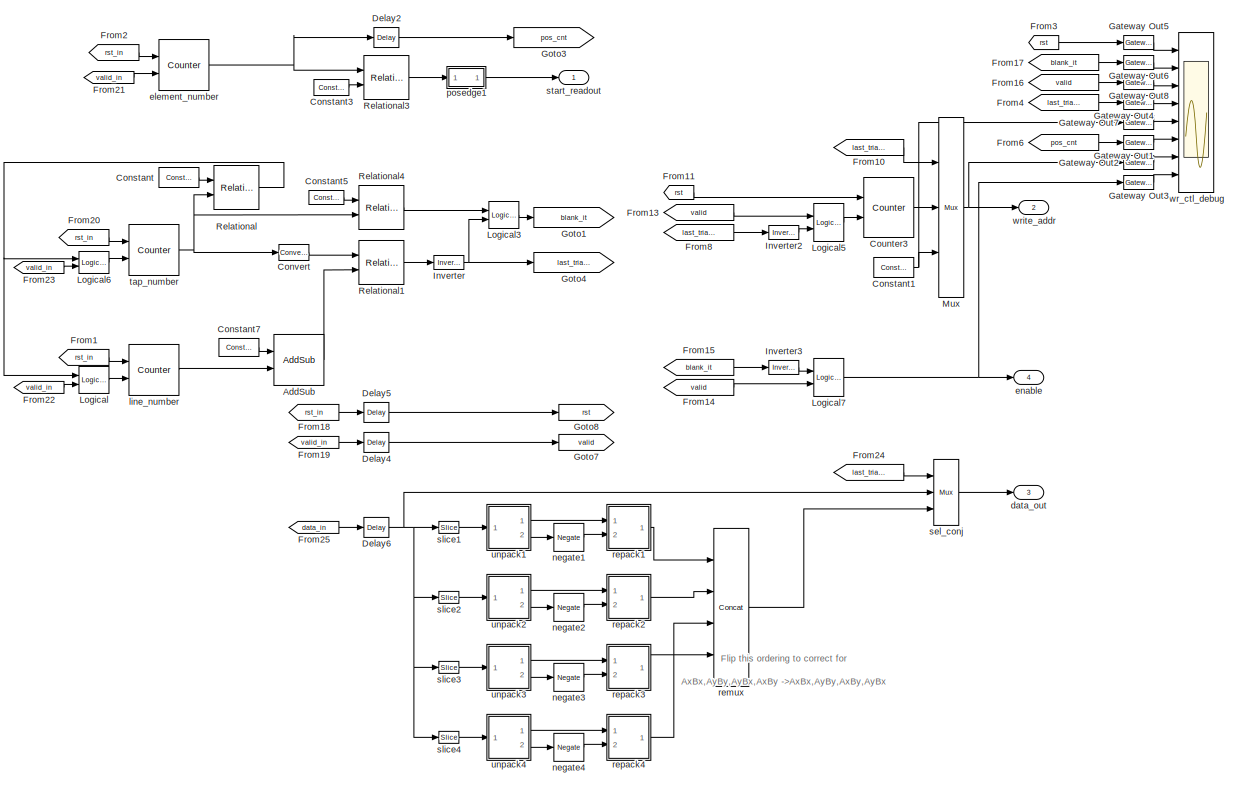
[diagram: xeng_descramble_4ant/write_ctrl - part 1/2, most of the canvas]
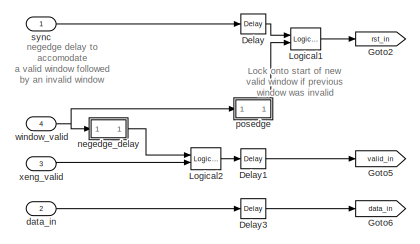
[diagram: xeng_descramble_4ant/write_ctrl - part 2/2, top left region]
BLOCK [SubSystem] xeng_descramble_4ant/write_ctrl
  Ports = [4, 4]
  RequestExecContextInheritance = off
BLOCK [Reference] xeng_descramble_4ant/write_ctrl/AddSub  REF=xbsIndex_r4/AddSub
  Ports = [2, 1]
  SourceBlock = xbsIndex_r4/AddSub
  SourceType = Xilinx Adder/Subtracter Block
BLOCK [Reference] xeng_descramble_4ant/write_ctrl/Constant  REF=xbsIndex_r4/Constant
  Ports = [0, 1]
  SourceBlock = xbsIndex_r4/Constant
  SourceType = Xilinx Constant Block Block
BLOCK [Reference] xeng_descramble_4ant/write_ctrl/Constant1  REF=xbsIndex_r4/Constant
  Ports = [0, 1]
  SourceBlock = xbsIndex_r4/Constant
  SourceType = Xilinx Constant Block Block
BLOCK [Reference] xeng_descramble_4ant/write_ctrl/Constant3  REF=xbsIndex_r4/Constant
  Ports = [0, 1]
  SourceBlock = xbsIndex_r4/Constant
  SourceType = Xilinx Constant Block Block
BLOCK [Reference] xeng_descramble_4ant/write_ctrl/Constant5  REF=xbsIndex_r4/Constant
  Ports = [0, 1]
  SourceBlock = xbsIndex_r4/Constant
  SourceType = Xilinx Constant Block Block
BLOCK [Reference] xeng_descramble_4ant/write_ctrl/Constant7  REF=xbsIndex_r4/Constant
  Ports = [0, 1]
  SourceBlock = xbsIndex_r4/Constant
  SourceType = Xilinx Constant Block Block
BLOCK [Reference] xeng_descramble_4ant/write_ctrl/Convert  REF=xbsIndex_r4/Convert
  Ports = [1, 1]
  SourceBlock = xbsIndex_r4/Convert
  SourceType = Xilinx Type Converter Block
BLOCK [Reference] xeng_descramble_4ant/write_ctrl/Counter3  REF=xbsIndex_r4/Counter
  Ports = [2, 1]
  SourceBlock = xbsIndex_r4/Counter
  SourceType = Xilinx Counter Block
BLOCK [Reference] xeng_descramble_4ant/write_ctrl/Delay  REF=xbsIndex_r4/Delay
  Ports = [1, 1]
  SourceBlock = xbsIndex_r4/Delay
  SourceType = Xilinx Delay Block
BLOCK [Reference] xeng_descramble_4ant/write_ctrl/Delay1  REF=xbsIndex_r4/Delay
  Ports = [1, 1]
  SourceBlock = xbsIndex_r4/Delay
  SourceType = Xilinx Delay Block
BLOCK [Reference] xeng_descramble_4ant/write_ctrl/Delay2  REF=xbsIndex_r4/Delay
  Ports = [1, 1]
  SourceBlock = xbsIndex_r4/Delay
  SourceType = Xilinx Delay Block
BLOCK [Reference] xeng_descramble_4ant/write_ctrl/Delay3  REF=xbsIndex_r4/Delay
  Ports = [1, 1]
  SourceBlock = xbsIndex_r4/Delay
  SourceType = Xilinx Delay Block
BLOCK [Reference] xeng_descramble_4ant/write_ctrl/Delay4  REF=xbsIndex_r4/Delay
  Ports = [1, 1]
  SourceBlock = xbsIndex_r4/Delay
  SourceType = Xilinx Delay Block
BLOCK [Reference] xeng_descramble_4ant/write_ctrl/Delay5  REF=xbsIndex_r4/Delay
  Ports = [1, 1]
  SourceBlock = xbsIndex_r4/Delay
  SourceType = Xilinx Delay Block
BLOCK [Reference] xeng_descramble_4ant/write_ctrl/Delay6  REF=xbsIndex_r4/Delay
  Ports = [1, 1]
  SourceBlock = xbsIndex_r4/Delay
  SourceType = Xilinx Delay Block
BLOCK [From] xeng_descramble_4ant/write_ctrl/From1
  CloseFcn = tagdialog Close
  GotoTag = rst_in
BLOCK [From] xeng_descramble_4ant/write_ctrl/From10
  CloseFcn = tagdialog Close
  GotoTag = last_triangle
BLOCK [From] xeng_descramble_4ant/write_ctrl/From11
  CloseFcn = tagdialog Close
  GotoTag = rst
BLOCK [From] xeng_descramble_4ant/write_ctrl/From13
  CloseFcn = tagdialog Close
  GotoTag = valid
BLOCK [From] xeng_descramble_4ant/write_ctrl/From14
  CloseFcn = tagdialog Close
  GotoTag = valid
BLOCK [From] xeng_descramble_4ant/write_ctrl/From15
  CloseFcn = tagdialog Close
  GotoTag = blank_it
BLOCK [From] xeng_descramble_4ant/write_ctrl/From16
  CloseFcn = tagdialog Close
  GotoTag = valid
BLOCK [From] xeng_descramble_4ant/write_ctrl/From17
  CloseFcn = tagdialog Close
  GotoTag = blank_it
BLOCK [From] xeng_descramble_4ant/write_ctrl/From18
  CloseFcn = tagdialog Close
  GotoTag = rst_in
BLOCK [From] xeng_descramble_4ant/write_ctrl/From19
  CloseFcn = tagdialog Close
  GotoTag = valid_in
BLOCK [From] xeng_descramble_4ant/write_ctrl/From2
  CloseFcn = tagdialog Close
  GotoTag = rst_in
BLOCK [From] xeng_descramble_4ant/write_ctrl/From20
  CloseFcn = tagdialog Close
  GotoTag = rst_in
BLOCK [From] xeng_descramble_4ant/write_ctrl/From21
  CloseFcn = tagdialog Close
  GotoTag = valid_in
BLOCK [From] xeng_descramble_4ant/write_ctrl/From22
  CloseFcn = tagdialog Close
  GotoTag = valid_in
BLOCK [From] xeng_descramble_4ant/write_ctrl/From23
  CloseFcn = tagdialog Close
  GotoTag = valid_in
BLOCK [From] xeng_descramble_4ant/write_ctrl/From24
  CloseFcn = tagdialog Close
  GotoTag = last_triangle
BLOCK [From] xeng_descramble_4ant/write_ctrl/From25
  CloseFcn = tagdialog Close
  GotoTag = data_in
BLOCK [From] xeng_descramble_4ant/write_ctrl/From3
  CloseFcn = tagdialog Close
  GotoTag = rst
BLOCK [From] xeng_descramble_4ant/write_ctrl/From4
  CloseFcn = tagdialog Close
  GotoTag = last_triangle
BLOCK [From] xeng_descramble_4ant/write_ctrl/From6
  CloseFcn = tagdialog Close
  GotoTag = pos_cnt
BLOCK [From] xeng_descramble_4ant/write_ctrl/From8
  CloseFcn = tagdialog Close
  GotoTag = last_triangle
BLOCK [Reference] xeng_descramble_4ant/write_ctrl/Gateway Out1  REF=xbsIndex_r4/Gateway Out
  Ports = [1, 1]
  SourceBlock = xbsIndex_r4/Gateway Out
  SourceType = Xilinx Gateway Out Block
BLOCK [Reference] xeng_descramble_4ant/write_ctrl/Gateway Out2  REF=xbsIndex_r4/Gateway Out
  Ports = [1, 1]
  SourceBlock = xbsIndex_r4/Gateway Out
  SourceType = Xilinx Gateway Out Block
BLOCK [Reference] xeng_descramble_4ant/write_ctrl/Gateway Out3  REF=xbsIndex_r4/Gateway Out
  Ports = [1, 1]
  SourceBlock = xbsIndex_r4/Gateway Out
  SourceType = Xilinx Gateway Out Block
BLOCK [Reference] xeng_descramble_4ant/write_ctrl/Gateway Out4  REF=xbsIndex_r4/Gateway Out
  Ports = [1, 1]
  SourceBlock = xbsIndex_r4/Gateway Out
  SourceType = Xilinx Gateway Out Block
BLOCK [Reference] xeng_descramble_4ant/write_ctrl/Gateway Out5  REF=xbsIndex_r4/Gateway Out
  Ports = [1, 1]
  SourceBlock = xbsIndex_r4/Gateway Out
  SourceType = Xilinx Gateway Out Block
BLOCK [Reference] xeng_descramble_4ant/write_ctrl/Gateway Out6  REF=xbsIndex_r4/Gateway Out
  Ports = [1, 1]
  SourceBlock = xbsIndex_r4/Gateway Out
  SourceType = Xilinx Gateway Out Block
BLOCK [Reference] xeng_descramble_4ant/write_ctrl/Gateway Out7  REF=xbsIndex_r4/Gateway Out
  Ports = [1, 1]
  SourceBlock = xbsIndex_r4/Gateway Out
  SourceType = Xilinx Gateway Out Block
BLOCK [Reference] xeng_descramble_4ant/write_ctrl/Gateway Out8  REF=xbsIndex_r4/Gateway Out
  Ports = [1, 1]
  SourceBlock = xbsIndex_r4/Gateway Out
  SourceType = Xilinx Gateway Out Block
BLOCK [Goto] xeng_descramble_4ant/write_ctrl/Goto1
  GotoTag = blank_it
BLOCK [Goto] xeng_descramble_4ant/write_ctrl/Goto2
  GotoTag = rst_in
BLOCK [Goto] xeng_descramble_4ant/write_ctrl/Goto3
  GotoTag = pos_cnt
BLOCK [Goto] xeng_descramble_4ant/write_ctrl/Goto4
  GotoTag = last_triangle
BLOCK [Goto] xeng_descramble_4ant/write_ctrl/Goto5
  GotoTag = valid_in
BLOCK [Goto] xeng_descramble_4ant/write_ctrl/Goto6
  GotoTag = data_in
BLOCK [Goto] xeng_descramble_4ant/write_ctrl/Goto7
  GotoTag = valid
BLOCK [Goto] xeng_descramble_4ant/write_ctrl/Goto8
  GotoTag = rst
BLOCK [Reference] xeng_descramble_4ant/write_ctrl/Inverter  REF=xbsIndex_r4/Inverter
  Ports = [1, 1]
  SourceBlock = xbsIndex_r4/Inverter
  SourceType = Xilinx Inverter Block
BLOCK [Reference] xeng_descramble_4ant/write_ctrl/Inverter2  REF=xbsIndex_r4/Inverter
  Ports = [1, 1]
  SourceBlock = xbsIndex_r4/Inverter
  SourceType = Xilinx Inverter Block
BLOCK [Reference] xeng_descramble_4ant/write_ctrl/Inverter3  REF=xbsIndex_r4/Inverter
  Ports = [1, 1]
  SourceBlock = xbsIndex_r4/Inverter
  SourceType = Xilinx Inverter Block
BLOCK [Reference] xeng_descramble_4ant/write_ctrl/Logical  REF=xbsIndex_r4/Logical
  Ports = [2, 1]
  SourceBlock = xbsIndex_r4/Logical
  SourceType = Xilinx Logical Block Block
BLOCK [Reference] xeng_descramble_4ant/write_ctrl/Logical1  REF=xbsIndex_r4/Logical
  Ports = [2, 1]
  SourceBlock = xbsIndex_r4/Logical
  SourceType = Xilinx Logical Block Block
BLOCK [Reference] xeng_descramble_4ant/write_ctrl/Logical2  REF=xbsIndex_r4/Logical
  Ports = [2, 1]
  SourceBlock = xbsIndex_r4/Logical
  SourceType = Xilinx Logical Block Block
BLOCK [Reference] xeng_descramble_4ant/write_ctrl/Logical3  REF=xbsIndex_r4/Logical
  Ports = [2, 1]
  SourceBlock = xbsIndex_r4/Logical
  SourceType = Xilinx Logical Block Block
BLOCK [Reference] xeng_descramble_4ant/write_ctrl/Logical5  REF=xbsIndex_r4/Logical
  Ports = [2, 1]
  SourceBlock = xbsIndex_r4/Logical
  SourceType = Xilinx Logical Block Block
BLOCK [Reference] xeng_descramble_4ant/write_ctrl/Logical6  REF=xbsIndex_r4/Logical
  Ports = [2, 1]
  SourceBlock = xbsIndex_r4/Logical
  SourceType = Xilinx Logical Block Block
BLOCK [Reference] xeng_descramble_4ant/write_ctrl/Logical7  REF=xbsIndex_r4/Logical
  Ports = [2, 1]
  SourceBlock = xbsIndex_r4/Logical
  SourceType = Xilinx Logical Block Block
BLOCK [Reference] xeng_descramble_4ant/write_ctrl/Mux  REF=xbsIndex_r4/Mux
  Ports = [3, 1]
  SourceBlock = xbsIndex_r4/Mux
  SourceType = Xilinx Bus Multiplexer Block
BLOCK [Reference] xeng_descramble_4ant/write_ctrl/Relational  REF=xbsIndex_r4/Relational
  Ports = [2, 1]
  SourceBlock = xbsIndex_r4/Relational
  SourceType = Xilinx Arithmetic Relational Operator Block
BLOCK [Reference] xeng_descramble_4ant/write_ctrl/Relational1  REF=xbsIndex_r4/Relational
  Ports = [2, 1]
  SourceBlock = xbsIndex_r4/Relational
  SourceType = Xilinx Arithmetic Relational Operator Block
BLOCK [Reference] xeng_descramble_4ant/write_ctrl/Relational3  REF=xbsIndex_r4/Relational
  Ports = [2, 1]
  SourceBlock = xbsIndex_r4/Relational
  SourceType = Xilinx Arithmetic Relational Operator Block
BLOCK [Reference] xeng_descramble_4ant/write_ctrl/Relational4  REF=xbsIndex_r4/Relational
  Ports = [2, 1]
  SourceBlock = xbsIndex_r4/Relational
  SourceType = Xilinx Arithmetic Relational Operator Block
BLOCK [Inport] xeng_descramble_4ant/write_ctrl/data_in
  IconDisplay = Port number
  Port = 2
BLOCK [Outport] xeng_descramble_4ant/write_ctrl/data_out
  IconDisplay = Port number
  Port = 3
BLOCK [Reference] xeng_descramble_4ant/write_ctrl/element_number  REF=xbsIndex_r4/Counter
  Ports = [2, 1]
  SourceBlock = xbsIndex_r4/Counter
  SourceType = Xilinx Counter Block
BLOCK [Outport] xeng_descramble_4ant/write_ctrl/enable
  IconDisplay = Port number
  Port = 4
BLOCK [Reference] xeng_descramble_4ant/write_ctrl/line_number  REF=xbsIndex_r4/Counter
  Ports = [2, 1]
  SourceBlock = xbsIndex_r4/Counter
  SourceType = Xilinx Counter Block
BLOCK [Reference] xeng_descramble_4ant/write_ctrl/negate1  REF=xbsIndex_r4/Negate
  Ports = [1, 1]
  SourceBlock = xbsIndex_r4/Negate
  SourceType = Xilinx Negate Block Block
BLOCK [Reference] xeng_descramble_4ant/write_ctrl/negate2  REF=xbsIndex_r4/Negate
  AttributesFormatString = num_ants=8
  Ports = [1, 1]
  SourceBlock = xbsIndex_r4/Negate
  SourceType = Xilinx Negate Block Block
BLOCK [Reference] xeng_descramble_4ant/write_ctrl/negate3  REF=xbsIndex_r4/Negate
  Ports = [1, 1]
  SourceBlock = xbsIndex_r4/Negate
  SourceType = Xilinx Negate Block Block
BLOCK [Reference] xeng_descramble_4ant/write_ctrl/negate4  REF=xbsIndex_r4/Negate
  Ports = [1, 1]
  SourceBlock = xbsIndex_r4/Negate
  SourceType = Xilinx Negate Block Block
BLOCK [SubSystem] xeng_descramble_4ant/write_ctrl/negedge_delay
  Ports = [1, 1]
  RequestExecContextInheritance = off
BLOCK [Reference] xeng_descramble_4ant/write_ctrl/negedge_delay/Constant5  REF=xbsIndex_r4/Constant
  Ports = [0, 1]
  SourceBlock = xbsIndex_r4/Constant
  SourceType = Xilinx Constant Block Block
BLOCK [Reference] xeng_descramble_4ant/write_ctrl/negedge_delay/Counter3  REF=xbsIndex_r4/Counter
  Ports = [2, 1]
  SourceBlock = xbsIndex_r4/Counter
  SourceType = Xilinx Counter Block
BLOCK [Reference] xeng_descramble_4ant/write_ctrl/negedge_delay/Delay  REF=xbsIndex_r4/Delay
  Ports = [1, 1]
  SourceBlock = xbsIndex_r4/Delay
  SourceType = Xilinx Delay Block
BLOCK [Reference] xeng_descramble_4ant/write_ctrl/negedge_delay/Logical  REF=xbsIndex_r4/Logical
  Ports = [3, 1]
  SourceBlock = xbsIndex_r4/Logical
  SourceType = Xilinx Logical Block Block
BLOCK [Reference] xeng_descramble_4ant/write_ctrl/negedge_delay/Relational5  REF=xbsIndex_r4/Relational
  Ports = [2, 1]
  SourceBlock = xbsIndex_r4/Relational
  SourceType = Xilinx Arithmetic Relational Operator Block
BLOCK [Inport] xeng_descramble_4ant/write_ctrl/negedge_delay/in
  IconDisplay = Port number
BLOCK [SubSystem] xeng_descramble_4ant/write_ctrl/negedge_delay/negedge
  AttributesFormatString = falling edges\nactive high
  Ports = [1, 1]
  RequestExecContextInheritance = off
  UserDataPersistent = on
BLOCK [Reference] xeng_descramble_4ant/write_ctrl/negedge_delay/negedge/Delay  REF=xbsIndex_r4/Delay
  Ports = [1, 1]
  SourceBlock = xbsIndex_r4/Delay
  SourceType = Xilinx Delay Block
BLOCK [Reference] xeng_descramble_4ant/write_ctrl/negedge_delay/negedge/Inverter  REF=xbsIndex_r4/Inverter
  Ports = [1, 1]
  SourceBlock = xbsIndex_r4/Inverter
  SourceType = Xilinx Inverter Block
BLOCK [Reference] xeng_descramble_4ant/write_ctrl/negedge_delay/negedge/edge_op  REF=xbsIndex_r4/Logical
  Ports = [2, 1]
  SourceBlock = xbsIndex_r4/Logical
  SourceType = Xilinx Logical Block Block
BLOCK [Inport] xeng_descramble_4ant/write_ctrl/negedge_delay/negedge/in
  IconDisplay = Port number
BLOCK [Outport] xeng_descramble_4ant/write_ctrl/negedge_delay/negedge/out
  IconDisplay = Port number
BLOCK [Outport] xeng_descramble_4ant/write_ctrl/negedge_delay/out
  IconDisplay = Port number
BLOCK [SubSystem] xeng_descramble_4ant/write_ctrl/posedge
  AttributesFormatString = rising edges\nactive high
  Ports = [1, 1]
  RequestExecContextInheritance = off
  UserDataPersistent = on
BLOCK [Reference] xeng_descramble_4ant/write_ctrl/posedge/Delay  REF=xbsIndex_r4/Delay
  Ports = [1, 1]
  SourceBlock = xbsIndex_r4/Delay
  SourceType = Xilinx Delay Block
BLOCK [Reference] xeng_descramble_4ant/write_ctrl/posedge/Inverter  REF=xbsIndex_r4/Inverter
  Ports = [1, 1]
  SourceBlock = xbsIndex_r4/Inverter
  SourceType = Xilinx Inverter Block
BLOCK [Reference] xeng_descramble_4ant/write_ctrl/posedge/edge_op  REF=xbsIndex_r4/Logical
  Ports = [2, 1]
  SourceBlock = xbsIndex_r4/Logical
  SourceType = Xilinx Logical Block Block
BLOCK [Inport] xeng_descramble_4ant/write_ctrl/posedge/in
  IconDisplay = Port number
BLOCK [Outport] xeng_descramble_4ant/write_ctrl/posedge/out
  IconDisplay = Port number
BLOCK [SubSystem] xeng_descramble_4ant/write_ctrl/posedge1
  AttributesFormatString = rising edges\nactive high
  Ports = [1, 1]
  RequestExecContextInheritance = off
  UserDataPersistent = on
BLOCK [Reference] xeng_descramble_4ant/write_ctrl/posedge1/Delay  REF=xbsIndex_r4/Delay
  Ports = [1, 1]
  SourceBlock = xbsIndex_r4/Delay
  SourceType = Xilinx Delay Block
BLOCK [Reference] xeng_descramble_4ant/write_ctrl/posedge1/Inverter  REF=xbsIndex_r4/Inverter
  Ports = [1, 1]
  SourceBlock = xbsIndex_r4/Inverter
  SourceType = Xilinx Inverter Block
BLOCK [Reference] xeng_descramble_4ant/write_ctrl/posedge1/edge_op  REF=xbsIndex_r4/Logical
  Ports = [2, 1]
  SourceBlock = xbsIndex_r4/Logical
  SourceType = Xilinx Logical Block Block
BLOCK [Inport] xeng_descramble_4ant/write_ctrl/posedge1/in
  IconDisplay = Port number
BLOCK [Outport] xeng_descramble_4ant/write_ctrl/posedge1/out
  IconDisplay = Port number
BLOCK [Reference] xeng_descramble_4ant/write_ctrl/remux  REF=xbsIndex_r4/Concat
  Ports = [4, 1]
  SourceBlock = xbsIndex_r4/Concat
  SourceType = Xilinx Bus Concatenator Block
BLOCK [SubSystem] xeng_descramble_4ant/write_ctrl/repack1
  Ports = [2, 1]
  RequestExecContextInheritance = off
  UserDataPersistent = on
BLOCK [Outport] xeng_descramble_4ant/write_ctrl/repack1/c
  IconDisplay = Port number
BLOCK [Reference] xeng_descramble_4ant/write_ctrl/repack1/concat  REF=xbsIndex_r4/Concat
  Ports = [2, 1]
  SourceBlock = xbsIndex_r4/Concat
  SourceType = Xilinx Bus Concatenator Block
BLOCK [Reference] xeng_descramble_4ant/write_ctrl/repack1/force_im  REF=xbsIndex_r4/Reinterpret
  Ports = [1, 1]
  SourceBlock = xbsIndex_r4/Reinterpret
  SourceType = Xilinx Type Reinterpreter Block
BLOCK [Reference] xeng_descramble_4ant/write_ctrl/repack1/force_re  REF=xbsIndex_r4/Reinterpret
  Ports = [1, 1]
  SourceBlock = xbsIndex_r4/Reinterpret
  SourceType = Xilinx Type Reinterpreter Block
BLOCK [Inport] xeng_descramble_4ant/write_ctrl/repack1/im
  IconDisplay = Port number
  Port = 2
BLOCK [Inport] xeng_descramble_4ant/write_ctrl/repack1/re
  IconDisplay = Port number
BLOCK [SubSystem] xeng_descramble_4ant/write_ctrl/repack2
  Ports = [2, 1]
  RequestExecContextInheritance = off
  UserDataPersistent = on
BLOCK [Outport] xeng_descramble_4ant/write_ctrl/repack2/c
  IconDisplay = Port number
BLOCK [Reference] xeng_descramble_4ant/write_ctrl/repack2/concat  REF=xbsIndex_r4/Concat
  Ports = [2, 1]
  SourceBlock = xbsIndex_r4/Concat
  SourceType = Xilinx Bus Concatenator Block
BLOCK [Reference] xeng_descramble_4ant/write_ctrl/repack2/force_im  REF=xbsIndex_r4/Reinterpret
  Ports = [1, 1]
  SourceBlock = xbsIndex_r4/Reinterpret
  SourceType = Xilinx Type Reinterpreter Block
BLOCK [Reference] xeng_descramble_4ant/write_ctrl/repack2/force_re  REF=xbsIndex_r4/Reinterpret
  Ports = [1, 1]
  SourceBlock = xbsIndex_r4/Reinterpret
  SourceType = Xilinx Type Reinterpreter Block
BLOCK [Inport] xeng_descramble_4ant/write_ctrl/repack2/im
  IconDisplay = Port number
  Port = 2
BLOCK [Inport] xeng_descramble_4ant/write_ctrl/repack2/re
  IconDisplay = Port number
BLOCK [SubSystem] xeng_descramble_4ant/write_ctrl/repack3
  Ports = [2, 1]
  RequestExecContextInheritance = off
  UserDataPersistent = on
BLOCK [Outport] xeng_descramble_4ant/write_ctrl/repack3/c
  IconDisplay = Port number
BLOCK [Reference] xeng_descramble_4ant/write_ctrl/repack3/concat  REF=xbsIndex_r4/Concat
  Ports = [2, 1]
  SourceBlock = xbsIndex_r4/Concat
  SourceType = Xilinx Bus Concatenator Block
BLOCK [Reference] xeng_descramble_4ant/write_ctrl/repack3/force_im  REF=xbsIndex_r4/Reinterpret
  Ports = [1, 1]
  SourceBlock = xbsIndex_r4/Reinterpret
  SourceType = Xilinx Type Reinterpreter Block
BLOCK [Reference] xeng_descramble_4ant/write_ctrl/repack3/force_re  REF=xbsIndex_r4/Reinterpret
  Ports = [1, 1]
  SourceBlock = xbsIndex_r4/Reinterpret
  SourceType = Xilinx Type Reinterpreter Block
BLOCK [Inport] xeng_descramble_4ant/write_ctrl/repack3/im
  IconDisplay = Port number
  Port = 2
BLOCK [Inport] xeng_descramble_4ant/write_ctrl/repack3/re
  IconDisplay = Port number
BLOCK [SubSystem] xeng_descramble_4ant/write_ctrl/repack4
  Ports = [2, 1]
  RequestExecContextInheritance = off
  UserDataPersistent = on
BLOCK [Outport] xeng_descramble_4ant/write_ctrl/repack4/c
  IconDisplay = Port number
BLOCK [Reference] xeng_descramble_4ant/write_ctrl/repack4/concat  REF=xbsIndex_r4/Concat
  Ports = [2, 1]
  SourceBlock = xbsIndex_r4/Concat
  SourceType = Xilinx Bus Concatenator Block
BLOCK [Reference] xeng_descramble_4ant/write_ctrl/repack4/force_im  REF=xbsIndex_r4/Reinterpret
  Ports = [1, 1]
  SourceBlock = xbsIndex_r4/Reinterpret
  SourceType = Xilinx Type Reinterpreter Block
BLOCK [Reference] xeng_descramble_4ant/write_ctrl/repack4/force_re  REF=xbsIndex_r4/Reinterpret
  Ports = [1, 1]
  SourceBlock = xbsIndex_r4/Reinterpret
  SourceType = Xilinx Type Reinterpreter Block
BLOCK [Inport] xeng_descramble_4ant/write_ctrl/repack4/im
  IconDisplay = Port number
  Port = 2
BLOCK [Inport] xeng_descramble_4ant/write_ctrl/repack4/re
  IconDisplay = Port number
BLOCK [Reference] xeng_descramble_4ant/write_ctrl/sel_conj  REF=xbsIndex_r4/Mux
  Ports = [3, 1]
  SourceBlock = xbsIndex_r4/Mux
  SourceType = Xilinx Bus Multiplexer Block
BLOCK [Reference] xeng_descramble_4ant/write_ctrl/slice1  REF=xbsIndex_r4/Slice
  Ports = [1, 1]
  SourceBlock = xbsIndex_r4/Slice
  SourceType = Xilinx Bit Slice Extractor Block
BLOCK [Reference] xeng_descramble_4ant/write_ctrl/slice2  REF=xbsIndex_r4/Slice
  Ports = [1, 1]
  SourceBlock = xbsIndex_r4/Slice
  SourceType = Xilinx Bit Slice Extractor Block
BLOCK [Reference] xeng_descramble_4ant/write_ctrl/slice3  REF=xbsIndex_r4/Slice
  Ports = [1, 1]
  SourceBlock = xbsIndex_r4/Slice
  SourceType = Xilinx Bit Slice Extractor Block
BLOCK [Reference] xeng_descramble_4ant/write_ctrl/slice4  REF=xbsIndex_r4/Slice
  Ports = [1, 1]
  SourceBlock = xbsIndex_r4/Slice
  SourceType = Xilinx Bit Slice Extractor Block
BLOCK [Outport] xeng_descramble_4ant/write_ctrl/start_readout
  IconDisplay = Port number
BLOCK [Inport] xeng_descramble_4ant/write_ctrl/sync
  IconDisplay = Port number
BLOCK [Reference] xeng_descramble_4ant/write_ctrl/tap_number  REF=xbsIndex_r4/Counter
  Ports = [2, 1]
  SourceBlock = xbsIndex_r4/Counter
  SourceType = Xilinx Counter Block
BLOCK [SubSystem] xeng_descramble_4ant/write_ctrl/unpack1
  AttributesFormatString = 25_0 r/i
  Ports = [1, 2]
  RequestExecContextInheritance = off
  UserDataPersistent = on
BLOCK [Inport] xeng_descramble_4ant/write_ctrl/unpack1/c
  IconDisplay = Port number
BLOCK [Reference] xeng_descramble_4ant/write_ctrl/unpack1/force_im  REF=xbsIndex_r4/Reinterpret
  Ports = [1, 1]
  SourceBlock = xbsIndex_r4/Reinterpret
  SourceType = Xilinx Type Reinterpreter Block
BLOCK [Reference] xeng_descramble_4ant/write_ctrl/unpack1/force_re  REF=xbsIndex_r4/Reinterpret
  Ports = [1, 1]
  SourceBlock = xbsIndex_r4/Reinterpret
  SourceType = Xilinx Type Reinterpreter Block
BLOCK [Outport] xeng_descramble_4ant/write_ctrl/unpack1/im
  IconDisplay = Port number
  Port = 2
BLOCK [Outport] xeng_descramble_4ant/write_ctrl/unpack1/re
  IconDisplay = Port number
BLOCK [Reference] xeng_descramble_4ant/write_ctrl/unpack1/slice_im  REF=xbsIndex_r4/Slice
  Ports = [1, 1]
  SourceBlock = xbsIndex_r4/Slice
  SourceType = Xilinx Bit Slice Extractor Block
BLOCK [Reference] xeng_descramble_4ant/write_ctrl/unpack1/slice_re  REF=xbsIndex_r4/Slice
  Ports = [1, 1]
  SourceBlock = xbsIndex_r4/Slice
  SourceType = Xilinx Bit Slice Extractor Block
BLOCK [SubSystem] xeng_descramble_4ant/write_ctrl/unpack2
  AttributesFormatString = 25_0 r/i
  Ports = [1, 2]
  RequestExecContextInheritance = off
  UserDataPersistent = on
BLOCK [Inport] xeng_descramble_4ant/write_ctrl/unpack2/c
  IconDisplay = Port number
BLOCK [Reference] xeng_descramble_4ant/write_ctrl/unpack2/force_im  REF=xbsIndex_r4/Reinterpret
  Ports = [1, 1]
  SourceBlock = xbsIndex_r4/Reinterpret
  SourceType = Xilinx Type Reinterpreter Block
BLOCK [Reference] xeng_descramble_4ant/write_ctrl/unpack2/force_re  REF=xbsIndex_r4/Reinterpret
  Ports = [1, 1]
  SourceBlock = xbsIndex_r4/Reinterpret
  SourceType = Xilinx Type Reinterpreter Block
BLOCK [Outport] xeng_descramble_4ant/write_ctrl/unpack2/im
  IconDisplay = Port number
  Port = 2
BLOCK [Outport] xeng_descramble_4ant/write_ctrl/unpack2/re
  IconDisplay = Port number
BLOCK [Reference] xeng_descramble_4ant/write_ctrl/unpack2/slice_im  REF=xbsIndex_r4/Slice
  Ports = [1, 1]
  SourceBlock = xbsIndex_r4/Slice
  SourceType = Xilinx Bit Slice Extractor Block
BLOCK [Reference] xeng_descramble_4ant/write_ctrl/unpack2/slice_re  REF=xbsIndex_r4/Slice
  Ports = [1, 1]
  SourceBlock = xbsIndex_r4/Slice
  SourceType = Xilinx Bit Slice Extractor Block
BLOCK [SubSystem] xeng_descramble_4ant/write_ctrl/unpack3
  AttributesFormatString = 25_0 r/i
  Ports = [1, 2]
  RequestExecContextInheritance = off
  UserDataPersistent = on
BLOCK [Inport] xeng_descramble_4ant/write_ctrl/unpack3/c
  IconDisplay = Port number
BLOCK [Reference] xeng_descramble_4ant/write_ctrl/unpack3/force_im  REF=xbsIndex_r4/Reinterpret
  Ports = [1, 1]
  SourceBlock = xbsIndex_r4/Reinterpret
  SourceType = Xilinx Type Reinterpreter Block
BLOCK [Reference] xeng_descramble_4ant/write_ctrl/unpack3/force_re  REF=xbsIndex_r4/Reinterpret
  Ports = [1, 1]
  SourceBlock = xbsIndex_r4/Reinterpret
  SourceType = Xilinx Type Reinterpreter Block
BLOCK [Outport] xeng_descramble_4ant/write_ctrl/unpack3/im
  IconDisplay = Port number
  Port = 2
BLOCK [Outport] xeng_descramble_4ant/write_ctrl/unpack3/re
  IconDisplay = Port number
BLOCK [Reference] xeng_descramble_4ant/write_ctrl/unpack3/slice_im  REF=xbsIndex_r4/Slice
  Ports = [1, 1]
  SourceBlock = xbsIndex_r4/Slice
  SourceType = Xilinx Bit Slice Extractor Block
BLOCK [Reference] xeng_descramble_4ant/write_ctrl/unpack3/slice_re  REF=xbsIndex_r4/Slice
  Ports = [1, 1]
  SourceBlock = xbsIndex_r4/Slice
  SourceType = Xilinx Bit Slice Extractor Block
BLOCK [SubSystem] xeng_descramble_4ant/write_ctrl/unpack4
  AttributesFormatString = 25_0 r/i
  Ports = [1, 2]
  RequestExecContextInheritance = off
  UserDataPersistent = on
BLOCK [Inport] xeng_descramble_4ant/write_ctrl/unpack4/c
  IconDisplay = Port number
BLOCK [Reference] xeng_descramble_4ant/write_ctrl/unpack4/force_im  REF=xbsIndex_r4/Reinterpret
  Ports = [1, 1]
  SourceBlock = xbsIndex_r4/Reinterpret
  SourceType = Xilinx Type Reinterpreter Block
BLOCK [Reference] xeng_descramble_4ant/write_ctrl/unpack4/force_re  REF=xbsIndex_r4/Reinterpret
  Ports = [1, 1]
  SourceBlock = xbsIndex_r4/Reinterpret
  SourceType = Xilinx Type Reinterpreter Block
BLOCK [Outport] xeng_descramble_4ant/write_ctrl/unpack4/im
  IconDisplay = Port number
  Port = 2
BLOCK [Outport] xeng_descramble_4ant/write_ctrl/unpack4/re
  IconDisplay = Port number
BLOCK [Reference] xeng_descramble_4ant/write_ctrl/unpack4/slice_im  REF=xbsIndex_r4/Slice
  Ports = [1, 1]
  SourceBlock = xbsIndex_r4/Slice
  SourceType = Xilinx Bit Slice Extractor Block
BLOCK [Reference] xeng_descramble_4ant/write_ctrl/unpack4/slice_re  REF=xbsIndex_r4/Slice
  Ports = [1, 1]
  SourceBlock = xbsIndex_r4/Slice
  SourceType = Xilinx Bit Slice Extractor Block
BLOCK [Inport] xeng_descramble_4ant/write_ctrl/window_valid
  IconDisplay = Port number
  Port = 4
BLOCK [Scope] xeng_descramble_4ant/write_ctrl/wr_ctl_debug
  Floating = off
  NumInputPorts = 8
  Ports = [8]
  ScopeSpecificationString = C++SS(StrPVP('Location','[1681, 190, 3601, 1333]'),StrPVP('Open','off'),StrPVP('ZoomMode','xonly'),MxPVP('AxesTitles',53,'struct(''axes1'',''rst'',''axes2'',''blank_it'',''axes3'',''valid_in'',''axes4'',''last_triangle'',''axes5'',''last_triangle_cnt'',''axes6'',''position'',''axes7'','' addr_out'',''axes8'',''valid_out'')'),StrPVP('ShowLegends','off'),StrPVP('YMin','0~0~0~0~30~0~0~-5'),StrPVP('YM...<+229ch>
BLOCK [Outport] xeng_descramble_4ant/write_ctrl/write_addr
  IconDisplay = Port number
  Port = 2
BLOCK [Inport] xeng_descramble_4ant/write_ctrl/xeng_valid
  IconDisplay = Port number
  Port = 3
BLOCK [SubSystem] xeng_descramble_4ant/x_cast
  AttributesFormatString = 25 -> 32, demux 1.
  Ports = [1, 1]
  RequestExecContextInheritance = off
BLOCK [Reference] xeng_descramble_4ant/x_cast/Concat  REF=xbsIndex_r4/Concat
  Ports = [8, 1]
  SourceBlock = xbsIndex_r4/Concat
  SourceType = Xilinx Bus Concatenator Block
BLOCK [Reference] xeng_descramble_4ant/x_cast/Convert  REF=xbsIndex_r4/Convert
  Ports = [1, 1]
  SourceBlock = xbsIndex_r4/Convert
  SourceType = Xilinx Type Converter Block
BLOCK [Reference] xeng_descramble_4ant/x_cast/Convert1  REF=xbsIndex_r4/Convert
  Ports = [1, 1]
  SourceBlock = xbsIndex_r4/Convert
  SourceType = Xilinx Type Converter Block
BLOCK [Reference] xeng_descramble_4ant/x_cast/Convert2  REF=xbsIndex_r4/Convert
  Ports = [1, 1]
  SourceBlock = xbsIndex_r4/Convert
  SourceType = Xilinx Type Converter Block
BLOCK [Reference] xeng_descramble_4ant/x_cast/Convert3  REF=xbsIndex_r4/Convert
  Ports = [1, 1]
  SourceBlock = xbsIndex_r4/Convert
  SourceType = Xilinx Type Converter Block
BLOCK [Reference] xeng_descramble_4ant/x_cast/Convert4  REF=xbsIndex_r4/Convert
  Ports = [1, 1]
  SourceBlock = xbsIndex_r4/Convert
  SourceType = Xilinx Type Converter Block
BLOCK [Reference] xeng_descramble_4ant/x_cast/Convert5  REF=xbsIndex_r4/Convert
  Ports = [1, 1]
  SourceBlock = xbsIndex_r4/Convert
  SourceType = Xilinx Type Converter Block
BLOCK [Reference] xeng_descramble_4ant/x_cast/Convert6  REF=xbsIndex_r4/Convert
  Ports = [1, 1]
  SourceBlock = xbsIndex_r4/Convert
  SourceType = Xilinx Type Converter Block
BLOCK [Reference] xeng_descramble_4ant/x_cast/Convert7  REF=xbsIndex_r4/Convert
  Ports = [1, 1]
  SourceBlock = xbsIndex_r4/Convert
  SourceType = Xilinx Type Converter Block
BLOCK [Reference] xeng_descramble_4ant/x_cast/Slice  REF=xbsIndex_r4/Slice
  Ports = [1, 1]
  SourceBlock = xbsIndex_r4/Slice
  SourceType = Xilinx Bit Slice Extractor Block
BLOCK [Reference] xeng_descramble_4ant/x_cast/Slice1  REF=xbsIndex_r4/Slice
  Ports = [1, 1]
  SourceBlock = xbsIndex_r4/Slice
  SourceType = Xilinx Bit Slice Extractor Block
BLOCK [Reference] xeng_descramble_4ant/x_cast/Slice2  REF=xbsIndex_r4/Slice
  Ports = [1, 1]
  SourceBlock = xbsIndex_r4/Slice
  SourceType = Xilinx Bit Slice Extractor Block
BLOCK [Reference] xeng_descramble_4ant/x_cast/Slice3  REF=xbsIndex_r4/Slice
  Ports = [1, 1]
  SourceBlock = xbsIndex_r4/Slice
  SourceType = Xilinx Bit Slice Extractor Block
BLOCK [Reference] xeng_descramble_4ant/x_cast/Slice4  REF=xbsIndex_r4/Slice
  Ports = [1, 1]
  SourceBlock = xbsIndex_r4/Slice
  SourceType = Xilinx Bit Slice Extractor Block
BLOCK [Reference] xeng_descramble_4ant/x_cast/Slice5  REF=xbsIndex_r4/Slice
  Ports = [1, 1]
  SourceBlock = xbsIndex_r4/Slice
  SourceType = Xilinx Bit Slice Extractor Block
BLOCK [Reference] xeng_descramble_4ant/x_cast/Slice6  REF=xbsIndex_r4/Slice
  Ports = [1, 1]
  SourceBlock = xbsIndex_r4/Slice
  SourceType = Xilinx Bit Slice Extractor Block
BLOCK [Reference] xeng_descramble_4ant/x_cast/Slice7  REF=xbsIndex_r4/Slice
  Ports = [1, 1]
  SourceBlock = xbsIndex_r4/Slice
  SourceType = Xilinx Bit Slice Extractor Block
BLOCK [Reference] xeng_descramble_4ant/x_cast/force_re  REF=xbsIndex_r4/Reinterpret
  Ports = [1, 1]
  SourceBlock = xbsIndex_r4/Reinterpret
  SourceType = Xilinx Type Reinterpreter Block
BLOCK [Reference] xeng_descramble_4ant/x_cast/force_re1  REF=xbsIndex_r4/Reinterpret
  Ports = [1, 1]
  SourceBlock = xbsIndex_r4/Reinterpret
  SourceType = Xilinx Type Reinterpreter Block
BLOCK [Reference] xeng_descramble_4ant/x_cast/force_re10  REF=xbsIndex_r4/Reinterpret
  Ports = [1, 1]
  SourceBlock = xbsIndex_r4/Reinterpret
  SourceType = Xilinx Type Reinterpreter Block
BLOCK [Reference] xeng_descramble_4ant/x_cast/force_re11  REF=xbsIndex_r4/Reinterpret
  Ports = [1, 1]
  SourceBlock = xbsIndex_r4/Reinterpret
  SourceType = Xilinx Type Reinterpreter Block
BLOCK [Reference] xeng_descramble_4ant/x_cast/force_re12  REF=xbsIndex_r4/Reinterpret
  Ports = [1, 1]
  SourceBlock = xbsIndex_r4/Reinterpret
  SourceType = Xilinx Type Reinterpreter Block
BLOCK [Reference] xeng_descramble_4ant/x_cast/force_re13  REF=xbsIndex_r4/Reinterpret
  Ports = [1, 1]
  SourceBlock = xbsIndex_r4/Reinterpret
  SourceType = Xilinx Type Reinterpreter Block
BLOCK [Reference] xeng_descramble_4ant/x_cast/force_re14  REF=xbsIndex_r4/Reinterpret
  Ports = [1, 1]
  SourceBlock = xbsIndex_r4/Reinterpret
  SourceType = Xilinx Type Reinterpreter Block
BLOCK [Reference] xeng_descramble_4ant/x_cast/force_re15  REF=xbsIndex_r4/Reinterpret
  Ports = [1, 1]
  SourceBlock = xbsIndex_r4/Reinterpret
  SourceType = Xilinx Type Reinterpreter Block
BLOCK [Reference] xeng_descramble_4ant/x_cast/force_re2  REF=xbsIndex_r4/Reinterpret
  Ports = [1, 1]
  SourceBlock = xbsIndex_r4/Reinterpret
  SourceType = Xilinx Type Reinterpreter Block
BLOCK [Reference] xeng_descramble_4ant/x_cast/force_re3  REF=xbsIndex_r4/Reinterpret
  Ports = [1, 1]
  SourceBlock = xbsIndex_r4/Reinterpret
  SourceType = Xilinx Type Reinterpreter Block
BLOCK [Reference] xeng_descramble_4ant/x_cast/force_re4  REF=xbsIndex_r4/Reinterpret
  Ports = [1, 1]
  SourceBlock = xbsIndex_r4/Reinterpret
  SourceType = Xilinx Type Reinterpreter Block
BLOCK [Reference] xeng_descramble_4ant/x_cast/force_re5  REF=xbsIndex_r4/Reinterpret
  Ports = [1, 1]
  SourceBlock = xbsIndex_r4/Reinterpret
  SourceType = Xilinx Type Reinterpreter Block
BLOCK [Reference] xeng_descramble_4ant/x_cast/force_re6  REF=xbsIndex_r4/Reinterpret
  Ports = [1, 1]
  SourceBlock = xbsIndex_r4/Reinterpret
  SourceType = Xilinx Type Reinterpreter Block
BLOCK [Reference] xeng_descramble_4ant/x_cast/force_re7  REF=xbsIndex_r4/Reinterpret
  Ports = [1, 1]
  SourceBlock = xbsIndex_r4/Reinterpret
  SourceType = Xilinx Type Reinterpreter Block
BLOCK [Reference] xeng_descramble_4ant/x_cast/force_re8  REF=xbsIndex_r4/Reinterpret
  Ports = [1, 1]
  SourceBlock = xbsIndex_r4/Reinterpret
  SourceType = Xilinx Type Reinterpreter Block
BLOCK [Reference] xeng_descramble_4ant/x_cast/force_re9  REF=xbsIndex_r4/Reinterpret
  Ports = [1, 1]
  SourceBlock = xbsIndex_r4/Reinterpret
  SourceType = Xilinx Type Reinterpreter Block
BLOCK [Inport] xeng_descramble_4ant/x_cast/in
  IconDisplay = Port number
BLOCK [Outport] xeng_descramble_4ant/x_cast/out
  IconDisplay = Port number
BLOCK [SubSystem] xeng_tvg
  Ports = [4, 3]
  RequestExecContextInheritance = off
BLOCK [Reference] xeng_tvg/Concat1  REF=xbsIndex_r4/Concat
  Ports = [4, 1]
  SourceBlock = xbsIndex_r4/Concat
  SourceType = Xilinx Bus Concatenator Block
BLOCK [Reference] xeng_tvg/Concat2  REF=xbsIndex_r4/Concat
  Ports = [4, 1]
  SourceBlock = xbsIndex_r4/Concat
  SourceType = Xilinx Bus Concatenator Block
BLOCK [Constant] xeng_tvg/Constant
  Value = 0
BLOCK [Constant] xeng_tvg/Constant1
  Value = 4369
BLOCK [Constant] xeng_tvg/Constant10
  Value = 4369*5
BLOCK [Constant] xeng_tvg/Constant11
  Value = 4369*6
BLOCK [Constant] xeng_tvg/Constant12
  Value = 4369*7
BLOCK [Reference] xeng_tvg/Constant13  REF=xbsIndex_r4/Constant
  Ports = [0, 1]
  SourceBlock = xbsIndex_r4/Constant
  SourceType = Xilinx Constant Block Block
BLOCK [Constant] xeng_tvg/Constant2
  Value = 4369*2
BLOCK [Reference] xeng_tvg/Constant3  REF=xbsIndex_r4/Constant
  Ports = [0, 1]
  SourceBlock = xbsIndex_r4/Constant
  SourceType = Xilinx Constant Block Block
BLOCK [Reference] xeng_tvg/Constant4  REF=xbsIndex_r4/Constant
  Ports = [0, 1]
  SourceBlock = xbsIndex_r4/Constant
  SourceType = Xilinx Constant Block Block
BLOCK [Reference] xeng_tvg/Constant5  REF=xbsIndex_r4/Constant
  Ports = [0, 1]
  SourceBlock = xbsIndex_r4/Constant
  SourceType = Xilinx Constant Block Block
BLOCK [Reference] xeng_tvg/Constant6  REF=xbsIndex_r4/Constant
  Ports = [0, 1]
  SourceBlock = xbsIndex_r4/Constant
  SourceType = Xilinx Constant Block Block
BLOCK [Reference] xeng_tvg/Constant7  REF=xbsIndex_r4/Constant
  Ports = [0, 1]
  SourceBlock = xbsIndex_r4/Constant
  SourceType = Xilinx Constant Block Block
BLOCK [Constant] xeng_tvg/Constant8
  Value = 4369*3
BLOCK [Constant] xeng_tvg/Constant9
  Value = 4369*4
BLOCK [Reference] xeng_tvg/Counter  REF=xbsIndex_r4/Counter
  Ports = [1, 1]
  SourceBlock = xbsIndex_r4/Counter
  SourceType = Xilinx Counter Block
BLOCK [Reference] xeng_tvg/Counter1  REF=xbsIndex_r4/Counter
  Ports = [2, 1]
  SourceBlock = xbsIndex_r4/Counter
  SourceType = Xilinx Counter Block
BLOCK [Reference] xeng_tvg/Counter2  REF=xbsIndex_r4/Counter
  Ports = [2, 1]
  SourceBlock = xbsIndex_r4/Counter
  SourceType = Xilinx Counter Block
BLOCK [Reference] xeng_tvg/Counter3  REF=xbsIndex_r4/Counter
  Ports = [2, 1]
  SourceBlock = xbsIndex_r4/Counter
  SourceType = Xilinx Counter Block
BLOCK [Reference] xeng_tvg/Counter4  REF=xbsIndex_r4/Counter
  Ports = [0, 1]
  SourceBlock = xbsIndex_r4/Counter
  SourceType = Xilinx Counter Block
BLOCK [Reference] xeng_tvg/Delay1  REF=xbsIndex_r4/Delay
  Ports = [1, 1]
  SourceBlock = xbsIndex_r4/Delay
  SourceType = Xilinx Delay Block
BLOCK [Reference] xeng_tvg/Delay10  REF=xbsIndex_r4/Delay
  Ports = [1, 1]
  SourceBlock = xbsIndex_r4/Delay
  SourceType = Xilinx Delay Block
BLOCK [Reference] xeng_tvg/Delay2  REF=xbsIndex_r4/Delay
  Ports = [1, 1]
  SourceBlock = xbsIndex_r4/Delay
  SourceType = Xilinx Delay Block
BLOCK [Reference] xeng_tvg/Delay3  REF=xbsIndex_r4/Delay
  Ports = [1, 1]
  SourceBlock = xbsIndex_r4/Delay
  SourceType = Xilinx Delay Block
BLOCK [Reference] xeng_tvg/Delay4  REF=xbsIndex_r4/Delay
  Ports = [1, 1]
  SourceBlock = xbsIndex_r4/Delay
  SourceType = Xilinx Delay Block
BLOCK [Reference] xeng_tvg/Delay5  REF=xbsIndex_r4/Delay
  Ports = [1, 1]
  SourceBlock = xbsIndex_r4/Delay
  SourceType = Xilinx Delay Block
BLOCK [Reference] xeng_tvg/Delay6  REF=xbsIndex_r4/Delay
  Ports = [1, 1]
  SourceBlock = xbsIndex_r4/Delay
  SourceType = Xilinx Delay Block
BLOCK [Reference] xeng_tvg/Delay7  REF=xbsIndex_r4/Delay
  Ports = [1, 1]
  SourceBlock = xbsIndex_r4/Delay
  SourceType = Xilinx Delay Block
BLOCK [Reference] xeng_tvg/Delay8  REF=xbsIndex_r4/Delay
  Ports = [1, 1]
  SourceBlock = xbsIndex_r4/Delay
  SourceType = Xilinx Delay Block
BLOCK [Reference] xeng_tvg/Delay9  REF=xbsIndex_r4/Delay
  Ports = [1, 1]
  SourceBlock = xbsIndex_r4/Delay
  SourceType = Xilinx Delay Block
BLOCK [From] xeng_tvg/From1
  CloseFcn = tagdialog Close
  GotoTag = use_tvg
BLOCK [From] xeng_tvg/From2
  CloseFcn = tagdialog Close
  GotoTag = use_tvg
BLOCK [Goto] xeng_tvg/Goto
  GotoTag = use_tvg
BLOCK [Reference] xeng_tvg/Mux1  REF=xbsIndex_r4/Mux
  Ports = [3, 1]
  SourceBlock = xbsIndex_r4/Mux
  SourceType = Xilinx Bus Multiplexer Block
BLOCK [Reference] xeng_tvg/Mux2  REF=xbsIndex_r4/Mux
  Ports = [9, 1]
  SourceBlock = xbsIndex_r4/Mux
  SourceType = Xilinx Bus Multiplexer Block
BLOCK [Reference] xeng_tvg/Mux3  REF=xbsIndex_r4/Mux
  Ports = [5, 1]
  SourceBlock = xbsIndex_r4/Mux
  SourceType = Xilinx Bus Multiplexer Block
BLOCK [Reference] xeng_tvg/Mux4  REF=xbsIndex_r4/Mux
  Ports = [3, 1]
  SourceBlock = xbsIndex_r4/Mux
  SourceType = Xilinx Bus Multiplexer Block
BLOCK [Reference] xeng_tvg/Reinterpret  REF=xbsIndex_r4/Reinterpret
  Ports = [1, 1]
  SourceBlock = xbsIndex_r4/Reinterpret
  SourceType = Xilinx Type Reinterpreter Block
BLOCK [Reference] xeng_tvg/Reinterpret1  REF=xbsIndex_r4/Reinterpret
  Ports = [1, 1]
  SourceBlock = xbsIndex_r4/Reinterpret
  SourceType = Xilinx Type Reinterpreter Block
BLOCK [Reference] xeng_tvg/Reinterpret2  REF=xbsIndex_r4/Reinterpret
  Ports = [1, 1]
  SourceBlock = xbsIndex_r4/Reinterpret
  SourceType = Xilinx Type Reinterpreter Block
BLOCK [Reference] xeng_tvg/Reinterpret3  REF=xbsIndex_r4/Reinterpret
  Ports = [1, 1]
  SourceBlock = xbsIndex_r4/Reinterpret
  SourceType = Xilinx Type Reinterpreter Block
BLOCK [Reference] xeng_tvg/Relational  REF=xbsIndex_r4/Relational
  Ports = [2, 1]
  SourceBlock = xbsIndex_r4/Relational
  SourceType = Xilinx Arithmetic Relational Operator Block
BLOCK [Reference] xeng_tvg/Slice10  REF=xbsIndex_r4/Slice
  Ports = [1, 1]
  SourceBlock = xbsIndex_r4/Slice
  SourceType = Xilinx Bit Slice Extractor Block
BLOCK [Reference] xeng_tvg/Slice11  REF=xbsIndex_r4/Slice
  Ports = [1, 1]
  SourceBlock = xbsIndex_r4/Slice
  SourceType = Xilinx Bit Slice Extractor Block
BLOCK [Reference] xeng_tvg/Slice2  REF=xbsIndex_r4/Slice
  Ports = [1, 1]
  SourceBlock = xbsIndex_r4/Slice
  SourceType = Xilinx Bit Slice Extractor Block
BLOCK [Reference] xeng_tvg/Slice3  REF=xbsIndex_r4/Slice
  Ports = [1, 1]
  SourceBlock = xbsIndex_r4/Slice
  SourceType = Xilinx Bit Slice Extractor Block
BLOCK [Reference] xeng_tvg/Slice4  REF=xbsIndex_r4/Slice
  Ports = [1, 1]
  SourceBlock = xbsIndex_r4/Slice
  SourceType = Xilinx Bit Slice Extractor Block
BLOCK [Reference] xeng_tvg/Slice5  REF=xbsIndex_r4/Slice
  Ports = [1, 1]
  SourceBlock = xbsIndex_r4/Slice
  SourceType = Xilinx Bit Slice Extractor Block
BLOCK [Reference] xeng_tvg/Slice6  REF=xbsIndex_r4/Slice
  Ports = [1, 1]
  SourceBlock = xbsIndex_r4/Slice
  SourceType = Xilinx Bit Slice Extractor Block
BLOCK [Reference] xeng_tvg/Slice7  REF=xbsIndex_r4/Slice
  Ports = [1, 1]
  SourceBlock = xbsIndex_r4/Slice
  SourceType = Xilinx Bit Slice Extractor Block
BLOCK [Reference] xeng_tvg/Slice8  REF=xbsIndex_r4/Slice
  Ports = [1, 1]
  SourceBlock = xbsIndex_r4/Slice
  SourceType = Xilinx Bit Slice Extractor Block
BLOCK [Reference] xeng_tvg/Slice9  REF=xbsIndex_r4/Slice
  Ports = [1, 1]
  SourceBlock = xbsIndex_r4/Slice
  SourceType = Xilinx Bit Slice Extractor Block
BLOCK [Reference] xeng_tvg/ant_edge  REF=casper_library_misc/edge_detect  (lib defined in mdl_357510c33b49, mdl_57b5f564ae26, +4 more)
  AttributesFormatString = both edges\nactive high
  Ports = [1, 1]
  SourceBlock = casper_library_misc/edge_detect
  SourceProductName = CASPER DSP Blockset
  SourceType = edge_detect
  UserDataPersistent = on
BLOCK [Inport] xeng_tvg/data_in
  IconDisplay = Port number
  Port = 3
BLOCK [Outport] xeng_tvg/data_out
  IconDisplay = Port number
  Port = 2
BLOCK [Reference] xeng_tvg/edge2  REF=casper_library_misc/edge_detect  (lib defined in mdl_357510c33b49, mdl_57b5f564ae26, +4 more)
  AttributesFormatString = both edges\nactive high
  Ports = [1, 1]
  SourceBlock = casper_library_misc/edge_detect
  SourceProductName = CASPER DSP Blockset
  SourceType = edge_detect
  UserDataPersistent = on
BLOCK [Inport] xeng_tvg/sync
  IconDisplay = Port number
  Port = 2
BLOCK [Outport] xeng_tvg/sync_out
  IconDisplay = Port number
BLOCK [Reference] xeng_tvg/tv0  REF=xps_library/Memory/software_register  (lib defined in mdl_00b5cec29cd0, mdl_02ab6ecaa3d1, +5 more)
  AttributesFormatString = 1input:uf32.0 = 32 bits
  Ports = [1, 1]
  SourceBlock = xps_library/Memory/software_register
  SourceProductName = CASPER XPS Blockset
  SourceType = swreg
  Tag = xps:sw_reg
BLOCK [Reference] xeng_tvg/tv1  REF=xps_library/Memory/software_register  (lib defined in mdl_00b5cec29cd0, mdl_02ab6ecaa3d1, +5 more)
  AttributesFormatString = 1input:uf32.0 = 32 bits
  Ports = [1, 1]
  SourceBlock = xps_library/Memory/software_register
  SourceProductName = CASPER XPS Blockset
  SourceType = swreg
  Tag = xps:sw_reg
BLOCK [Reference] xeng_tvg/tv2  REF=xps_library/Memory/software_register  (lib defined in mdl_00b5cec29cd0, mdl_02ab6ecaa3d1, +5 more)
  AttributesFormatString = 1input:uf32.0 = 32 bits
  Ports = [1, 1]
  SourceBlock = xps_library/Memory/software_register
  SourceProductName = CASPER XPS Blockset
  SourceType = swreg
  Tag = xps:sw_reg
BLOCK [Reference] xeng_tvg/tv3  REF=xps_library/Memory/software_register  (lib defined in mdl_00b5cec29cd0, mdl_02ab6ecaa3d1, +5 more)
  AttributesFormatString = 1input:uf32.0 = 32 bits
  Ports = [1, 1]
  SourceBlock = xps_library/Memory/software_register
  SourceProductName = CASPER XPS Blockset
  SourceType = swreg
  Tag = xps:sw_reg
BLOCK [Reference] xeng_tvg/tv4  REF=xps_library/Memory/software_register  (lib defined in mdl_00b5cec29cd0, mdl_02ab6ecaa3d1, +5 more)
  AttributesFormatString = 1input:uf32.0 = 32 bits
  Ports = [1, 1]
  SourceBlock = xps_library/Memory/software_register
  SourceProductName = CASPER XPS Blockset
  SourceType = swreg
  Tag = xps:sw_reg
BLOCK [Reference] xeng_tvg/tv5  REF=xps_library/Memory/software_register  (lib defined in mdl_00b5cec29cd0, mdl_02ab6ecaa3d1, +5 more)
  AttributesFormatString = 1input:uf32.0 = 32 bits
  Ports = [1, 1]
  SourceBlock = xps_library/Memory/software_register
  SourceProductName = CASPER XPS Blockset
  SourceType = swreg
  Tag = xps:sw_reg
BLOCK [Reference] xeng_tvg/tv6  REF=xps_library/Memory/software_register  (lib defined in mdl_00b5cec29cd0, mdl_02ab6ecaa3d1, +5 more)
  AttributesFormatString = 1input:uf32.0 = 32 bits
  Ports = [1, 1]
  SourceBlock = xps_library/Memory/software_register
  SourceProductName = CASPER XPS Blockset
  SourceType = swreg
  Tag = xps:sw_reg
BLOCK [Reference] xeng_tvg/tv7  REF=xps_library/Memory/software_register  (lib defined in mdl_00b5cec29cd0, mdl_02ab6ecaa3d1, +5 more)
  AttributesFormatString = 1input:uf32.0 = 32 bits
  Ports = [1, 1]
  SourceBlock = xps_library/Memory/software_register
  SourceProductName = CASPER XPS Blockset
  SourceType = swreg
  Tag = xps:sw_reg
BLOCK [Inport] xeng_tvg/tvg_sel
  IconDisplay = Port number
BLOCK [Inport] xeng_tvg/valid_in
  IconDisplay = Port number
  Port = 4
BLOCK [Outport] xeng_tvg/valid_out
  IconDisplay = Port number
  Port = 3
ANNOTATION xeng_descramble: This bit of logic ensures that we only send out a sync if one was received (and then align it with the start of a read)
ANNOTATION xeng_descramble: x_cast is necessary to correct for BRAM readout order
ANNOTATION xeng_descramble/write_ctrl: Flip this ordering to correct for AxBx,AyBy,AyBx,AxBy ->AxBx,AyBy,AxBy,AyBx
ANNOTATION xeng_descramble/write_ctrl: Lock onto start of new valid window if previous window was invalid
ANNOTATION xeng_descramble/write_ctrl: negedge delay to accomodate a valid window followed by an invalid window
ANNOTATION xeng_descramble_4ant: This bit of logic ensures that we only send out a sync if one was received (and then align it with the start of a read)
ANNOTATION xeng_descramble_4ant: x_cast is necessary to correct for BRAM readout order
ANNOTATION xeng_descramble_4ant/write_ctrl: Flip this ordering to correct for AxBx,AyBy,AyBx,AxBy ->AxBx,AyBy,AxBy,AyBx
ANNOTATION xeng_descramble_4ant/write_ctrl: Lock onto start of new valid window if previous window was invalid
ANNOTATION xeng_descramble_4ant/write_ctrl: negedge delay to accomodate a valid window followed by an invalid window
LINE cmac/Constant1:1 -> cmac/Relational:2
LINE cmac/Constant2:1 -> cmac/acc:4
LINE cmac/Counter:1 -> cmac/Relational:1
LINE cmac/Delay:1 -> cmac/Counter:1
NET cmac/Relational:1 -> cmac/acc1:1, cmac/acc:1
LINE cmac/a+bi:1 -> cmac/cmult*:1
LINE cmac/acc/Accumulator:1 -> cmac/acc/Mux2:3
LINE cmac/acc/Constant:1 -> cmac/acc/Mux3:3
LINE cmac/acc/Convert1:1 -> cmac/acc/Accumulator:1
LINE cmac/acc/Convert2:1 -> cmac/acc/Mux3:2
NET cmac/acc/Delay1:1 -> cmac/acc/Accumulator:2, cmac/acc/Delay:1
NET cmac/acc/Delay:1 -> cmac/acc/Mux2:1, cmac/acc/Mux3:1
LINE cmac/acc/Mux2:1 -> cmac/acc/acc_out:1
LINE cmac/acc/Mux3:1 -> cmac/acc/valid_out:1
LINE cmac/acc/acc_in:1 -> cmac/acc/Mux2:2
LINE cmac/acc/din:1 -> cmac/acc/Convert1:1
LINE cmac/acc/rst:1 -> cmac/acc/Delay1:1
LINE cmac/acc/valid_in:1 -> cmac/acc/Convert2:1
LINE cmac/acc1/Accumulator:1 -> cmac/acc1/Mux2:3
LINE cmac/acc1/Constant:1 -> cmac/acc1/Mux3:3
LINE cmac/acc1/Convert1:1 -> cmac/acc1/Accumulator:1
LINE cmac/acc1/Convert2:1 -> cmac/acc1/Mux3:2
NET cmac/acc1/Delay1:1 -> cmac/acc1/Accumulator:2, cmac/acc1/Delay:1
NET cmac/acc1/Delay:1 -> cmac/acc1/Mux2:1, cmac/acc1/Mux3:1
LINE cmac/acc1/Mux2:1 -> cmac/acc1/acc_out:1
LINE cmac/acc1/Mux3:1 -> cmac/acc1/valid_out:1
LINE cmac/acc1/acc_in:1 -> cmac/acc1/Mux2:2
LINE cmac/acc1/din:1 -> cmac/acc1/Convert1:1
LINE cmac/acc1/rst:1 -> cmac/acc1/Delay1:1
LINE cmac/acc1/valid_in:1 -> cmac/acc1/Convert2:1
LINE cmac/acc1:1 -> cmac/ri_to_c:2
LINE cmac/acc1:2 -> cmac/valid_out:1
LINE cmac/acc:1 -> cmac/ri_to_c:1
LINE cmac/acc:2 -> cmac/Terminator:1
LINE cmac/acc_in:1 -> cmac/c_to_ri2:1
LINE cmac/c+di:1 -> cmac/cmult*:2
NET cmac/c_to_ri1/In1:1 -> cmac/c_to_ri1/Slice1:1, cmac/c_to_ri1/Slice:1
LINE cmac/c_to_ri1/Reinterpret1:1 -> cmac/c_to_ri1/Out2:1
LINE cmac/c_to_ri1/Reinterpret:1 -> cmac/c_to_ri1/Out1:1
LINE cmac/c_to_ri1/Slice1:1 -> cmac/c_to_ri1/Reinterpret1:1
LINE cmac/c_to_ri1/Slice:1 -> cmac/c_to_ri1/Reinterpret:1
LINE cmac/c_to_ri1:1 -> cmac/acc:2
LINE cmac/c_to_ri1:2 -> cmac/acc1:2
NET cmac/c_to_ri2/In1:1 -> cmac/c_to_ri2/Slice1:1, cmac/c_to_ri2/Slice:1
LINE cmac/c_to_ri2/Reinterpret1:1 -> cmac/c_to_ri2/Out2:1
LINE cmac/c_to_ri2/Reinterpret:1 -> cmac/c_to_ri2/Out1:1
LINE cmac/c_to_ri2/Slice1:1 -> cmac/c_to_ri2/Reinterpret1:1
LINE cmac/c_to_ri2/Slice:1 -> cmac/c_to_ri2/Reinterpret:1
LINE cmac/c_to_ri2:1 -> cmac/acc:3
LINE cmac/c_to_ri2:2 -> cmac/acc1:3
LINE cmac/cmult*:1 -> cmac/c_to_ri1:1
LINE cmac/ri_to_c/Concat:1 -> cmac/ri_to_c/Out1:1
LINE cmac/ri_to_c/In1:1 -> cmac/ri_to_c/Reinterpret:1
LINE cmac/ri_to_c/In2:1 -> cmac/ri_to_c/Reinterpret1:1
LINE cmac/ri_to_c/Reinterpret1:1 -> cmac/ri_to_c/Concat:2
LINE cmac/ri_to_c/Reinterpret:1 -> cmac/ri_to_c/Concat:1
LINE cmac/ri_to_c:1 -> cmac/acc_out:1
LINE cmac/sync:1 -> cmac/Delay:1
LINE cmac/valid_in:1 -> cmac/acc1:4
LINE cross_multiplier/sync_delay:1 -> cross_multiplier/sync_out:1
LINE cross_multiplier/sync_in:1 -> cross_multiplier/sync_delay:1
LINE dual_pol_cmac/Concat:1 -> dual_pol_cmac/acc_out:1
LINE dual_pol_cmac/Constant1:1 -> dual_pol_cmac/cmac1:5
LINE dual_pol_cmac/Constant2:1 -> dual_pol_cmac/cmac:5
LINE dual_pol_cmac/Constant4:1 -> dual_pol_cmac/cmac2:5
LINE dual_pol_cmac/Slice10:1 -> dual_pol_cmac/cmac3:2
LINE dual_pol_cmac/Slice11:1 -> dual_pol_cmac/cmac3:3
LINE dual_pol_cmac/Slice1:1 -> dual_pol_cmac/cmac:2
LINE dual_pol_cmac/Slice2:1 -> dual_pol_cmac/cmac:3
LINE dual_pol_cmac/Slice3:1 -> dual_pol_cmac/cmac1:1
LINE dual_pol_cmac/Slice4:1 -> dual_pol_cmac/cmac1:2
LINE dual_pol_cmac/Slice5:1 -> dual_pol_cmac/cmac1:3
LINE dual_pol_cmac/Slice6:1 -> dual_pol_cmac/cmac2:1
LINE dual_pol_cmac/Slice7:1 -> dual_pol_cmac/cmac2:2
LINE dual_pol_cmac/Slice8:1 -> dual_pol_cmac/cmac2:3
LINE dual_pol_cmac/Slice9:1 -> dual_pol_cmac/cmac3:1
LINE dual_pol_cmac/Slice:1 -> dual_pol_cmac/cmac:1
NET dual_pol_cmac/a1:1 -> dual_pol_cmac/Slice3:1, dual_pol_cmac/Slice6:1, dual_pol_cmac/Slice9:1, dual_pol_cmac/Slice:1
NET dual_pol_cmac/a2:1 -> dual_pol_cmac/Slice10:1, dual_pol_cmac/Slice1:1, dual_pol_cmac/Slice4:1, dual_pol_cmac/Slice7:1
NET dual_pol_cmac/acc_in:1 -> dual_pol_cmac/Slice11:1, dual_pol_cmac/Slice2:1, dual_pol_cmac/Slice5:1, dual_pol_cmac/Slice8:1
LINE dual_pol_cmac/cmac1:1 -> dual_pol_cmac/Concat:2
LINE dual_pol_cmac/cmac1:2 -> dual_pol_cmac/Terminator1:1
LINE dual_pol_cmac/cmac2:1 -> dual_pol_cmac/Concat:3
LINE dual_pol_cmac/cmac2:2 -> dual_pol_cmac/Terminator2:1
LINE dual_pol_cmac/cmac3:1 -> dual_pol_cmac/Concat:4
LINE dual_pol_cmac/cmac3:2 -> dual_pol_cmac/valid_out:1
LINE dual_pol_cmac/cmac:1 -> dual_pol_cmac/Concat:1
LINE dual_pol_cmac/cmac:2 -> dual_pol_cmac/Terminator:1
NET dual_pol_cmac/sync:1 -> dual_pol_cmac/cmac1:4, dual_pol_cmac/cmac2:4, dual_pol_cmac/cmac3:4, dual_pol_cmac/cmac:4
LINE dual_pol_cmac/valid_in:1 -> dual_pol_cmac/cmac3:5
LINE xeng_descramble/Constant2:1 -> xeng_descramble/Dual Port RAM:3
LINE xeng_descramble/Constant3:1 -> xeng_descramble/Dual Port RAM:2
NET xeng_descramble/Delay1:1 -> xeng_descramble/Gateway Out2:1, xeng_descramble/valid_out:1
LINE xeng_descramble/Delay2:1 -> xeng_descramble/Gateway Out20:1
LINE xeng_descramble/Delay3:1 -> xeng_descramble/Gateway Out19:1
LINE xeng_descramble/Delay4:1 -> xeng_descramble/Gateway Out17:1
LINE xeng_descramble/Delay5:1 -> xeng_descramble/Gateway Out8:1
LINE xeng_descramble/Delay6:1 -> xeng_descramble/Gateway Out6:1
NET xeng_descramble/Dual Port RAM:1 -> xeng_descramble/Gateway Out1:1, xeng_descramble/acc_out:1
LINE xeng_descramble/Dual Port RAM:2 -> xeng_descramble/Terminator1:1
LINE xeng_descramble/From10:1 -> xeng_descramble/read_ctrl:1
LINE xeng_descramble/From1:1 -> xeng_descramble/Logical:1
LINE xeng_descramble/From2:1 -> xeng_descramble/Register:2
LINE xeng_descramble/From3:1 -> xeng_descramble/Gateway Out4:1
LINE xeng_descramble/From4:1 -> xeng_descramble/Delay1:1
LINE xeng_descramble/From5:1 -> xeng_descramble/Gateway Out7:1
LINE xeng_descramble/From6:1 -> xeng_descramble/Gateway Out5:1
LINE xeng_descramble/From7:1 -> xeng_descramble/Register:1
LINE xeng_descramble/From8:1 -> xeng_descramble/Register:3
LINE xeng_descramble/Gateway Out10:1 -> xeng_descramble/Scope1:7
LINE xeng_descramble/Gateway Out11:1 -> xeng_descramble/Scope1:8
LINE xeng_descramble/Gateway Out17:1 -> xeng_descramble/Scope6:1
LINE xeng_descramble/Gateway Out19:1 -> xeng_descramble/Scope6:2
LINE xeng_descramble/Gateway Out1:1 -> xeng_descramble/Scope6:4
LINE xeng_descramble/Gateway Out20:1 -> xeng_descramble/Scope6:3
LINE xeng_descramble/Gateway Out2:1 -> xeng_descramble/Scope6:5
LINE xeng_descramble/Gateway Out3:1 -> xeng_descramble/Scope6:6
LINE xeng_descramble/Gateway Out4:1 -> xeng_descramble/Scope1:4
LINE xeng_descramble/Gateway Out5:1 -> xeng_descramble/Scope1:1
LINE xeng_descramble/Gateway Out6:1 -> xeng_descramble/Scope1:2
LINE xeng_descramble/Gateway Out7:1 -> xeng_descramble/Scope1:5
LINE xeng_descramble/Gateway Out8:1 -> xeng_descramble/Scope1:3
LINE xeng_descramble/Gateway Out9:1 -> xeng_descramble/Scope1:6
NET xeng_descramble/Logical:1 -> xeng_descramble/Gateway Out3:1, xeng_descramble/sync_out:1
LINE xeng_descramble/Register:1 -> xeng_descramble/Logical:2
LINE xeng_descramble/acc:1 -> xeng_descramble/write_ctrl:2
LINE xeng_descramble/read_ctrl/Constant1:1 -> xeng_descramble/read_ctrl/Relational3:1
LINE xeng_descramble/read_ctrl/Constant2:1 -> xeng_descramble/read_ctrl/Relational1:1
LINE xeng_descramble/read_ctrl/Gateway Out1:1 -> xeng_descramble/read_ctrl/Scope1:6
LINE xeng_descramble/read_ctrl/Gateway Out2:1 -> xeng_descramble/read_ctrl/Scope1:7
LINE xeng_descramble/read_ctrl/Gateway Out4:1 -> xeng_descramble/read_ctrl/Scope1:4
LINE xeng_descramble/read_ctrl/Gateway Out5:1 -> xeng_descramble/read_ctrl/Scope1:1
LINE xeng_descramble/read_ctrl/Gateway Out6:1 -> xeng_descramble/read_ctrl/Scope1:2
LINE xeng_descramble/read_ctrl/Gateway Out7:1 -> xeng_descramble/read_ctrl/Scope1:5
LINE xeng_descramble/read_ctrl/Gateway Out8:1 -> xeng_descramble/read_ctrl/Scope1:3
LINE xeng_descramble/read_ctrl/Inverter3:1 -> xeng_descramble/read_ctrl/Logical1:2
NET xeng_descramble/read_ctrl/Logical1:1 -> xeng_descramble/read_ctrl/Gateway Out1:1, xeng_descramble/read_ctrl/Gateway Out4:1, xeng_descramble/read_ctrl/element:2, xeng_descramble/read_ctrl/enable:1
LINE xeng_descramble/read_ctrl/Logical7:1 -> xeng_descramble/read_ctrl/ship_element_delay:1
LINE xeng_descramble/read_ctrl/Register:1 -> xeng_descramble/read_ctrl/Inverter3:1
NET xeng_descramble/read_ctrl/Relational1:1 -> xeng_descramble/read_ctrl/Gateway Out8:1, xeng_descramble/read_ctrl/Logical1:1, xeng_descramble/read_ctrl/Logical7:2
NET xeng_descramble/read_ctrl/Relational3:1 -> xeng_descramble/read_ctrl/Register:1, xeng_descramble/read_ctrl/Register:3
NET xeng_descramble/read_ctrl/element:1 -> xeng_descramble/read_ctrl/Gateway Out2:1, xeng_descramble/read_ctrl/Gateway Out7:1, xeng_descramble/read_ctrl/Relational3:2, xeng_descramble/read_ctrl/read_addr:1
NET xeng_descramble/read_ctrl/ship_element_delay:1 -> xeng_descramble/read_ctrl/Gateway Out6:1, xeng_descramble/read_ctrl/Relational1:2
NET xeng_descramble/read_ctrl/start:1 -> xeng_descramble/read_ctrl/Gateway Out5:1, xeng_descramble/read_ctrl/Logical7:1, xeng_descramble/read_ctrl/Register:2, xeng_descramble/read_ctrl/element:1
NET xeng_descramble/read_ctrl:1 -> xeng_descramble/Delay2:1, xeng_descramble/Dual Port RAM:1, xeng_descramble/Gateway Out9:1
LINE xeng_descramble/read_ctrl:2 -> xeng_descramble/Goto1:1
NET xeng_descramble/sync:1 -> xeng_descramble/Goto2:1, xeng_descramble/write_ctrl:1
NET xeng_descramble/valid:1 -> xeng_descramble/Delay6:1, xeng_descramble/write_ctrl:3
NET xeng_descramble/win_valid:1 -> xeng_descramble/Delay5:1, xeng_descramble/write_ctrl:4
LINE xeng_descramble/write_ctrl/AddSub:1 -> xeng_descramble/write_ctrl/Relational1:2
LINE xeng_descramble/write_ctrl/Constant3:1 -> xeng_descramble/write_ctrl/Relational3:2
LINE xeng_descramble/write_ctrl/Constant5:1 -> xeng_descramble/write_ctrl/Relational4:1
LINE xeng_descramble/write_ctrl/Constant7:1 -> xeng_descramble/write_ctrl/AddSub:1
LINE xeng_descramble/write_ctrl/Constant:1 -> xeng_descramble/write_ctrl/Relational:1
LINE xeng_descramble/write_ctrl/Convert:1 -> xeng_descramble/write_ctrl/Relational1:1
NET xeng_descramble/write_ctrl/Counter2:1 -> xeng_descramble/write_ctrl/Gateway Out7:1, xeng_descramble/write_ctrl/Mux:3
LINE xeng_descramble/write_ctrl/Counter3:1 -> xeng_descramble/write_ctrl/Mux:2
LINE xeng_descramble/write_ctrl/Delay1:1 -> xeng_descramble/write_ctrl/Goto5:1
LINE xeng_descramble/write_ctrl/Delay2:1 -> xeng_descramble/write_ctrl/Goto3:1
LINE xeng_descramble/write_ctrl/Delay3:1 -> xeng_descramble/write_ctrl/Goto6:1
LINE xeng_descramble/write_ctrl/Delay4:1 -> xeng_descramble/write_ctrl/Goto7:1
LINE xeng_descramble/write_ctrl/Delay5:1 -> xeng_descramble/write_ctrl/Goto8:1
NET xeng_descramble/write_ctrl/Delay6:1 -> xeng_descramble/write_ctrl/sel_conj:2, xeng_descramble/write_ctrl/slice1:1, xeng_descramble/write_ctrl/slice2:1, xeng_descramble/write_ctrl/slice3:1, xeng_descramble/write_ctrl/slice4:1
LINE xeng_descramble/write_ctrl/Delay:1 -> xeng_descramble/write_ctrl/Logical1:1
LINE xeng_descramble/write_ctrl/From10:1 -> xeng_descramble/write_ctrl/Mux:1
LINE xeng_descramble/write_ctrl/From11:1 -> xeng_descramble/write_ctrl/Counter3:1
LINE xeng_descramble/write_ctrl/From12:1 -> xeng_descramble/write_ctrl/Logical4:3
LINE xeng_descramble/write_ctrl/From13:1 -> xeng_descramble/write_ctrl/Logical5:1
LINE xeng_descramble/write_ctrl/From14:1 -> xeng_descramble/write_ctrl/Logical7:2
LINE xeng_descramble/write_ctrl/From15:1 -> xeng_descramble/write_ctrl/Inverter3:1
LINE xeng_descramble/write_ctrl/From16:1 -> xeng_descramble/write_ctrl/Gateway Out8:1
LINE xeng_descramble/write_ctrl/From17:1 -> xeng_descramble/write_ctrl/Gateway Out6:1
LINE xeng_descramble/write_ctrl/From18:1 -> xeng_descramble/write_ctrl/Delay5:1
LINE xeng_descramble/write_ctrl/From19:1 -> xeng_descramble/write_ctrl/Delay4:1
LINE xeng_descramble/write_ctrl/From1:1 -> xeng_descramble/write_ctrl/line_number:1
LINE xeng_descramble/write_ctrl/From20:1 -> xeng_descramble/write_ctrl/tap_number:1
LINE xeng_descramble/write_ctrl/From21:1 -> xeng_descramble/write_ctrl/element_number:2
LINE xeng_descramble/write_ctrl/From22:1 -> xeng_descramble/write_ctrl/Logical:2
LINE xeng_descramble/write_ctrl/From23:1 -> xeng_descramble/write_ctrl/Logical6:2
LINE xeng_descramble/write_ctrl/From24:1 -> xeng_descramble/write_ctrl/sel_conj:1
LINE xeng_descramble/write_ctrl/From25:1 -> xeng_descramble/write_ctrl/Delay6:1
LINE xeng_descramble/write_ctrl/From2:1 -> xeng_descramble/write_ctrl/element_number:1
LINE xeng_descramble/write_ctrl/From3:1 -> xeng_descramble/write_ctrl/Gateway Out5:1
LINE xeng_descramble/write_ctrl/From4:1 -> xeng_descramble/write_ctrl/Gateway Out4:1
LINE xeng_descramble/write_ctrl/From5:1 -> xeng_descramble/write_ctrl/Logical4:1
LINE xeng_descramble/write_ctrl/From6:1 -> xeng_descramble/write_ctrl/Gateway Out1:1
LINE xeng_descramble/write_ctrl/From7:1 -> xeng_descramble/write_ctrl/Inverter1:1
LINE xeng_descramble/write_ctrl/From8:1 -> xeng_descramble/write_ctrl/Inverter2:1
LINE xeng_descramble/write_ctrl/From9:1 -> xeng_descramble/write_ctrl/Counter2:1
LINE xeng_descramble/write_ctrl/Gateway Out1:1 -> xeng_descramble/write_ctrl/wr_ctl_debug:6
LINE xeng_descramble/write_ctrl/Gateway Out2:1 -> xeng_descramble/write_ctrl/wr_ctl_debug:7
LINE xeng_descramble/write_ctrl/Gateway Out3:1 -> xeng_descramble/write_ctrl/wr_ctl_debug:8
LINE xeng_descramble/write_ctrl/Gateway Out4:1 -> xeng_descramble/write_ctrl/wr_ctl_debug:4
LINE xeng_descramble/write_ctrl/Gateway Out5:1 -> xeng_descramble/write_ctrl/wr_ctl_debug:1
LINE xeng_descramble/write_ctrl/Gateway Out6:1 -> xeng_descramble/write_ctrl/wr_ctl_debug:2
LINE xeng_descramble/write_ctrl/Gateway Out7:1 -> xeng_descramble/write_ctrl/wr_ctl_debug:5
LINE xeng_descramble/write_ctrl/Gateway Out8:1 -> xeng_descramble/write_ctrl/wr_ctl_debug:3
LINE xeng_descramble/write_ctrl/Inverter1:1 -> xeng_descramble/write_ctrl/Logical4:2
LINE xeng_descramble/write_ctrl/Inverter2:1 -> xeng_descramble/write_ctrl/Logical5:2
LINE xeng_descramble/write_ctrl/Inverter3:1 -> xeng_descramble/write_ctrl/Logical7:1
NET xeng_descramble/write_ctrl/Inverter:1 -> xeng_descramble/write_ctrl/Goto4:1, xeng_descramble/write_ctrl/Logical3:2
LINE xeng_descramble/write_ctrl/Logical1:1 -> xeng_descramble/write_ctrl/Goto2:1
LINE xeng_descramble/write_ctrl/Logical2:1 -> xeng_descramble/write_ctrl/Delay1:1
LINE xeng_descramble/write_ctrl/Logical3:1 -> xeng_descramble/write_ctrl/Goto1:1
LINE xeng_descramble/write_ctrl/Logical4:1 -> xeng_descramble/write_ctrl/Counter2:2
LINE xeng_descramble/write_ctrl/Logical5:1 -> xeng_descramble/write_ctrl/Counter3:2
LINE xeng_descramble/write_ctrl/Logical6:1 -> xeng_descramble/write_ctrl/tap_number:2
NET xeng_descramble/write_ctrl/Logical7:1 -> xeng_descramble/write_ctrl/Gateway Out3:1, xeng_descramble/write_ctrl/enable:1
LINE xeng_descramble/write_ctrl/Logical:1 -> xeng_descramble/write_ctrl/line_number:2
NET xeng_descramble/write_ctrl/Mux:1 -> xeng_descramble/write_ctrl/Gateway Out2:1, xeng_descramble/write_ctrl/write_addr:1
LINE xeng_descramble/write_ctrl/Relational1:1 -> xeng_descramble/write_ctrl/Inverter:1
LINE xeng_descramble/write_ctrl/Relational3:1 -> xeng_descramble/write_ctrl/posedge1:1
LINE xeng_descramble/write_ctrl/Relational4:1 -> xeng_descramble/write_ctrl/Logical3:1
NET xeng_descramble/write_ctrl/Relational:1 -> xeng_descramble/write_ctrl/Logical6:1, xeng_descramble/write_ctrl/Logical:1
LINE xeng_descramble/write_ctrl/data_in:1 -> xeng_descramble/write_ctrl/Delay3:1
NET xeng_descramble/write_ctrl/element_number:1 -> xeng_descramble/write_ctrl/Delay2:1, xeng_descramble/write_ctrl/Relational3:1
LINE xeng_descramble/write_ctrl/line_number:1 -> xeng_descramble/write_ctrl/AddSub:2
LINE xeng_descramble/write_ctrl/negate1:1 -> xeng_descramble/write_ctrl/repack1:2
LINE xeng_descramble/write_ctrl/negate2:1 -> xeng_descramble/write_ctrl/repack2:2
LINE xeng_descramble/write_ctrl/negate3:1 -> xeng_descramble/write_ctrl/repack3:2
LINE xeng_descramble/write_ctrl/negate4:1 -> xeng_descramble/write_ctrl/repack4:2
LINE xeng_descramble/write_ctrl/negedge_delay:1 -> xeng_descramble/write_ctrl/Logical2:1
LINE xeng_descramble/write_ctrl/posedge1:1 -> xeng_descramble/write_ctrl/start_readout:1
LINE xeng_descramble/write_ctrl/posedge:1 -> xeng_descramble/write_ctrl/Logical1:2
LINE xeng_descramble/write_ctrl/remux:1 -> xeng_descramble/write_ctrl/sel_conj:3
LINE xeng_descramble/write_ctrl/repack1:1 -> xeng_descramble/write_ctrl/remux:1
LINE xeng_descramble/write_ctrl/repack2:1 -> xeng_descramble/write_ctrl/remux:2
LINE xeng_descramble/write_ctrl/repack3:1 -> xeng_descramble/write_ctrl/remux:4
LINE xeng_descramble/write_ctrl/repack4:1 -> xeng_descramble/write_ctrl/remux:3
LINE xeng_descramble/write_ctrl/sel_conj:1 -> xeng_descramble/write_ctrl/data_out:1
LINE xeng_descramble/write_ctrl/slice1:1 -> xeng_descramble/write_ctrl/unpack1:1
LINE xeng_descramble/write_ctrl/slice2:1 -> xeng_descramble/write_ctrl/unpack2:1
LINE xeng_descramble/write_ctrl/slice3:1 -> xeng_descramble/write_ctrl/unpack3:1
LINE xeng_descramble/write_ctrl/slice4:1 -> xeng_descramble/write_ctrl/unpack4:1
LINE xeng_descramble/write_ctrl/sync:1 -> xeng_descramble/write_ctrl/Delay:1
NET xeng_descramble/write_ctrl/tap_number:1 -> xeng_descramble/write_ctrl/Convert:1, xeng_descramble/write_ctrl/Relational4:2, xeng_descramble/write_ctrl/Relational:2
LINE xeng_descramble/write_ctrl/unpack1:1 -> xeng_descramble/write_ctrl/repack1:1
LINE xeng_descramble/write_ctrl/unpack1:2 -> xeng_descramble/write_ctrl/negate1:1
LINE xeng_descramble/write_ctrl/unpack2:1 -> xeng_descramble/write_ctrl/repack2:1
LINE xeng_descramble/write_ctrl/unpack2:2 -> xeng_descramble/write_ctrl/negate2:1
LINE xeng_descramble/write_ctrl/unpack3:1 -> xeng_descramble/write_ctrl/repack3:1
LINE xeng_descramble/write_ctrl/unpack3:2 -> xeng_descramble/write_ctrl/negate3:1
LINE xeng_descramble/write_ctrl/unpack4:1 -> xeng_descramble/write_ctrl/repack4:1
LINE xeng_descramble/write_ctrl/unpack4:2 -> xeng_descramble/write_ctrl/negate4:1
NET xeng_descramble/write_ctrl/window_valid:1 -> xeng_descramble/write_ctrl/negedge_delay:1, xeng_descramble/write_ctrl/posedge:1
LINE xeng_descramble/write_ctrl/xeng_valid:1 -> xeng_descramble/write_ctrl/Logical2:2
LINE xeng_descramble/write_ctrl:1 -> xeng_descramble/Goto10:1
NET xeng_descramble/write_ctrl:2 -> xeng_descramble/Dual Port RAM:4, xeng_descramble/Gateway Out11:1
LINE xeng_descramble/write_ctrl:3 -> xeng_descramble/x_cast:1
NET xeng_descramble/write_ctrl:4 -> xeng_descramble/Delay3:1, xeng_descramble/Dual Port RAM:6, xeng_descramble/Gateway Out10:1
LINE xeng_descramble/x_cast/Concat:1 -> xeng_descramble/x_cast/out:1
LINE xeng_descramble/x_cast/Convert1:1 -> xeng_descramble/x_cast/force_re3:1
LINE xeng_descramble/x_cast/Convert2:1 -> xeng_descramble/x_cast/force_re5:1
LINE xeng_descramble/x_cast/Convert3:1 -> xeng_descramble/x_cast/force_re7:1
LINE xeng_descramble/x_cast/Convert4:1 -> xeng_descramble/x_cast/force_re9:1
LINE xeng_descramble/x_cast/Convert5:1 -> xeng_descramble/x_cast/force_re11:1
LINE xeng_descramble/x_cast/Convert6:1 -> xeng_descramble/x_cast/force_re13:1
LINE xeng_descramble/x_cast/Convert7:1 -> xeng_descramble/x_cast/force_re15:1
LINE xeng_descramble/x_cast/Convert:1 -> xeng_descramble/x_cast/force_re2:1
LINE xeng_descramble/x_cast/Slice1:1 -> xeng_descramble/x_cast/force_re1:1
LINE xeng_descramble/x_cast/Slice2:1 -> xeng_descramble/x_cast/force_re4:1
LINE xeng_descramble/x_cast/Slice3:1 -> xeng_descramble/x_cast/force_re6:1
LINE xeng_descramble/x_cast/Slice4:1 -> xeng_descramble/x_cast/force_re8:1
LINE xeng_descramble/x_cast/Slice5:1 -> xeng_descramble/x_cast/force_re10:1
LINE xeng_descramble/x_cast/Slice6:1 -> xeng_descramble/x_cast/force_re12:1
LINE xeng_descramble/x_cast/Slice7:1 -> xeng_descramble/x_cast/force_re14:1
LINE xeng_descramble/x_cast/Slice:1 -> xeng_descramble/x_cast/force_re:1
LINE xeng_descramble/x_cast/force_re10:1 -> xeng_descramble/x_cast/Convert5:1
LINE xeng_descramble/x_cast/force_re11:1 -> xeng_descramble/x_cast/Concat:6
LINE xeng_descramble/x_cast/force_re12:1 -> xeng_descramble/x_cast/Convert6:1
LINE xeng_descramble/x_cast/force_re13:1 -> xeng_descramble/x_cast/Concat:7
LINE xeng_descramble/x_cast/force_re14:1 -> xeng_descramble/x_cast/Convert7:1
LINE xeng_descramble/x_cast/force_re15:1 -> xeng_descramble/x_cast/Concat:8
LINE xeng_descramble/x_cast/force_re1:1 -> xeng_descramble/x_cast/Convert1:1
LINE xeng_descramble/x_cast/force_re2:1 -> xeng_descramble/x_cast/Concat:1
LINE xeng_descramble/x_cast/force_re3:1 -> xeng_descramble/x_cast/Concat:2
LINE xeng_descramble/x_cast/force_re4:1 -> xeng_descramble/x_cast/Convert2:1
LINE xeng_descramble/x_cast/force_re5:1 -> xeng_descramble/x_cast/Concat:3
LINE xeng_descramble/x_cast/force_re6:1 -> xeng_descramble/x_cast/Convert3:1
LINE xeng_descramble/x_cast/force_re7:1 -> xeng_descramble/x_cast/Concat:4
LINE xeng_descramble/x_cast/force_re8:1 -> xeng_descramble/x_cast/Convert4:1
LINE xeng_descramble/x_cast/force_re9:1 -> xeng_descramble/x_cast/Concat:5
LINE xeng_descramble/x_cast/force_re:1 -> xeng_descramble/x_cast/Convert:1
NET xeng_descramble/x_cast/in:1 -> xeng_descramble/x_cast/Slice1:1, xeng_descramble/x_cast/Slice2:1, xeng_descramble/x_cast/Slice3:1, xeng_descramble/x_cast/Slice4:1, xeng_descramble/x_cast/Slice5:1, xeng_descramble/x_cast/Slice6:1, xeng_descramble/x_cast/Slice7:1, xeng_descramble/x_cast/Slice:1
NET xeng_descramble/x_cast:1 -> xeng_descramble/Delay4:1, xeng_descramble/Dual Port RAM:5
LINE xeng_descramble_4ant/Constant2:1 -> xeng_descramble_4ant/Dual Port RAM:3
LINE xeng_descramble_4ant/Constant3:1 -> xeng_descramble_4ant/Dual Port RAM:2
NET xeng_descramble_4ant/Delay1:1 -> xeng_descramble_4ant/Gateway Out2:1, xeng_descramble_4ant/valid_out:1
LINE xeng_descramble_4ant/Delay2:1 -> xeng_descramble_4ant/Gateway Out20:1
LINE xeng_descramble_4ant/Delay3:1 -> xeng_descramble_4ant/Gateway Out19:1
LINE xeng_descramble_4ant/Delay4:1 -> xeng_descramble_4ant/Gateway Out17:1
LINE xeng_descramble_4ant/Delay5:1 -> xeng_descramble_4ant/Gateway Out8:1
LINE xeng_descramble_4ant/Delay6:1 -> xeng_descramble_4ant/Gateway Out6:1
NET xeng_descramble_4ant/Dual Port RAM:1 -> xeng_descramble_4ant/Gateway Out1:1, xeng_descramble_4ant/acc_out:1
LINE xeng_descramble_4ant/Dual Port RAM:2 -> xeng_descramble_4ant/Terminator1:1
LINE xeng_descramble_4ant/From10:1 -> xeng_descramble_4ant/read_ctrl:1
LINE xeng_descramble_4ant/From1:1 -> xeng_descramble_4ant/Logical:1
LINE xeng_descramble_4ant/From2:1 -> xeng_descramble_4ant/Register:2
LINE xeng_descramble_4ant/From3:1 -> xeng_descramble_4ant/Gateway Out4:1
LINE xeng_descramble_4ant/From4:1 -> xeng_descramble_4ant/Delay1:1
LINE xeng_descramble_4ant/From5:1 -> xeng_descramble_4ant/Gateway Out7:1
LINE xeng_descramble_4ant/From6:1 -> xeng_descramble_4ant/Gateway Out5:1
LINE xeng_descramble_4ant/From7:1 -> xeng_descramble_4ant/Register:1
LINE xeng_descramble_4ant/From8:1 -> xeng_descramble_4ant/Register:3
LINE xeng_descramble_4ant/Gateway Out10:1 -> xeng_descramble_4ant/Scope1:7
LINE xeng_descramble_4ant/Gateway Out11:1 -> xeng_descramble_4ant/Scope1:8
LINE xeng_descramble_4ant/Gateway Out17:1 -> xeng_descramble_4ant/Scope6:1
LINE xeng_descramble_4ant/Gateway Out19:1 -> xeng_descramble_4ant/Scope6:2
LINE xeng_descramble_4ant/Gateway Out1:1 -> xeng_descramble_4ant/Scope6:4
LINE xeng_descramble_4ant/Gateway Out20:1 -> xeng_descramble_4ant/Scope6:3
LINE xeng_descramble_4ant/Gateway Out2:1 -> xeng_descramble_4ant/Scope6:5
LINE xeng_descramble_4ant/Gateway Out3:1 -> xeng_descramble_4ant/Scope6:6
LINE xeng_descramble_4ant/Gateway Out4:1 -> xeng_descramble_4ant/Scope1:4
LINE xeng_descramble_4ant/Gateway Out5:1 -> xeng_descramble_4ant/Scope1:1
LINE xeng_descramble_4ant/Gateway Out6:1 -> xeng_descramble_4ant/Scope1:2
LINE xeng_descramble_4ant/Gateway Out7:1 -> xeng_descramble_4ant/Scope1:5
LINE xeng_descramble_4ant/Gateway Out8:1 -> xeng_descramble_4ant/Scope1:3
LINE xeng_descramble_4ant/Gateway Out9:1 -> xeng_descramble_4ant/Scope1:6
NET xeng_descramble_4ant/Logical:1 -> xeng_descramble_4ant/Gateway Out3:1, xeng_descramble_4ant/sync_out:1
LINE xeng_descramble_4ant/Register:1 -> xeng_descramble_4ant/Logical:2
LINE xeng_descramble_4ant/acc:1 -> xeng_descramble_4ant/write_ctrl:2
LINE xeng_descramble_4ant/read_ctrl/Constant1:1 -> xeng_descramble_4ant/read_ctrl/Relational3:1
LINE xeng_descramble_4ant/read_ctrl/Constant2:1 -> xeng_descramble_4ant/read_ctrl/Relational1:1
LINE xeng_descramble_4ant/read_ctrl/Gateway Out1:1 -> xeng_descramble_4ant/read_ctrl/Scope1:6
LINE xeng_descramble_4ant/read_ctrl/Gateway Out2:1 -> xeng_descramble_4ant/read_ctrl/Scope1:7
LINE xeng_descramble_4ant/read_ctrl/Gateway Out4:1 -> xeng_descramble_4ant/read_ctrl/Scope1:4
LINE xeng_descramble_4ant/read_ctrl/Gateway Out5:1 -> xeng_descramble_4ant/read_ctrl/Scope1:1
LINE xeng_descramble_4ant/read_ctrl/Gateway Out6:1 -> xeng_descramble_4ant/read_ctrl/Scope1:2
LINE xeng_descramble_4ant/read_ctrl/Gateway Out7:1 -> xeng_descramble_4ant/read_ctrl/Scope1:5
LINE xeng_descramble_4ant/read_ctrl/Gateway Out8:1 -> xeng_descramble_4ant/read_ctrl/Scope1:3
LINE xeng_descramble_4ant/read_ctrl/Inverter3:1 -> xeng_descramble_4ant/read_ctrl/Logical1:2
NET xeng_descramble_4ant/read_ctrl/Logical1:1 -> xeng_descramble_4ant/read_ctrl/Gateway Out1:1, xeng_descramble_4ant/read_ctrl/Gateway Out4:1, xeng_descramble_4ant/read_ctrl/element:2, xeng_descramble_4ant/read_ctrl/enable:1
LINE xeng_descramble_4ant/read_ctrl/Logical7:1 -> xeng_descramble_4ant/read_ctrl/ship_element_delay:1
LINE xeng_descramble_4ant/read_ctrl/Register:1 -> xeng_descramble_4ant/read_ctrl/Inverter3:1
NET xeng_descramble_4ant/read_ctrl/Relational1:1 -> xeng_descramble_4ant/read_ctrl/Gateway Out8:1, xeng_descramble_4ant/read_ctrl/Logical1:1, xeng_descramble_4ant/read_ctrl/Logical7:2
NET xeng_descramble_4ant/read_ctrl/Relational3:1 -> xeng_descramble_4ant/read_ctrl/Register:1, xeng_descramble_4ant/read_ctrl/Register:3
NET xeng_descramble_4ant/read_ctrl/element:1 -> xeng_descramble_4ant/read_ctrl/Gateway Out2:1, xeng_descramble_4ant/read_ctrl/Gateway Out7:1, xeng_descramble_4ant/read_ctrl/Relational3:2, xeng_descramble_4ant/read_ctrl/read_addr:1
NET xeng_descramble_4ant/read_ctrl/ship_element_delay:1 -> xeng_descramble_4ant/read_ctrl/Gateway Out6:1, xeng_descramble_4ant/read_ctrl/Relational1:2
NET xeng_descramble_4ant/read_ctrl/start:1 -> xeng_descramble_4ant/read_ctrl/Gateway Out5:1, xeng_descramble_4ant/read_ctrl/Logical7:1, xeng_descramble_4ant/read_ctrl/Register:2, xeng_descramble_4ant/read_ctrl/element:1
NET xeng_descramble_4ant/read_ctrl:1 -> xeng_descramble_4ant/Delay2:1, xeng_descramble_4ant/Dual Port RAM:1, xeng_descramble_4ant/Gateway Out9:1
LINE xeng_descramble_4ant/read_ctrl:2 -> xeng_descramble_4ant/Goto1:1
NET xeng_descramble_4ant/sync:1 -> xeng_descramble_4ant/Goto2:1, xeng_descramble_4ant/write_ctrl:1
NET xeng_descramble_4ant/valid:1 -> xeng_descramble_4ant/Delay6:1, xeng_descramble_4ant/write_ctrl:3
NET xeng_descramble_4ant/win_valid:1 -> xeng_descramble_4ant/Delay5:1, xeng_descramble_4ant/write_ctrl:4
LINE xeng_descramble_4ant/write_ctrl/AddSub:1 -> xeng_descramble_4ant/write_ctrl/Relational1:2
NET xeng_descramble_4ant/write_ctrl/Constant1:1 -> xeng_descramble_4ant/write_ctrl/Gateway Out7:1, xeng_descramble_4ant/write_ctrl/Mux:3
LINE xeng_descramble_4ant/write_ctrl/Constant3:1 -> xeng_descramble_4ant/write_ctrl/Relational3:2
LINE xeng_descramble_4ant/write_ctrl/Constant5:1 -> xeng_descramble_4ant/write_ctrl/Relational4:1
LINE xeng_descramble_4ant/write_ctrl/Constant7:1 -> xeng_descramble_4ant/write_ctrl/AddSub:1
LINE xeng_descramble_4ant/write_ctrl/Constant:1 -> xeng_descramble_4ant/write_ctrl/Relational:1
LINE xeng_descramble_4ant/write_ctrl/Convert:1 -> xeng_descramble_4ant/write_ctrl/Relational1:1
LINE xeng_descramble_4ant/write_ctrl/Counter3:1 -> xeng_descramble_4ant/write_ctrl/Mux:2
LINE xeng_descramble_4ant/write_ctrl/Delay1:1 -> xeng_descramble_4ant/write_ctrl/Goto5:1
LINE xeng_descramble_4ant/write_ctrl/Delay2:1 -> xeng_descramble_4ant/write_ctrl/Goto3:1
LINE xeng_descramble_4ant/write_ctrl/Delay3:1 -> xeng_descramble_4ant/write_ctrl/Goto6:1
LINE xeng_descramble_4ant/write_ctrl/Delay4:1 -> xeng_descramble_4ant/write_ctrl/Goto7:1
LINE xeng_descramble_4ant/write_ctrl/Delay5:1 -> xeng_descramble_4ant/write_ctrl/Goto8:1
NET xeng_descramble_4ant/write_ctrl/Delay6:1 -> xeng_descramble_4ant/write_ctrl/sel_conj:2, xeng_descramble_4ant/write_ctrl/slice1:1, xeng_descramble_4ant/write_ctrl/slice2:1, xeng_descramble_4ant/write_ctrl/slice3:1, xeng_descramble_4ant/write_ctrl/slice4:1
LINE xeng_descramble_4ant/write_ctrl/Delay:1 -> xeng_descramble_4ant/write_ctrl/Logical1:1
LINE xeng_descramble_4ant/write_ctrl/From10:1 -> xeng_descramble_4ant/write_ctrl/Mux:1
LINE xeng_descramble_4ant/write_ctrl/From11:1 -> xeng_descramble_4ant/write_ctrl/Counter3:1
LINE xeng_descramble_4ant/write_ctrl/From13:1 -> xeng_descramble_4ant/write_ctrl/Logical5:1
LINE xeng_descramble_4ant/write_ctrl/From14:1 -> xeng_descramble_4ant/write_ctrl/Logical7:2
LINE xeng_descramble_4ant/write_ctrl/From15:1 -> xeng_descramble_4ant/write_ctrl/Inverter3:1
LINE xeng_descramble_4ant/write_ctrl/From16:1 -> xeng_descramble_4ant/write_ctrl/Gateway Out8:1
LINE xeng_descramble_4ant/write_ctrl/From17:1 -> xeng_descramble_4ant/write_ctrl/Gateway Out6:1
LINE xeng_descramble_4ant/write_ctrl/From18:1 -> xeng_descramble_4ant/write_ctrl/Delay5:1
LINE xeng_descramble_4ant/write_ctrl/From19:1 -> xeng_descramble_4ant/write_ctrl/Delay4:1
LINE xeng_descramble_4ant/write_ctrl/From1:1 -> xeng_descramble_4ant/write_ctrl/line_number:1
LINE xeng_descramble_4ant/write_ctrl/From20:1 -> xeng_descramble_4ant/write_ctrl/tap_number:1
LINE xeng_descramble_4ant/write_ctrl/From21:1 -> xeng_descramble_4ant/write_ctrl/element_number:2
LINE xeng_descramble_4ant/write_ctrl/From22:1 -> xeng_descramble_4ant/write_ctrl/Logical:2
LINE xeng_descramble_4ant/write_ctrl/From23:1 -> xeng_descramble_4ant/write_ctrl/Logical6:2
LINE xeng_descramble_4ant/write_ctrl/From24:1 -> xeng_descramble_4ant/write_ctrl/sel_conj:1
LINE xeng_descramble_4ant/write_ctrl/From25:1 -> xeng_descramble_4ant/write_ctrl/Delay6:1
LINE xeng_descramble_4ant/write_ctrl/From2:1 -> xeng_descramble_4ant/write_ctrl/element_number:1
LINE xeng_descramble_4ant/write_ctrl/From3:1 -> xeng_descramble_4ant/write_ctrl/Gateway Out5:1
LINE xeng_descramble_4ant/write_ctrl/From4:1 -> xeng_descramble_4ant/write_ctrl/Gateway Out4:1
LINE xeng_descramble_4ant/write_ctrl/From6:1 -> xeng_descramble_4ant/write_ctrl/Gateway Out1:1
LINE xeng_descramble_4ant/write_ctrl/From8:1 -> xeng_descramble_4ant/write_ctrl/Inverter2:1
LINE xeng_descramble_4ant/write_ctrl/Gateway Out1:1 -> xeng_descramble_4ant/write_ctrl/wr_ctl_debug:6
LINE xeng_descramble_4ant/write_ctrl/Gateway Out2:1 -> xeng_descramble_4ant/write_ctrl/wr_ctl_debug:7
LINE xeng_descramble_4ant/write_ctrl/Gateway Out3:1 -> xeng_descramble_4ant/write_ctrl/wr_ctl_debug:8
LINE xeng_descramble_4ant/write_ctrl/Gateway Out4:1 -> xeng_descramble_4ant/write_ctrl/wr_ctl_debug:4
LINE xeng_descramble_4ant/write_ctrl/Gateway Out5:1 -> xeng_descramble_4ant/write_ctrl/wr_ctl_debug:1
LINE xeng_descramble_4ant/write_ctrl/Gateway Out6:1 -> xeng_descramble_4ant/write_ctrl/wr_ctl_debug:2
LINE xeng_descramble_4ant/write_ctrl/Gateway Out7:1 -> xeng_descramble_4ant/write_ctrl/wr_ctl_debug:5
LINE xeng_descramble_4ant/write_ctrl/Gateway Out8:1 -> xeng_descramble_4ant/write_ctrl/wr_ctl_debug:3
LINE xeng_descramble_4ant/write_ctrl/Inverter2:1 -> xeng_descramble_4ant/write_ctrl/Logical5:2
LINE xeng_descramble_4ant/write_ctrl/Inverter3:1 -> xeng_descramble_4ant/write_ctrl/Logical7:1
NET xeng_descramble_4ant/write_ctrl/Inverter:1 -> xeng_descramble_4ant/write_ctrl/Goto4:1, xeng_descramble_4ant/write_ctrl/Logical3:2
LINE xeng_descramble_4ant/write_ctrl/Logical1:1 -> xeng_descramble_4ant/write_ctrl/Goto2:1
LINE xeng_descramble_4ant/write_ctrl/Logical2:1 -> xeng_descramble_4ant/write_ctrl/Delay1:1
LINE xeng_descramble_4ant/write_ctrl/Logical3:1 -> xeng_descramble_4ant/write_ctrl/Goto1:1
LINE xeng_descramble_4ant/write_ctrl/Logical5:1 -> xeng_descramble_4ant/write_ctrl/Counter3:2
LINE xeng_descramble_4ant/write_ctrl/Logical6:1 -> xeng_descramble_4ant/write_ctrl/tap_number:2
NET xeng_descramble_4ant/write_ctrl/Logical7:1 -> xeng_descramble_4ant/write_ctrl/Gateway Out3:1, xeng_descramble_4ant/write_ctrl/enable:1
LINE xeng_descramble_4ant/write_ctrl/Logical:1 -> xeng_descramble_4ant/write_ctrl/line_number:2
NET xeng_descramble_4ant/write_ctrl/Mux:1 -> xeng_descramble_4ant/write_ctrl/Gateway Out2:1, xeng_descramble_4ant/write_ctrl/write_addr:1
LINE xeng_descramble_4ant/write_ctrl/Relational1:1 -> xeng_descramble_4ant/write_ctrl/Inverter:1
LINE xeng_descramble_4ant/write_ctrl/Relational3:1 -> xeng_descramble_4ant/write_ctrl/posedge1:1
LINE xeng_descramble_4ant/write_ctrl/Relational4:1 -> xeng_descramble_4ant/write_ctrl/Logical3:1
NET xeng_descramble_4ant/write_ctrl/Relational:1 -> xeng_descramble_4ant/write_ctrl/Logical6:1, xeng_descramble_4ant/write_ctrl/Logical:1
LINE xeng_descramble_4ant/write_ctrl/data_in:1 -> xeng_descramble_4ant/write_ctrl/Delay3:1
NET xeng_descramble_4ant/write_ctrl/element_number:1 -> xeng_descramble_4ant/write_ctrl/Delay2:1, xeng_descramble_4ant/write_ctrl/Relational3:1
LINE xeng_descramble_4ant/write_ctrl/line_number:1 -> xeng_descramble_4ant/write_ctrl/AddSub:2
LINE xeng_descramble_4ant/write_ctrl/negate1:1 -> xeng_descramble_4ant/write_ctrl/repack1:2
LINE xeng_descramble_4ant/write_ctrl/negate2:1 -> xeng_descramble_4ant/write_ctrl/repack2:2
LINE xeng_descramble_4ant/write_ctrl/negate3:1 -> xeng_descramble_4ant/write_ctrl/repack3:2
LINE xeng_descramble_4ant/write_ctrl/negate4:1 -> xeng_descramble_4ant/write_ctrl/repack4:2
LINE xeng_descramble_4ant/write_ctrl/negedge_delay/Constant5:1 -> xeng_descramble_4ant/write_ctrl/negedge_delay/Relational5:2
LINE xeng_descramble_4ant/write_ctrl/negedge_delay/Counter3:1 -> xeng_descramble_4ant/write_ctrl/negedge_delay/Relational5:1
LINE xeng_descramble_4ant/write_ctrl/negedge_delay/Delay:1 -> xeng_descramble_4ant/write_ctrl/negedge_delay/Logical:2
LINE xeng_descramble_4ant/write_ctrl/negedge_delay/Logical:1 -> xeng_descramble_4ant/write_ctrl/negedge_delay/out:1
NET xeng_descramble_4ant/write_ctrl/negedge_delay/Relational5:1 -> xeng_descramble_4ant/write_ctrl/negedge_delay/Counter3:2, xeng_descramble_4ant/write_ctrl/negedge_delay/Logical:3
NET xeng_descramble_4ant/write_ctrl/negedge_delay/in:1 -> xeng_descramble_4ant/write_ctrl/negedge_delay/Delay:1, xeng_descramble_4ant/write_ctrl/negedge_delay/Logical:1, xeng_descramble_4ant/write_ctrl/negedge_delay/negedge:1
LINE xeng_descramble_4ant/write_ctrl/negedge_delay/negedge:1 -> xeng_descramble_4ant/write_ctrl/negedge_delay/Counter3:1
LINE xeng_descramble_4ant/write_ctrl/negedge_delay:1 -> xeng_descramble_4ant/write_ctrl/Logical2:1
LINE xeng_descramble_4ant/write_ctrl/posedge1:1 -> xeng_descramble_4ant/write_ctrl/start_readout:1
LINE xeng_descramble_4ant/write_ctrl/posedge:1 -> xeng_descramble_4ant/write_ctrl/Logical1:2
LINE xeng_descramble_4ant/write_ctrl/remux:1 -> xeng_descramble_4ant/write_ctrl/sel_conj:3
LINE xeng_descramble_4ant/write_ctrl/repack1:1 -> xeng_descramble_4ant/write_ctrl/remux:1
LINE xeng_descramble_4ant/write_ctrl/repack2:1 -> xeng_descramble_4ant/write_ctrl/remux:2
LINE xeng_descramble_4ant/write_ctrl/repack3:1 -> xeng_descramble_4ant/write_ctrl/remux:4
LINE xeng_descramble_4ant/write_ctrl/repack4:1 -> xeng_descramble_4ant/write_ctrl/remux:3
LINE xeng_descramble_4ant/write_ctrl/sel_conj:1 -> xeng_descramble_4ant/write_ctrl/data_out:1
LINE xeng_descramble_4ant/write_ctrl/slice1:1 -> xeng_descramble_4ant/write_ctrl/unpack1:1
LINE xeng_descramble_4ant/write_ctrl/slice2:1 -> xeng_descramble_4ant/write_ctrl/unpack2:1
LINE xeng_descramble_4ant/write_ctrl/slice3:1 -> xeng_descramble_4ant/write_ctrl/unpack3:1
LINE xeng_descramble_4ant/write_ctrl/slice4:1 -> xeng_descramble_4ant/write_ctrl/unpack4:1
LINE xeng_descramble_4ant/write_ctrl/sync:1 -> xeng_descramble_4ant/write_ctrl/Delay:1
NET xeng_descramble_4ant/write_ctrl/tap_number:1 -> xeng_descramble_4ant/write_ctrl/Convert:1, xeng_descramble_4ant/write_ctrl/Relational4:2, xeng_descramble_4ant/write_ctrl/Relational:2
LINE xeng_descramble_4ant/write_ctrl/unpack1:1 -> xeng_descramble_4ant/write_ctrl/repack1:1
LINE xeng_descramble_4ant/write_ctrl/unpack1:2 -> xeng_descramble_4ant/write_ctrl/negate1:1
LINE xeng_descramble_4ant/write_ctrl/unpack2:1 -> xeng_descramble_4ant/write_ctrl/repack2:1
LINE xeng_descramble_4ant/write_ctrl/unpack2:2 -> xeng_descramble_4ant/write_ctrl/negate2:1
LINE xeng_descramble_4ant/write_ctrl/unpack3:1 -> xeng_descramble_4ant/write_ctrl/repack3:1
LINE xeng_descramble_4ant/write_ctrl/unpack3:2 -> xeng_descramble_4ant/write_ctrl/negate3:1
LINE xeng_descramble_4ant/write_ctrl/unpack4:1 -> xeng_descramble_4ant/write_ctrl/repack4:1
LINE xeng_descramble_4ant/write_ctrl/unpack4:2 -> xeng_descramble_4ant/write_ctrl/negate4:1
NET xeng_descramble_4ant/write_ctrl/window_valid:1 -> xeng_descramble_4ant/write_ctrl/negedge_delay:1, xeng_descramble_4ant/write_ctrl/posedge:1
LINE xeng_descramble_4ant/write_ctrl/xeng_valid:1 -> xeng_descramble_4ant/write_ctrl/Logical2:2
LINE xeng_descramble_4ant/write_ctrl:1 -> xeng_descramble_4ant/Goto10:1
NET xeng_descramble_4ant/write_ctrl:2 -> xeng_descramble_4ant/Dual Port RAM:4, xeng_descramble_4ant/Gateway Out11:1
LINE xeng_descramble_4ant/write_ctrl:3 -> xeng_descramble_4ant/x_cast:1
NET xeng_descramble_4ant/write_ctrl:4 -> xeng_descramble_4ant/Delay3:1, xeng_descramble_4ant/Dual Port RAM:6, xeng_descramble_4ant/Gateway Out10:1
LINE xeng_descramble_4ant/x_cast/Concat:1 -> xeng_descramble_4ant/x_cast/out:1
LINE xeng_descramble_4ant/x_cast/Convert1:1 -> xeng_descramble_4ant/x_cast/force_re3:1
LINE xeng_descramble_4ant/x_cast/Convert2:1 -> xeng_descramble_4ant/x_cast/force_re5:1
LINE xeng_descramble_4ant/x_cast/Convert3:1 -> xeng_descramble_4ant/x_cast/force_re7:1
LINE xeng_descramble_4ant/x_cast/Convert4:1 -> xeng_descramble_4ant/x_cast/force_re9:1
LINE xeng_descramble_4ant/x_cast/Convert5:1 -> xeng_descramble_4ant/x_cast/force_re11:1
LINE xeng_descramble_4ant/x_cast/Convert6:1 -> xeng_descramble_4ant/x_cast/force_re13:1
LINE xeng_descramble_4ant/x_cast/Convert7:1 -> xeng_descramble_4ant/x_cast/force_re15:1
LINE xeng_descramble_4ant/x_cast/Convert:1 -> xeng_descramble_4ant/x_cast/force_re2:1
LINE xeng_descramble_4ant/x_cast/Slice1:1 -> xeng_descramble_4ant/x_cast/force_re1:1
LINE xeng_descramble_4ant/x_cast/Slice2:1 -> xeng_descramble_4ant/x_cast/force_re4:1
LINE xeng_descramble_4ant/x_cast/Slice3:1 -> xeng_descramble_4ant/x_cast/force_re6:1
LINE xeng_descramble_4ant/x_cast/Slice4:1 -> xeng_descramble_4ant/x_cast/force_re8:1
LINE xeng_descramble_4ant/x_cast/Slice5:1 -> xeng_descramble_4ant/x_cast/force_re10:1
LINE xeng_descramble_4ant/x_cast/Slice6:1 -> xeng_descramble_4ant/x_cast/force_re12:1
LINE xeng_descramble_4ant/x_cast/Slice7:1 -> xeng_descramble_4ant/x_cast/force_re14:1
LINE xeng_descramble_4ant/x_cast/Slice:1 -> xeng_descramble_4ant/x_cast/force_re:1
LINE xeng_descramble_4ant/x_cast/force_re10:1 -> xeng_descramble_4ant/x_cast/Convert5:1
LINE xeng_descramble_4ant/x_cast/force_re11:1 -> xeng_descramble_4ant/x_cast/Concat:6
LINE xeng_descramble_4ant/x_cast/force_re12:1 -> xeng_descramble_4ant/x_cast/Convert6:1
LINE xeng_descramble_4ant/x_cast/force_re13:1 -> xeng_descramble_4ant/x_cast/Concat:7
LINE xeng_descramble_4ant/x_cast/force_re14:1 -> xeng_descramble_4ant/x_cast/Convert7:1
LINE xeng_descramble_4ant/x_cast/force_re15:1 -> xeng_descramble_4ant/x_cast/Concat:8
LINE xeng_descramble_4ant/x_cast/force_re1:1 -> xeng_descramble_4ant/x_cast/Convert1:1
LINE xeng_descramble_4ant/x_cast/force_re2:1 -> xeng_descramble_4ant/x_cast/Concat:1
LINE xeng_descramble_4ant/x_cast/force_re3:1 -> xeng_descramble_4ant/x_cast/Concat:2
LINE xeng_descramble_4ant/x_cast/force_re4:1 -> xeng_descramble_4ant/x_cast/Convert2:1
LINE xeng_descramble_4ant/x_cast/force_re5:1 -> xeng_descramble_4ant/x_cast/Concat:3
LINE xeng_descramble_4ant/x_cast/force_re6:1 -> xeng_descramble_4ant/x_cast/Convert3:1
LINE xeng_descramble_4ant/x_cast/force_re7:1 -> xeng_descramble_4ant/x_cast/Concat:4
LINE xeng_descramble_4ant/x_cast/force_re8:1 -> xeng_descramble_4ant/x_cast/Convert4:1
LINE xeng_descramble_4ant/x_cast/force_re9:1 -> xeng_descramble_4ant/x_cast/Concat:5
LINE xeng_descramble_4ant/x_cast/force_re:1 -> xeng_descramble_4ant/x_cast/Convert:1
NET xeng_descramble_4ant/x_cast/in:1 -> xeng_descramble_4ant/x_cast/Slice1:1, xeng_descramble_4ant/x_cast/Slice2:1, xeng_descramble_4ant/x_cast/Slice3:1, xeng_descramble_4ant/x_cast/Slice4:1, xeng_descramble_4ant/x_cast/Slice5:1, xeng_descramble_4ant/x_cast/Slice6:1, xeng_descramble_4ant/x_cast/Slice7:1, xeng_descramble_4ant/x_cast/Slice:1
NET xeng_descramble_4ant/x_cast:1 -> xeng_descramble_4ant/Delay4:1, xeng_descramble_4ant/Dual Port RAM:5
LINE xeng_tvg/Concat1:1 -> xeng_tvg/Delay4:1
LINE xeng_tvg/Concat2:1 -> xeng_tvg/Mux3:4
LINE xeng_tvg/Constant10:1 -> xeng_tvg/tv5:1
LINE xeng_tvg/Constant11:1 -> xeng_tvg/tv6:1
LINE xeng_tvg/Constant12:1 -> xeng_tvg/tv7:1
LINE xeng_tvg/Constant13:1 -> xeng_tvg/Mux1:3
LINE xeng_tvg/Constant1:1 -> xeng_tvg/tv1:1
LINE xeng_tvg/Constant2:1 -> xeng_tvg/tv2:1
LINE xeng_tvg/Constant3:1 -> xeng_tvg/Relational:2
LINE xeng_tvg/Constant4:1 -> xeng_tvg/Reinterpret3:1
LINE xeng_tvg/Constant5:1 -> xeng_tvg/Reinterpret2:1
LINE xeng_tvg/Constant6:1 -> xeng_tvg/Reinterpret1:1
LINE xeng_tvg/Constant7:1 -> xeng_tvg/Reinterpret:1
LINE xeng_tvg/Constant8:1 -> xeng_tvg/tv3:1
LINE xeng_tvg/Constant9:1 -> xeng_tvg/tv4:1
LINE xeng_tvg/Constant:1 -> xeng_tvg/tv0:1
NET xeng_tvg/Counter1:1 -> xeng_tvg/Concat1:1, xeng_tvg/Concat1:3
LINE xeng_tvg/Counter2:1 -> xeng_tvg/Mux2:1
NET xeng_tvg/Counter3:1 -> xeng_tvg/Concat1:2, xeng_tvg/Concat1:4
LINE xeng_tvg/Counter4:1 -> xeng_tvg/Slice4:1
LINE xeng_tvg/Counter:1 -> xeng_tvg/Slice2:1
LINE xeng_tvg/Delay10:1 -> xeng_tvg/Goto:1
LINE xeng_tvg/Delay1:1 -> xeng_tvg/Delay7:1
LINE xeng_tvg/Delay2:1 -> xeng_tvg/Mux3:2
LINE xeng_tvg/Delay3:1 -> xeng_tvg/Delay5:1
LINE xeng_tvg/Delay4:1 -> xeng_tvg/Mux3:3
LINE xeng_tvg/Delay5:1 -> xeng_tvg/valid_out:1
LINE xeng_tvg/Delay6:1 -> xeng_tvg/Mux3:1
LINE xeng_tvg/Delay7:1 -> xeng_tvg/sync_out:1
NET xeng_tvg/Delay8:1 -> xeng_tvg/Counter1:1, xeng_tvg/Counter2:1, xeng_tvg/Counter3:1, xeng_tvg/Delay1:1
LINE xeng_tvg/Delay9:1 -> xeng_tvg/Delay3:1
LINE xeng_tvg/From1:1 -> xeng_tvg/Mux1:1
LINE xeng_tvg/From2:1 -> xeng_tvg/Mux4:1
LINE xeng_tvg/Mux1:1 -> xeng_tvg/Delay9:1
LINE xeng_tvg/Mux2:1 -> xeng_tvg/Mux3:5
LINE xeng_tvg/Mux3:1 -> xeng_tvg/data_out:1
NET xeng_tvg/Mux4:1 -> xeng_tvg/Counter:1, xeng_tvg/Delay8:1
LINE xeng_tvg/Reinterpret1:1 -> xeng_tvg/Concat2:2
LINE xeng_tvg/Reinterpret2:1 -> xeng_tvg/Concat2:3
LINE xeng_tvg/Reinterpret3:1 -> xeng_tvg/Concat2:4
LINE xeng_tvg/Reinterpret:1 -> xeng_tvg/Concat2:1
LINE xeng_tvg/Relational:1 -> xeng_tvg/Delay10:1
LINE xeng_tvg/Slice10:1 -> xeng_tvg/Mux2:8
LINE xeng_tvg/Slice11:1 -> xeng_tvg/Mux2:9
LINE xeng_tvg/Slice2:1 -> xeng_tvg/ant_edge:1
LINE xeng_tvg/Slice3:1 -> xeng_tvg/Mux2:2
LINE xeng_tvg/Slice4:1 -> xeng_tvg/edge2:1
LINE xeng_tvg/Slice5:1 -> xeng_tvg/Mux2:3
LINE xeng_tvg/Slice6:1 -> xeng_tvg/Mux2:4
LINE xeng_tvg/Slice7:1 -> xeng_tvg/Mux2:5
LINE xeng_tvg/Slice8:1 -> xeng_tvg/Mux2:6
LINE xeng_tvg/Slice9:1 -> xeng_tvg/Mux2:7
NET xeng_tvg/ant_edge:1 -> xeng_tvg/Counter1:2, xeng_tvg/Counter2:2, xeng_tvg/Counter3:2
LINE xeng_tvg/data_in:1 -> xeng_tvg/Delay2:1
LINE xeng_tvg/edge2:1 -> xeng_tvg/Mux4:3
LINE xeng_tvg/sync:1 -> xeng_tvg/Mux4:2
LINE xeng_tvg/tv0:1 -> xeng_tvg/Slice3:1
LINE xeng_tvg/tv1:1 -> xeng_tvg/Slice5:1
LINE xeng_tvg/tv2:1 -> xeng_tvg/Slice6:1
LINE xeng_tvg/tv3:1 -> xeng_tvg/Slice7:1
LINE xeng_tvg/tv4:1 -> xeng_tvg/Slice8:1
LINE xeng_tvg/tv5:1 -> xeng_tvg/Slice9:1
LINE xeng_tvg/tv6:1 -> xeng_tvg/Slice10:1
LINE xeng_tvg/tv7:1 -> xeng_tvg/Slice11:1
NET xeng_tvg/tvg_sel:1 -> xeng_tvg/Delay6:1, xeng_tvg/Relational:1
LINE xeng_tvg/valid_in:1 -> xeng_tvg/Mux1:2
note: NET lines group one-source signal fan-out (src -> all destinations, sorted); 1:1 wires keep LINE
